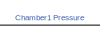
[diagram: root canvas - part 1/59, top left region]
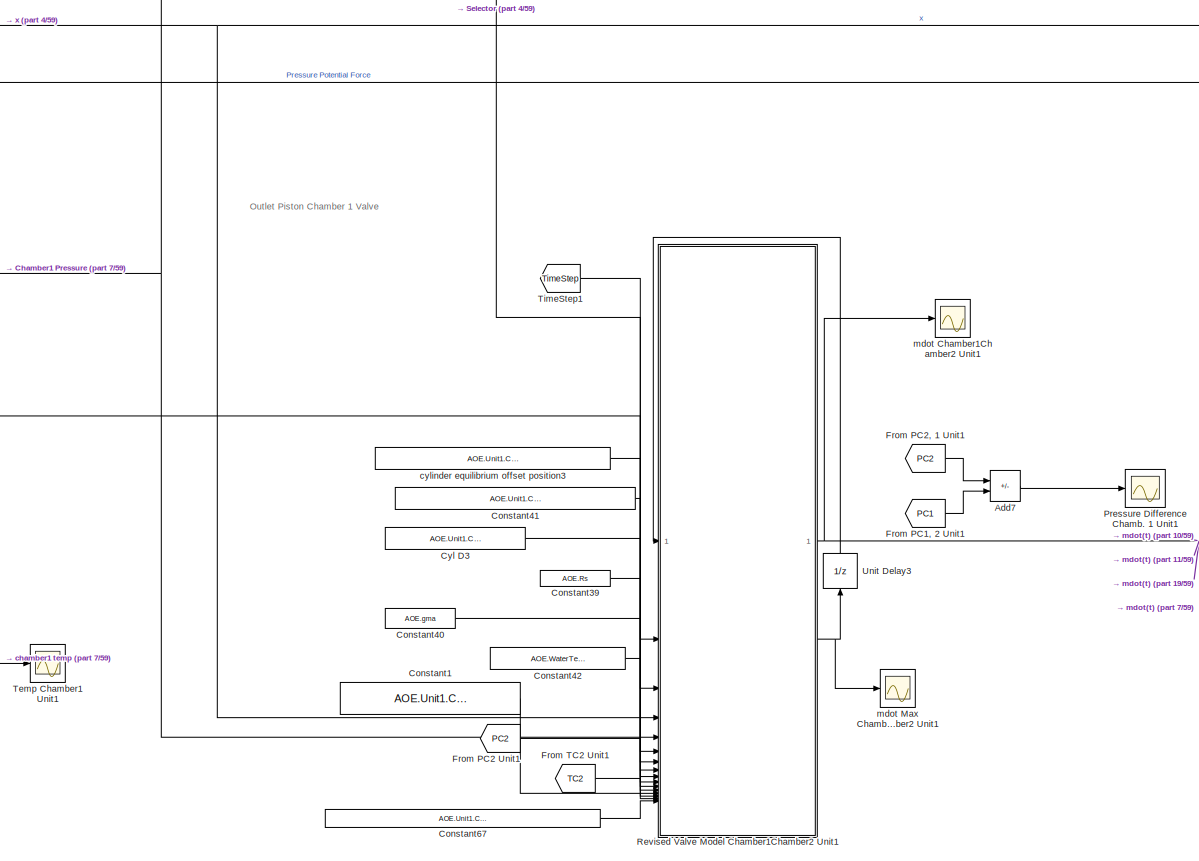
[diagram: root canvas - part 2/59, top left region]
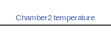
[diagram: root canvas - part 3/59, top center region]
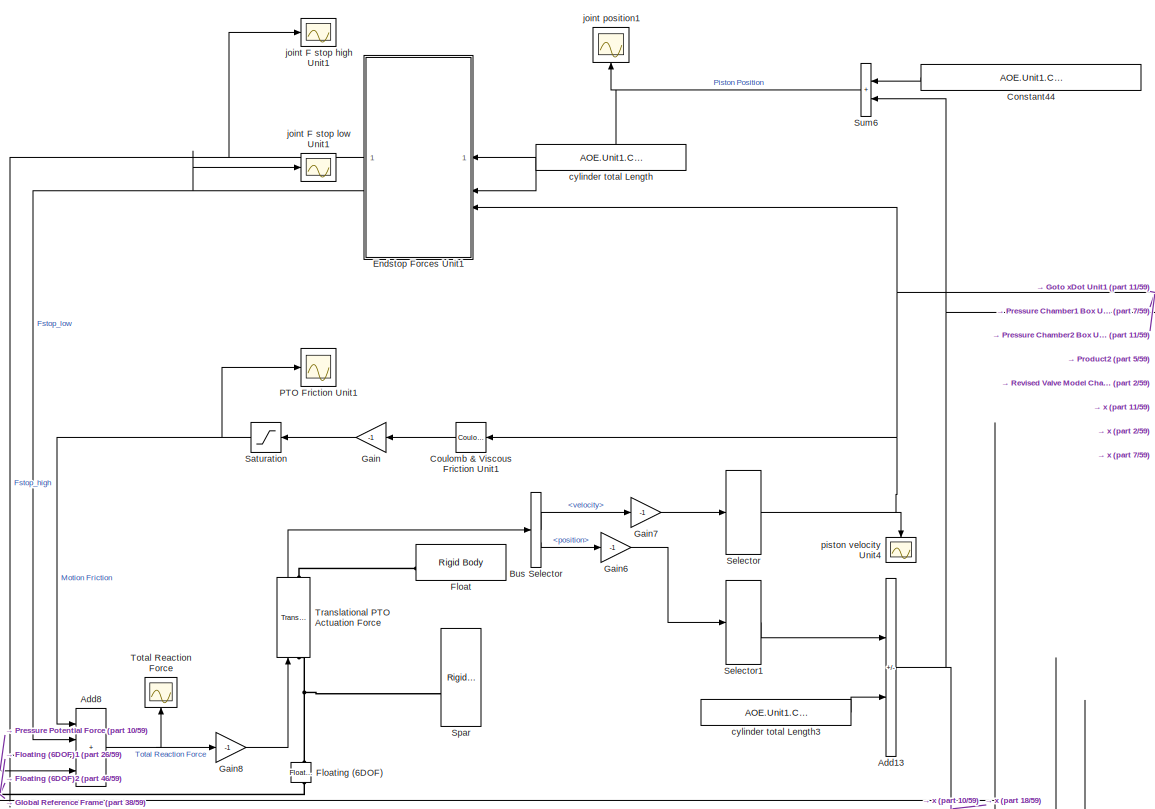
[diagram: root canvas - part 4/59, top left region]
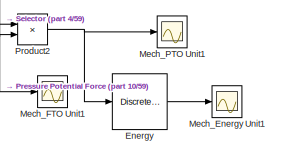
[diagram: root canvas - part 5/59, top center region]
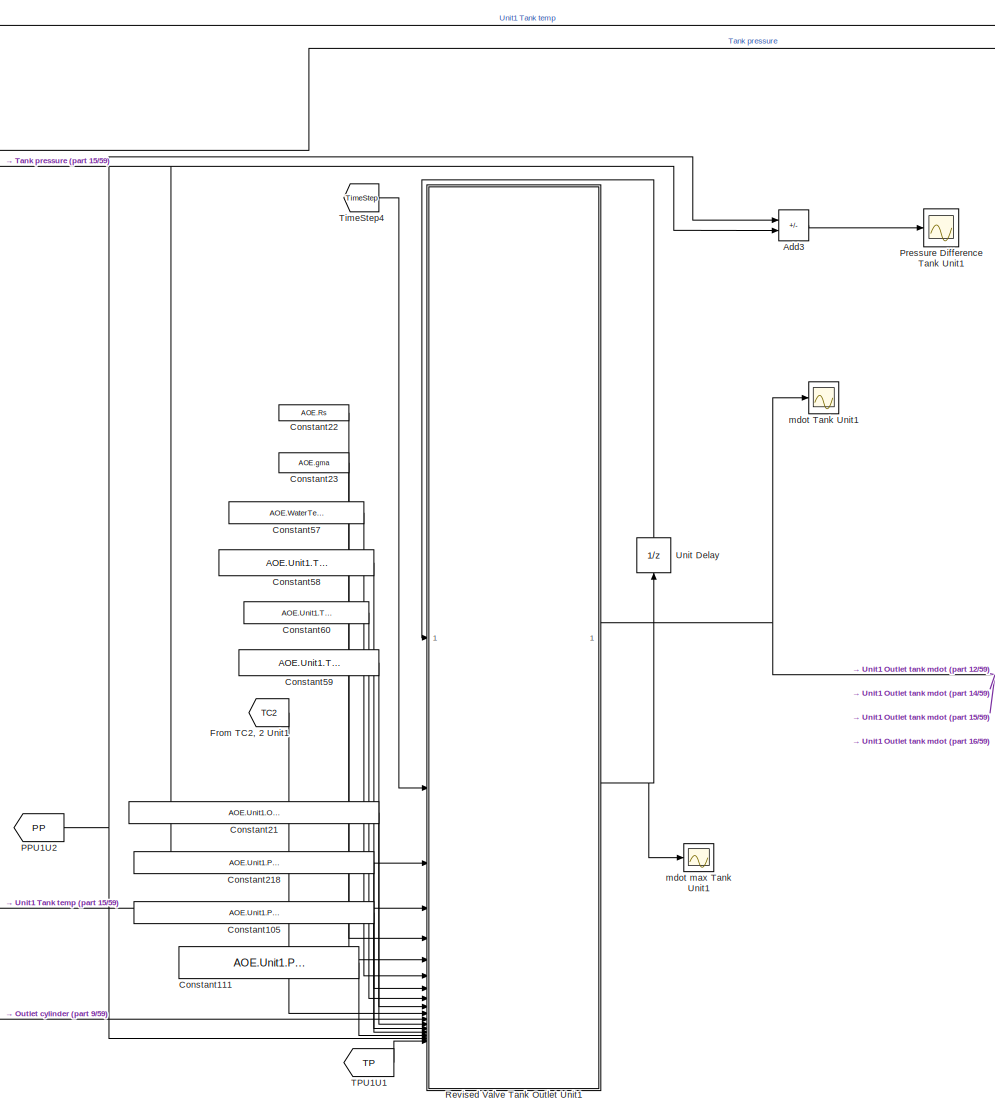
[diagram: root canvas - part 6/59, top right region]
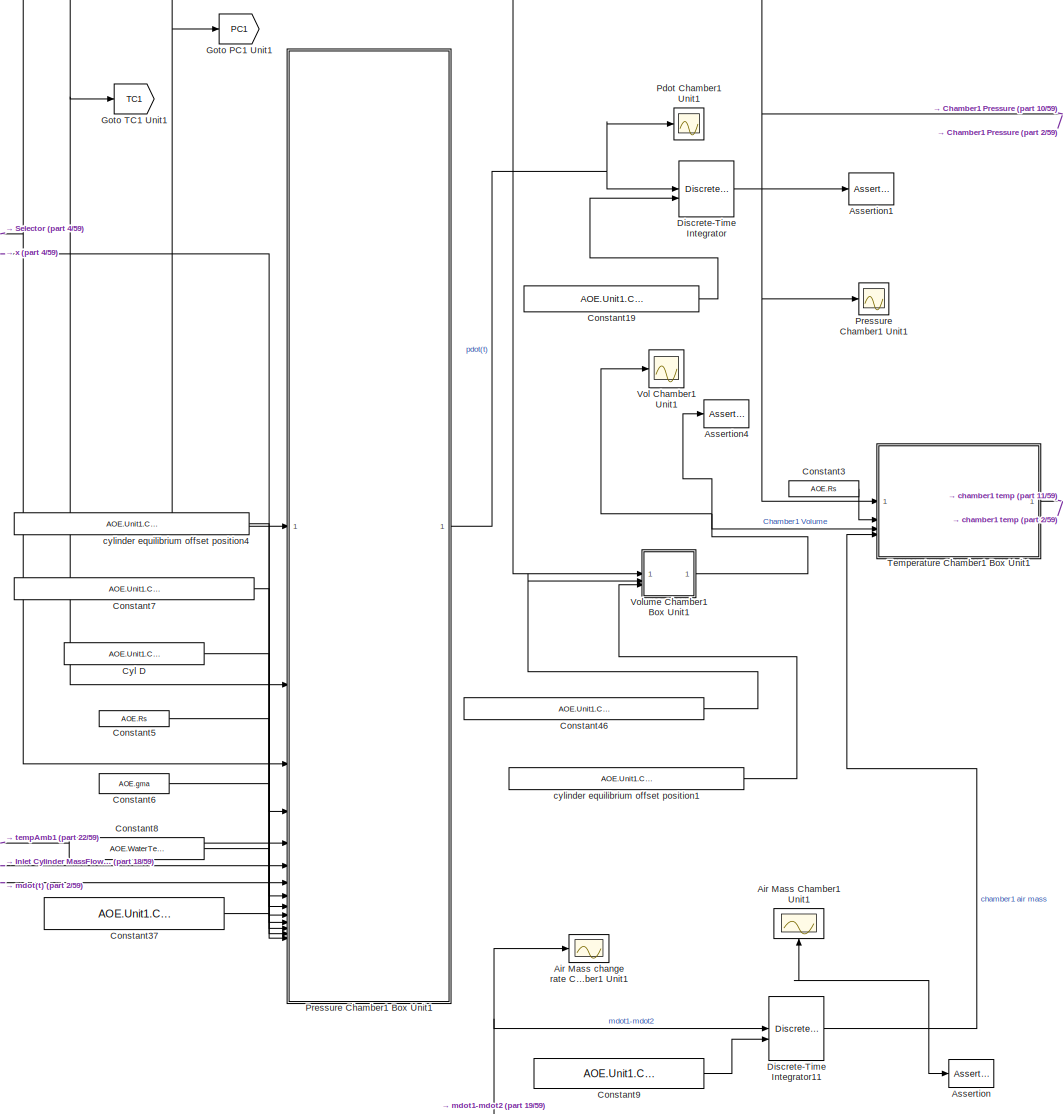
[diagram: root canvas - part 7/59, top left region]
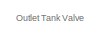
[diagram: root canvas - part 8/59, top right region]
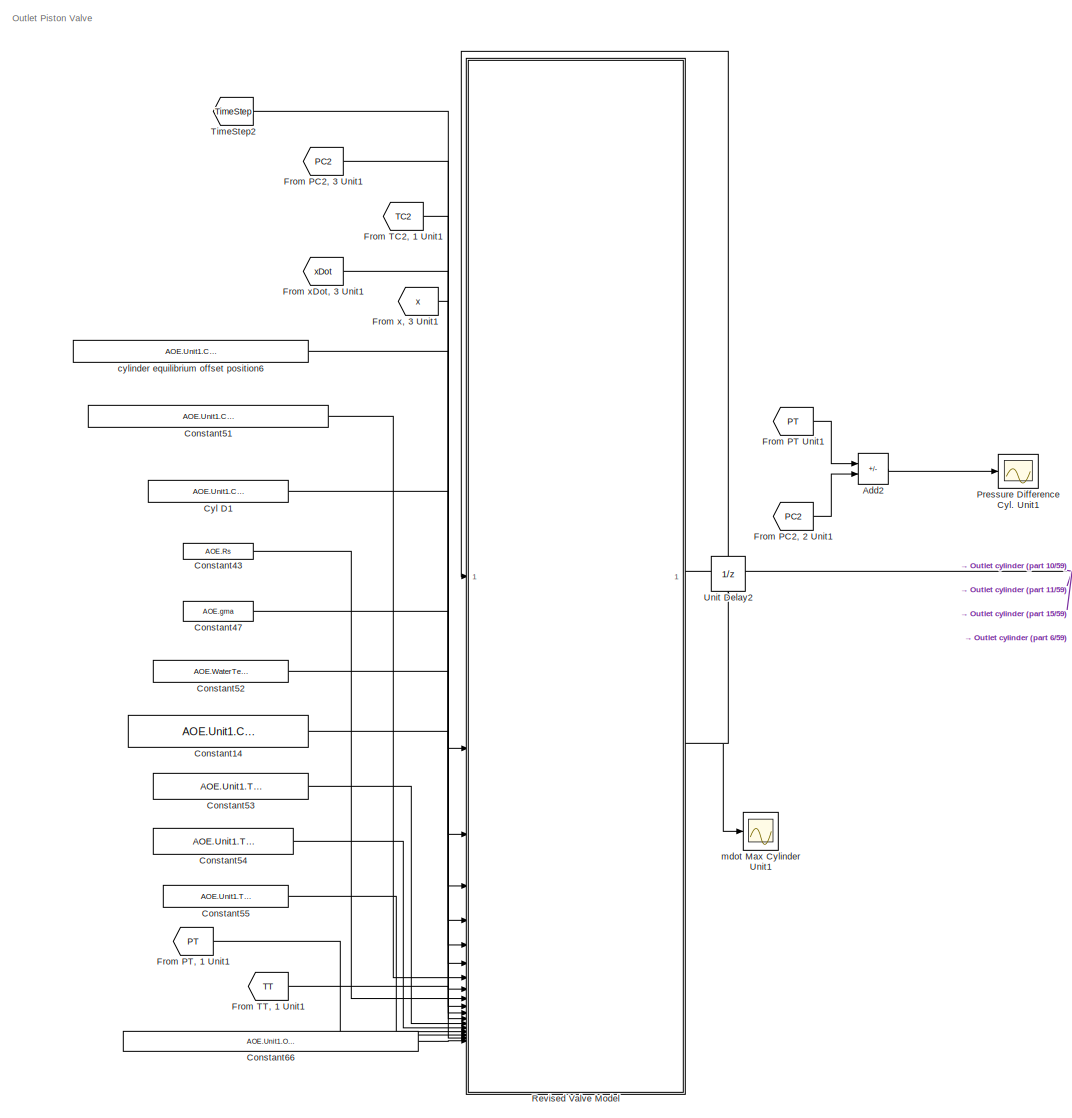
[diagram: root canvas - part 9/59, top center region]
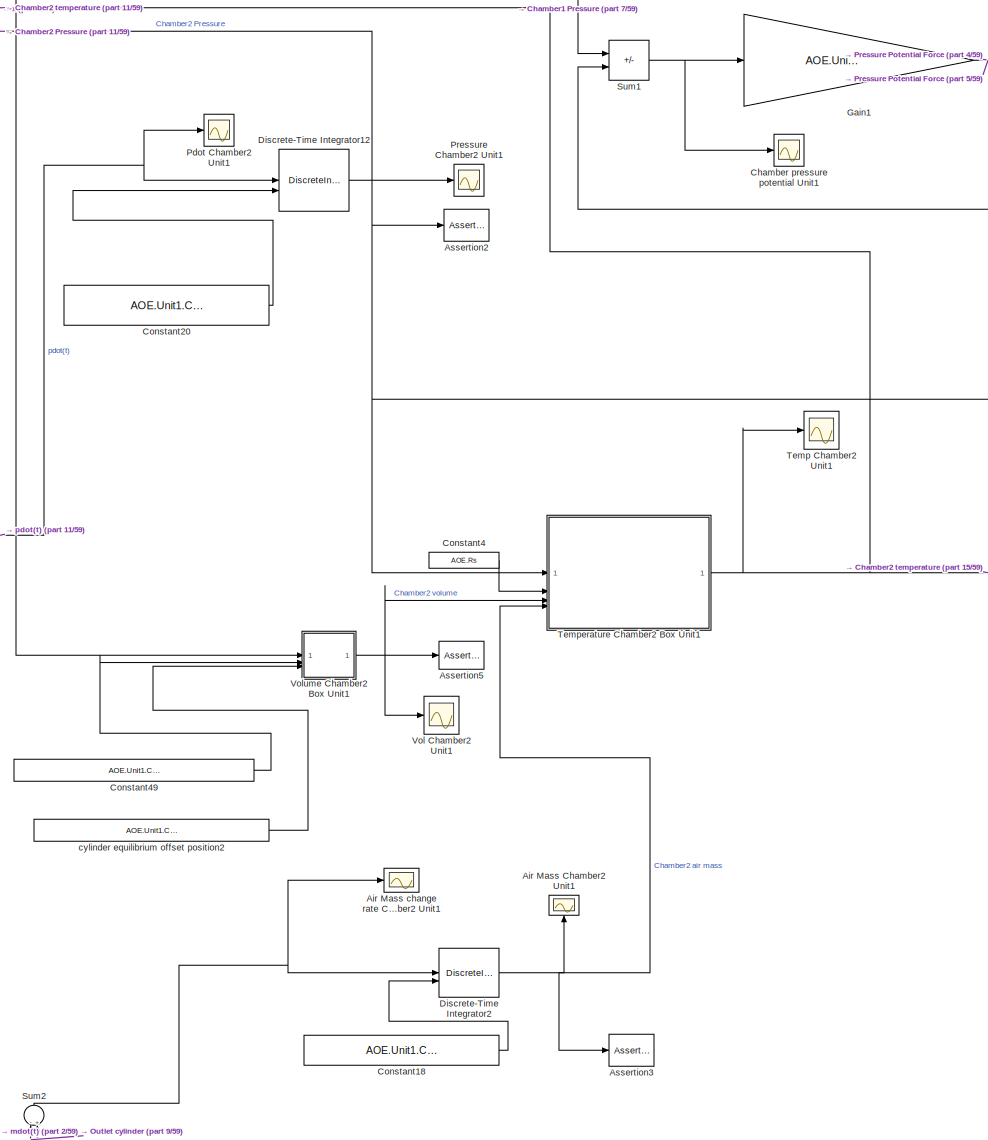
[diagram: root canvas - part 10/59, top center region]
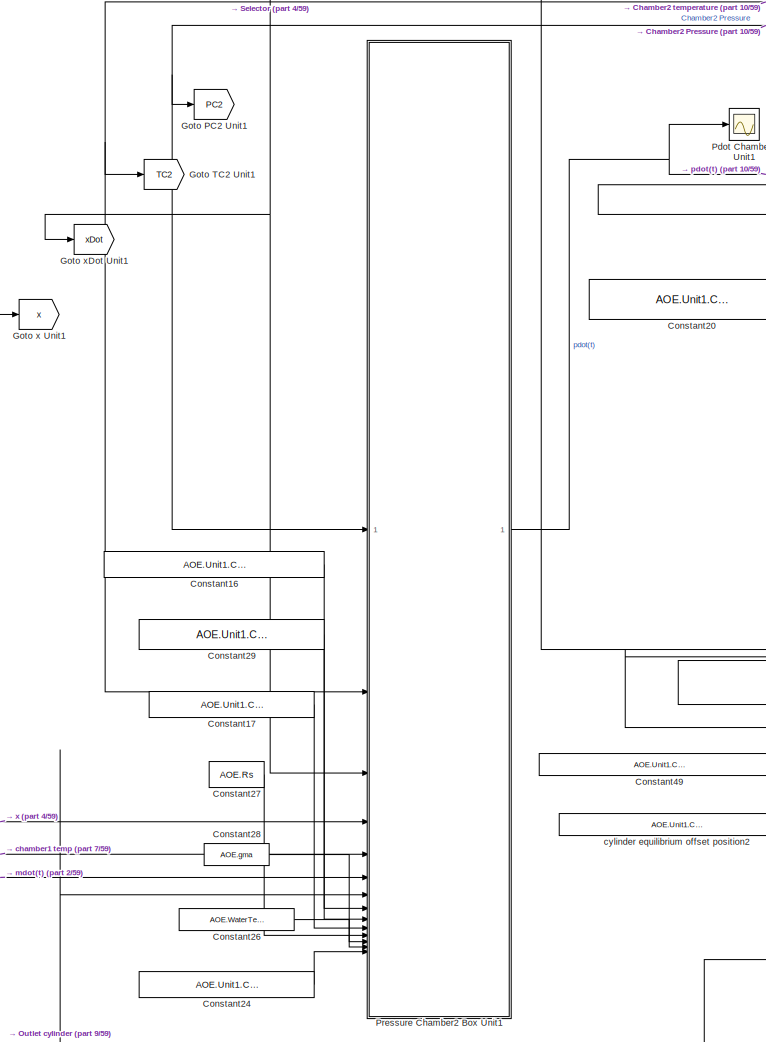
[diagram: root canvas - part 11/59, top center region]
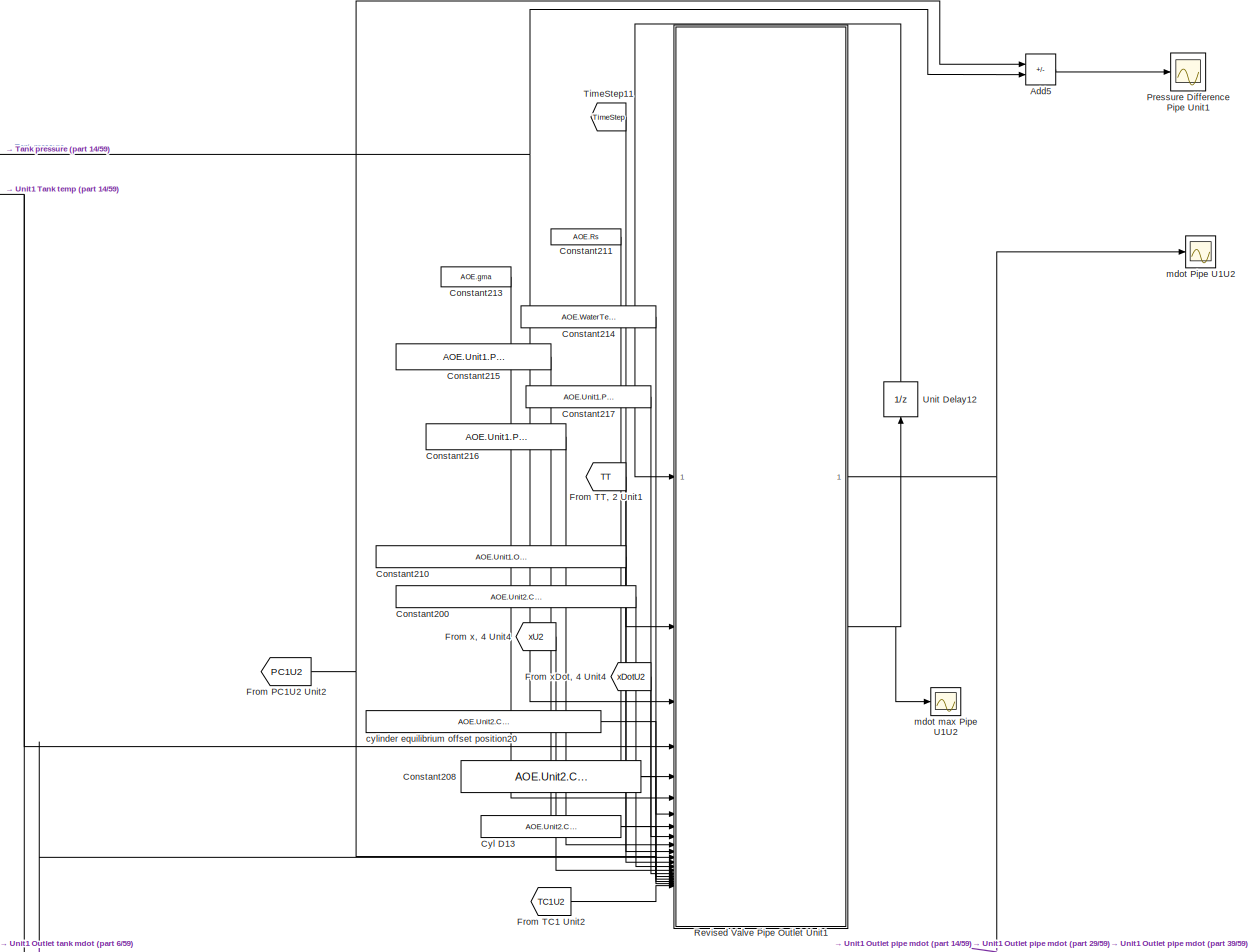
[diagram: root canvas - part 12/59, top right region]
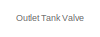
[diagram: root canvas - part 13/59, top right region]
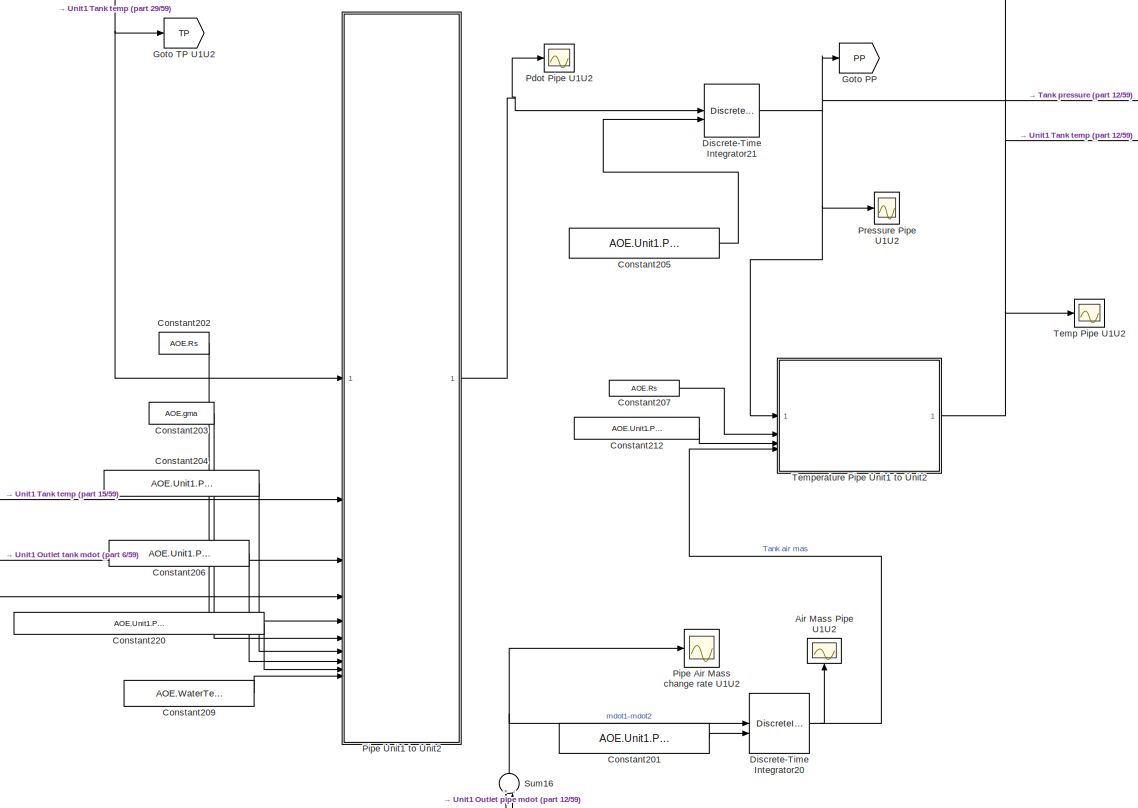
[diagram: root canvas - part 14/59, top right region]
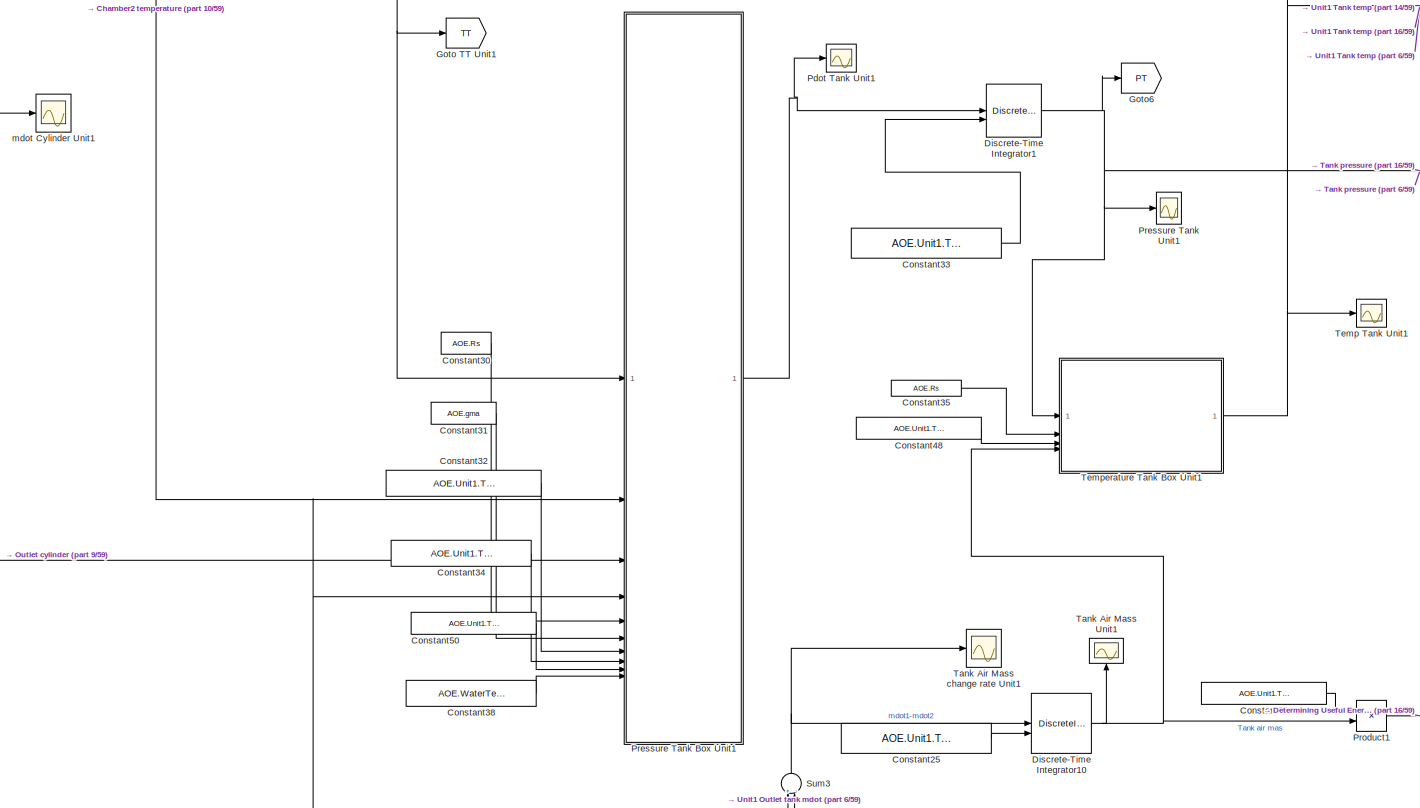
[diagram: root canvas - part 15/59, top center region]
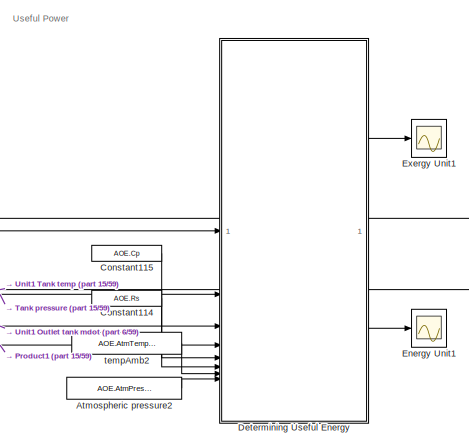
[diagram: root canvas - part 16/59, top right region]
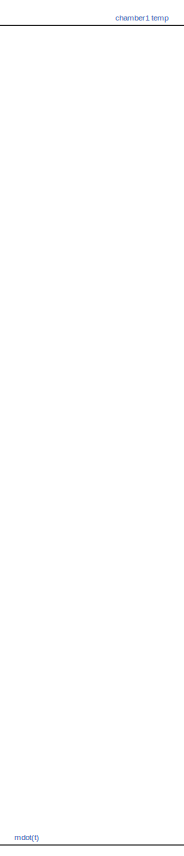
[diagram: root canvas - part 17/59, top left region]
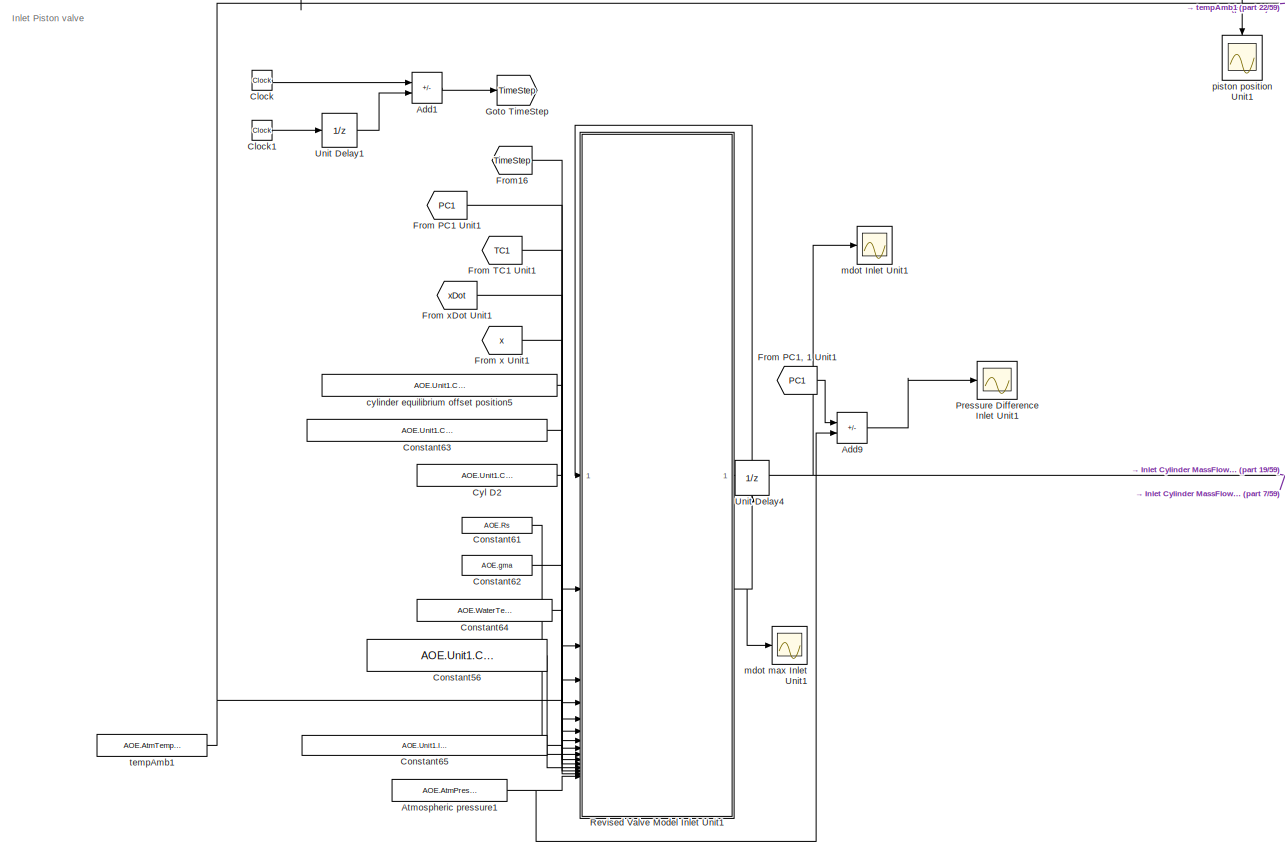
[diagram: root canvas - part 18/59, top left region]
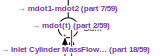
[diagram: root canvas - part 19/59, top left region]
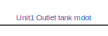
[diagram: root canvas - part 20/59, top right region]
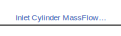
[diagram: root canvas - part 21/59, top left region]
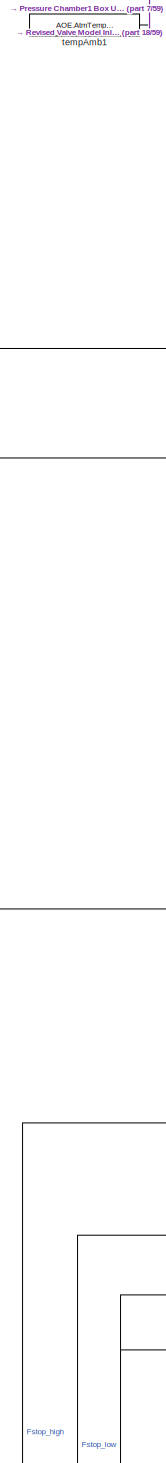
[diagram: root canvas - part 22/59, middle left region]
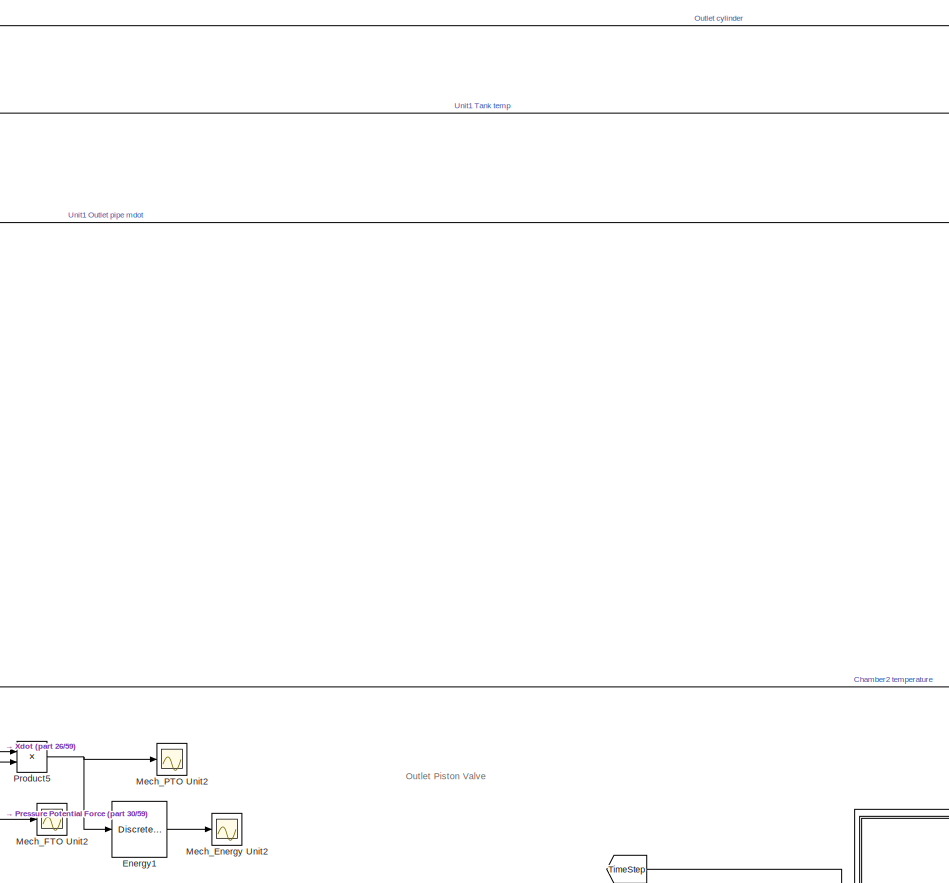
[diagram: root canvas - part 23/59, central region]
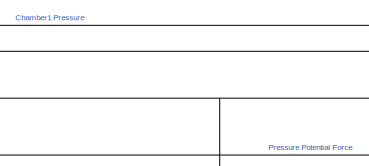
[diagram: root canvas - part 24/59, central region]
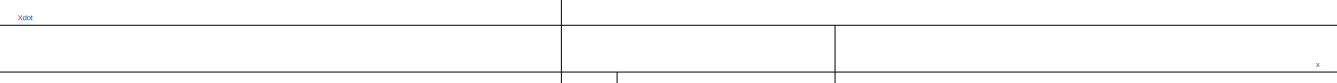
[diagram: root canvas - part 25/59, middle left region]
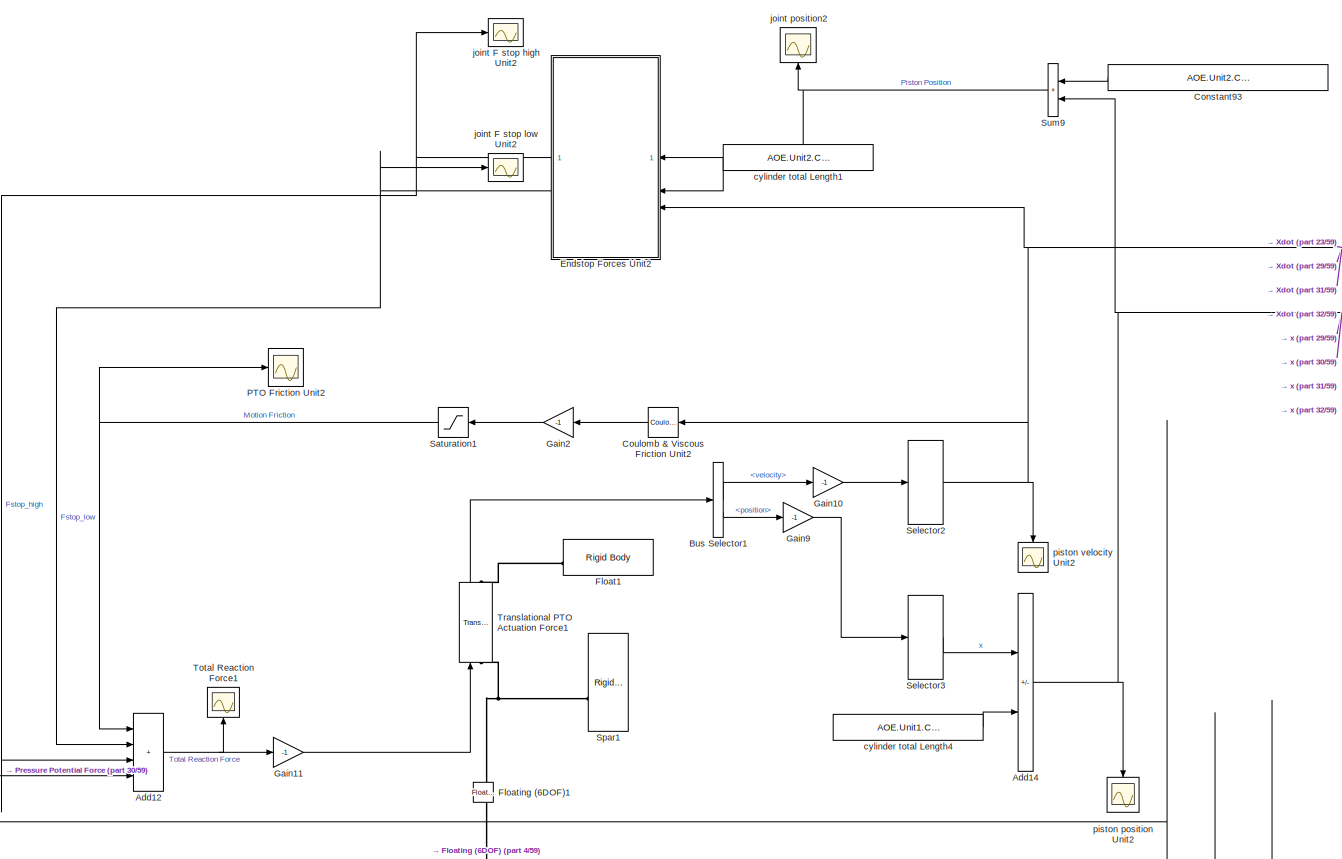
[diagram: root canvas - part 26/59, middle left region]
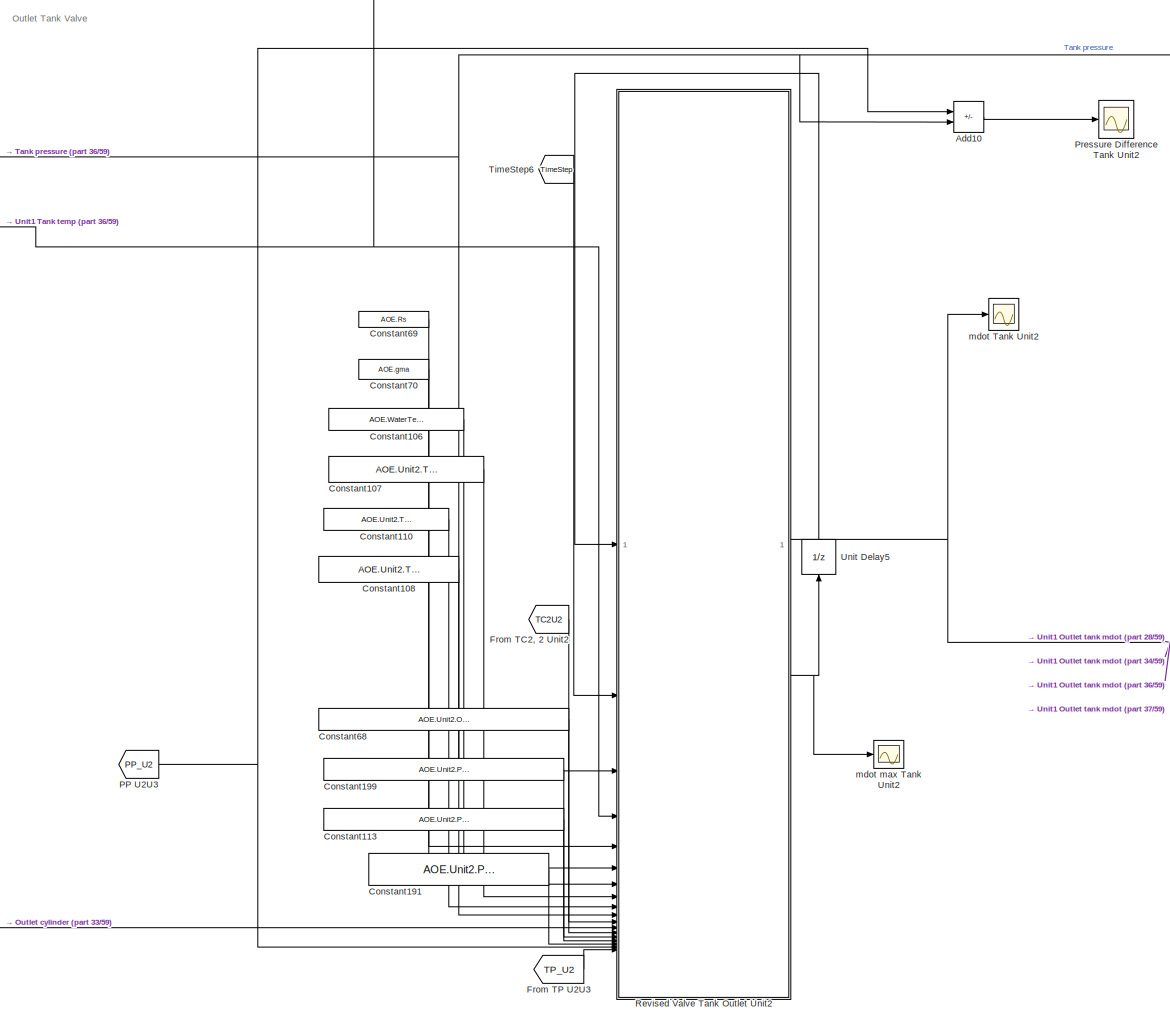
[diagram: root canvas - part 27/59, middle right region]
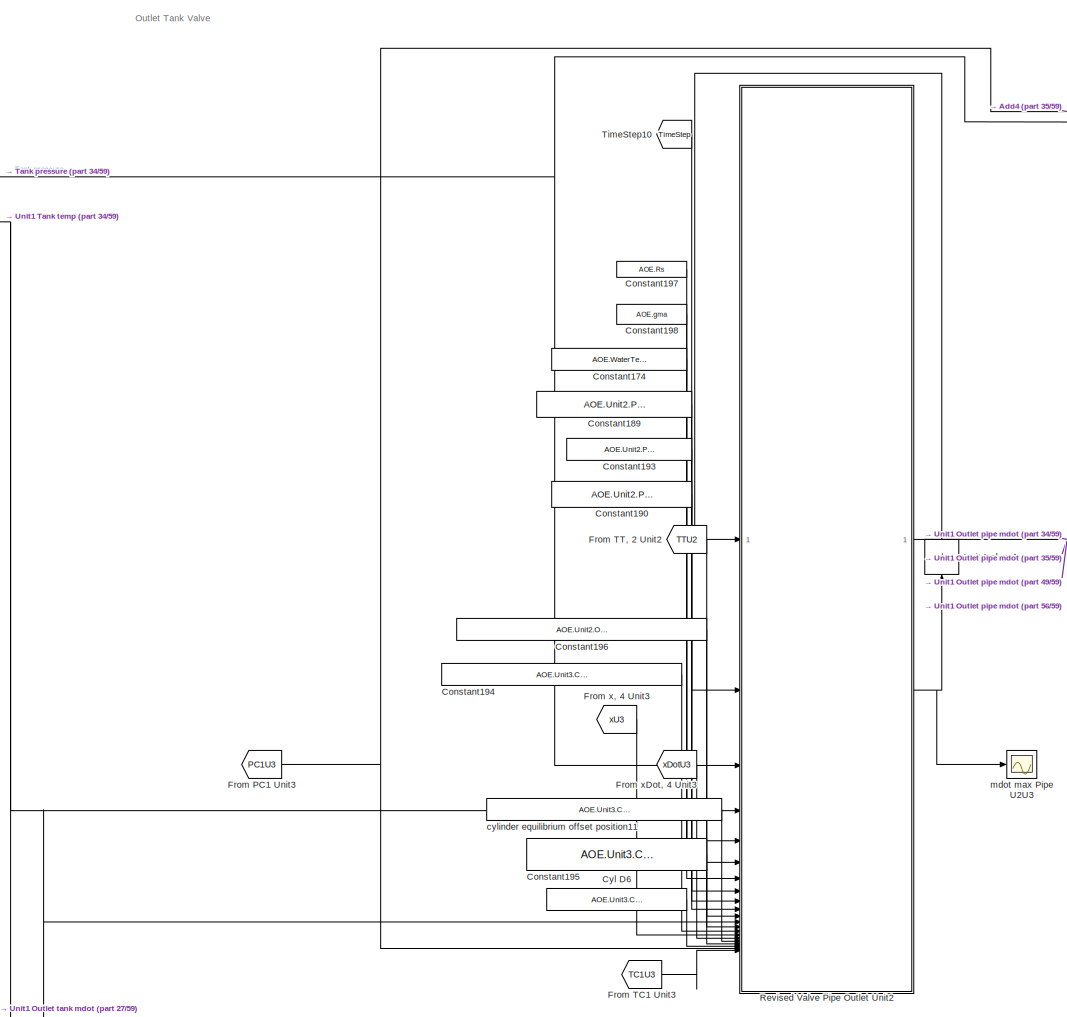
[diagram: root canvas - part 28/59, middle right region]
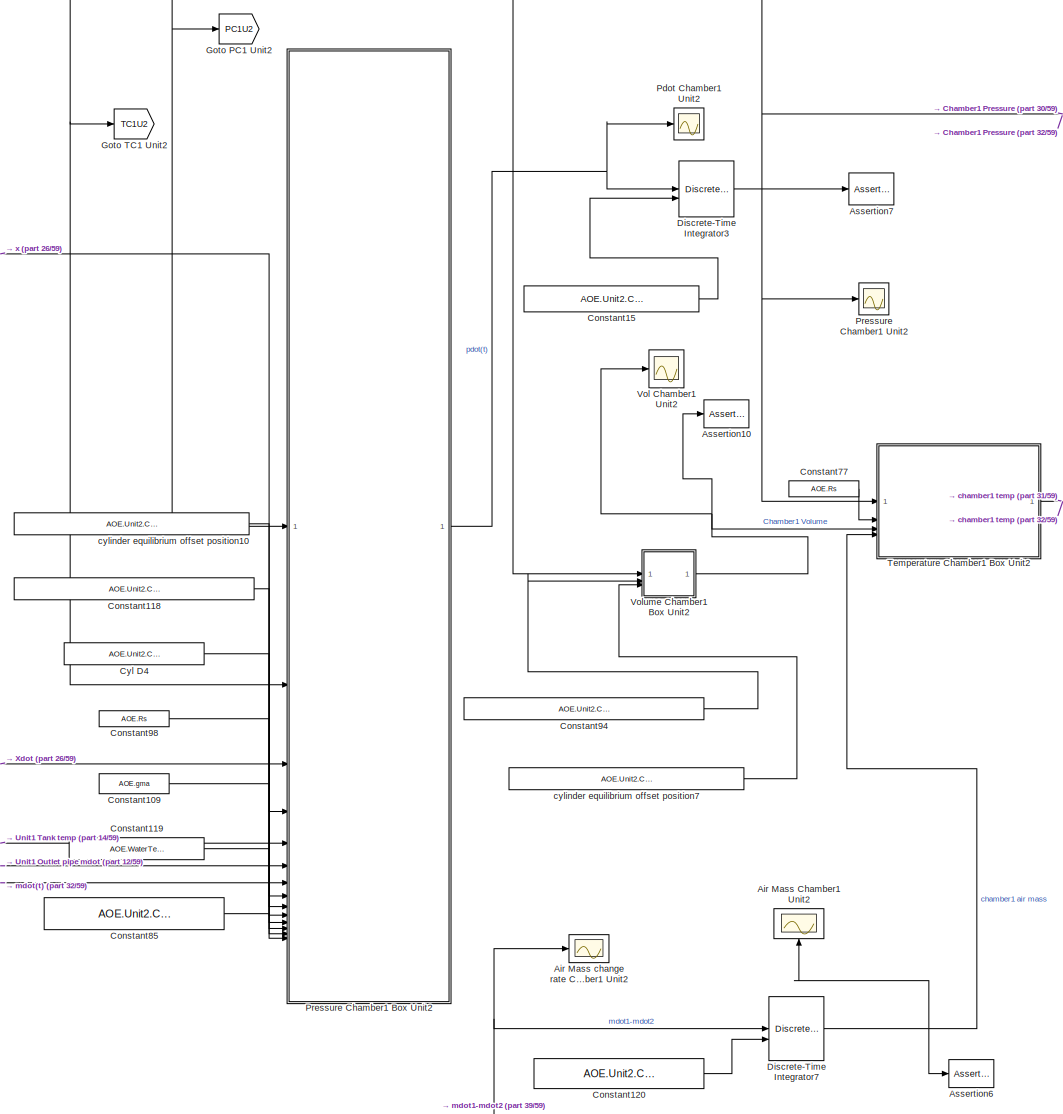
[diagram: root canvas - part 29/59, middle left region]
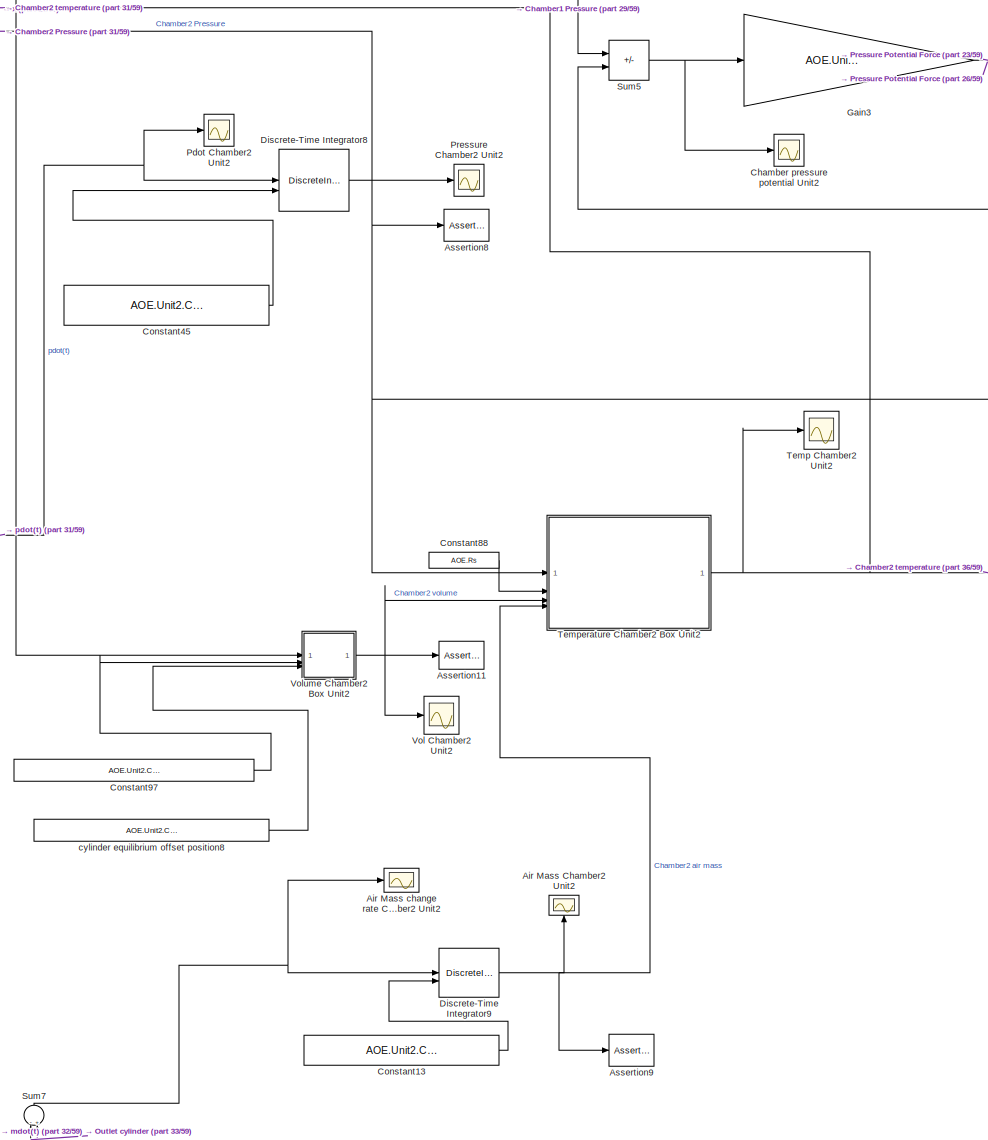
[diagram: root canvas - part 30/59, central region]
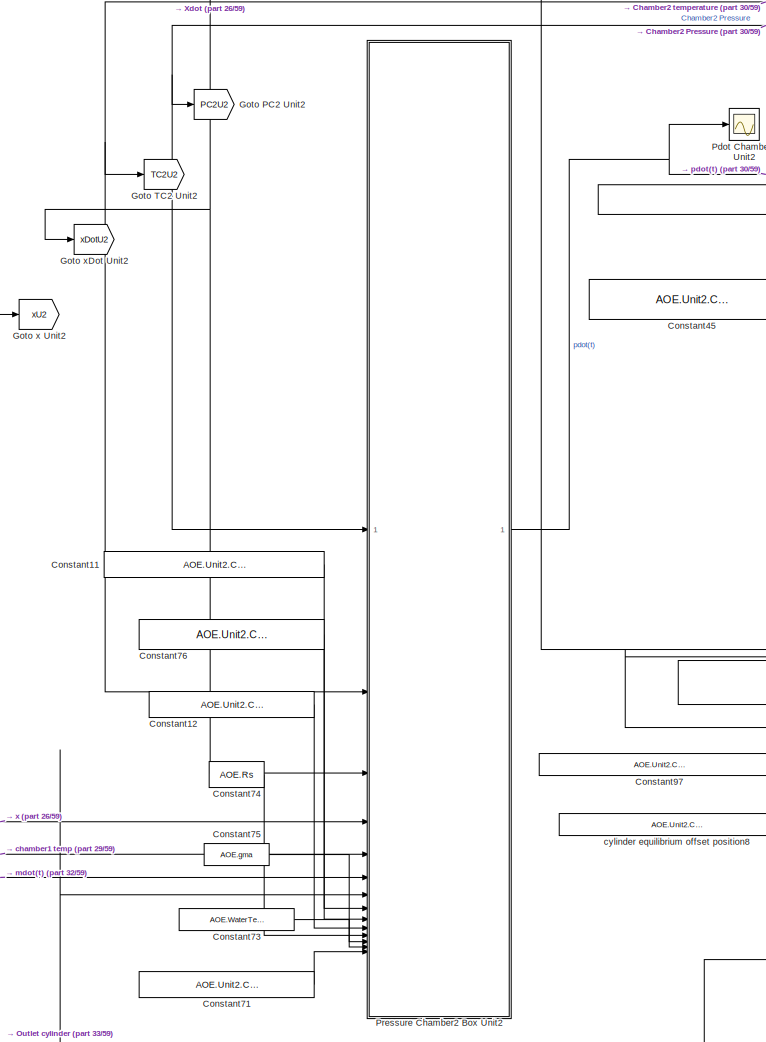
[diagram: root canvas - part 31/59, central region]
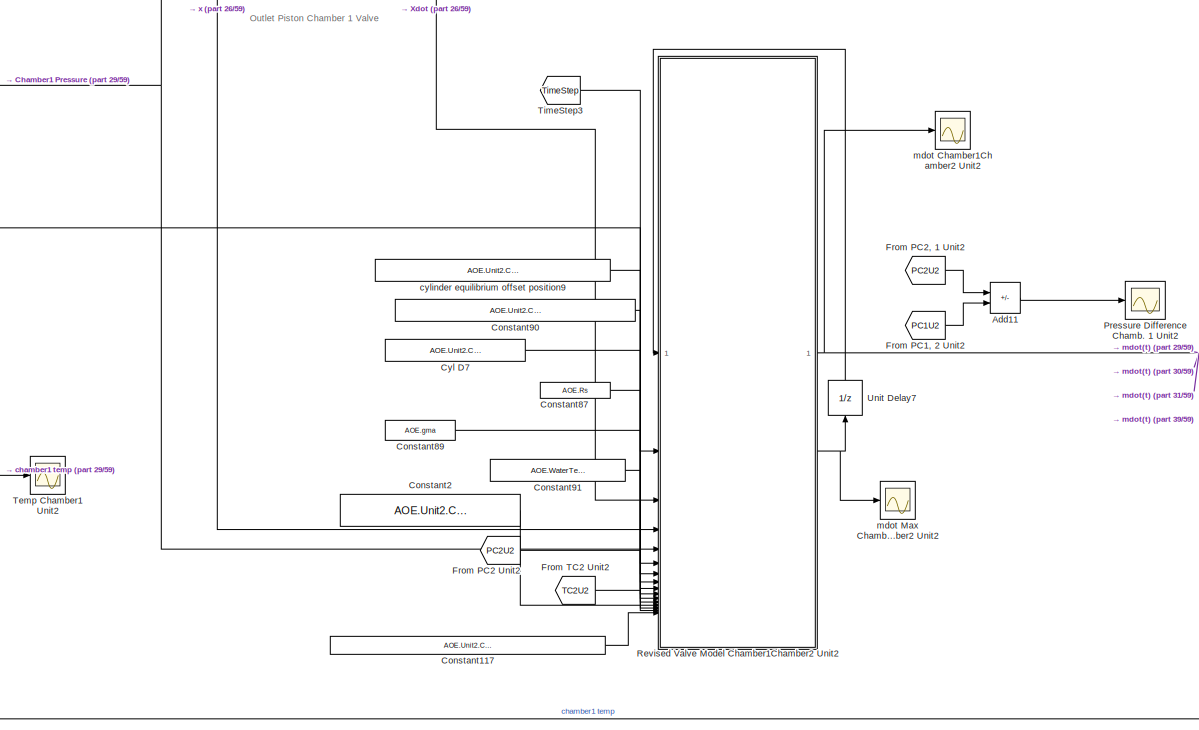
[diagram: root canvas - part 32/59, middle left region]
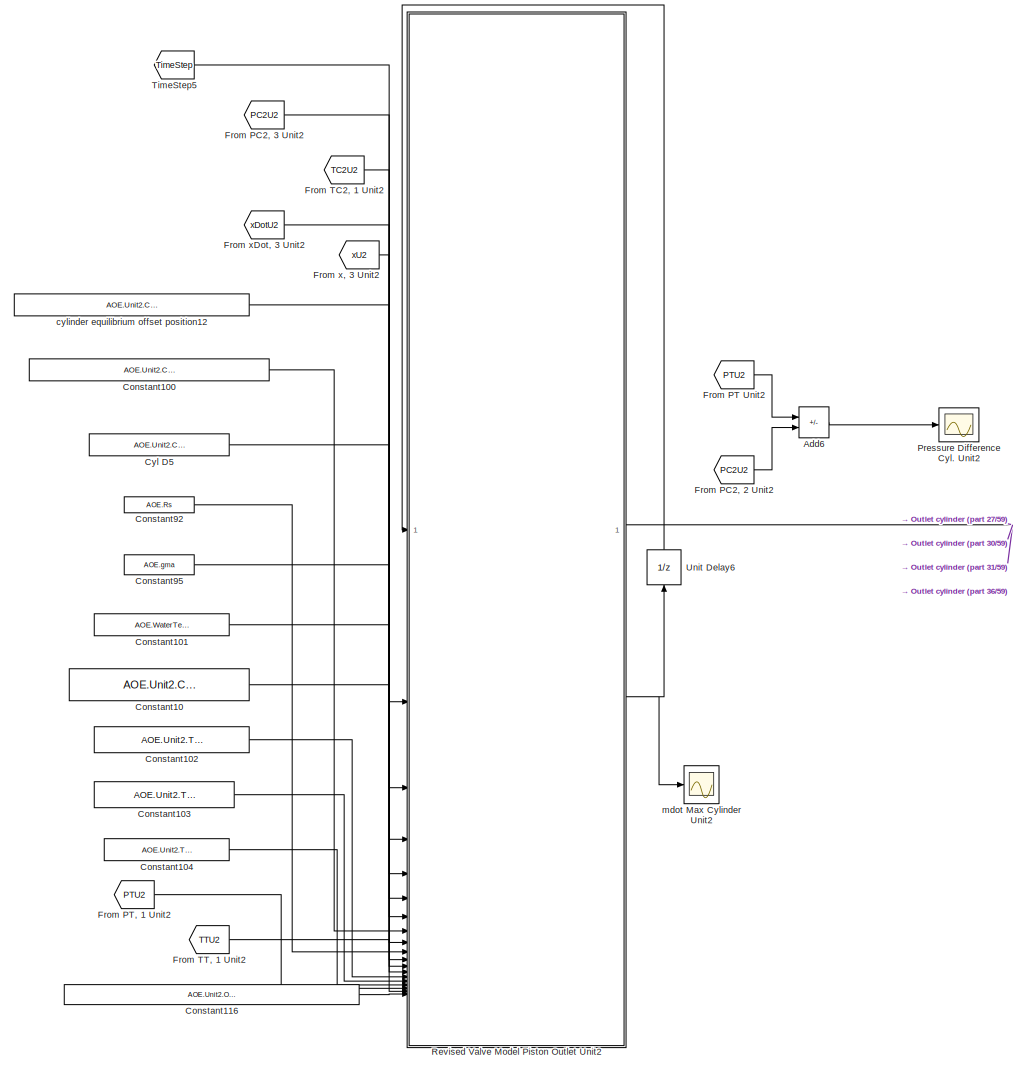
[diagram: root canvas - part 33/59, central region]
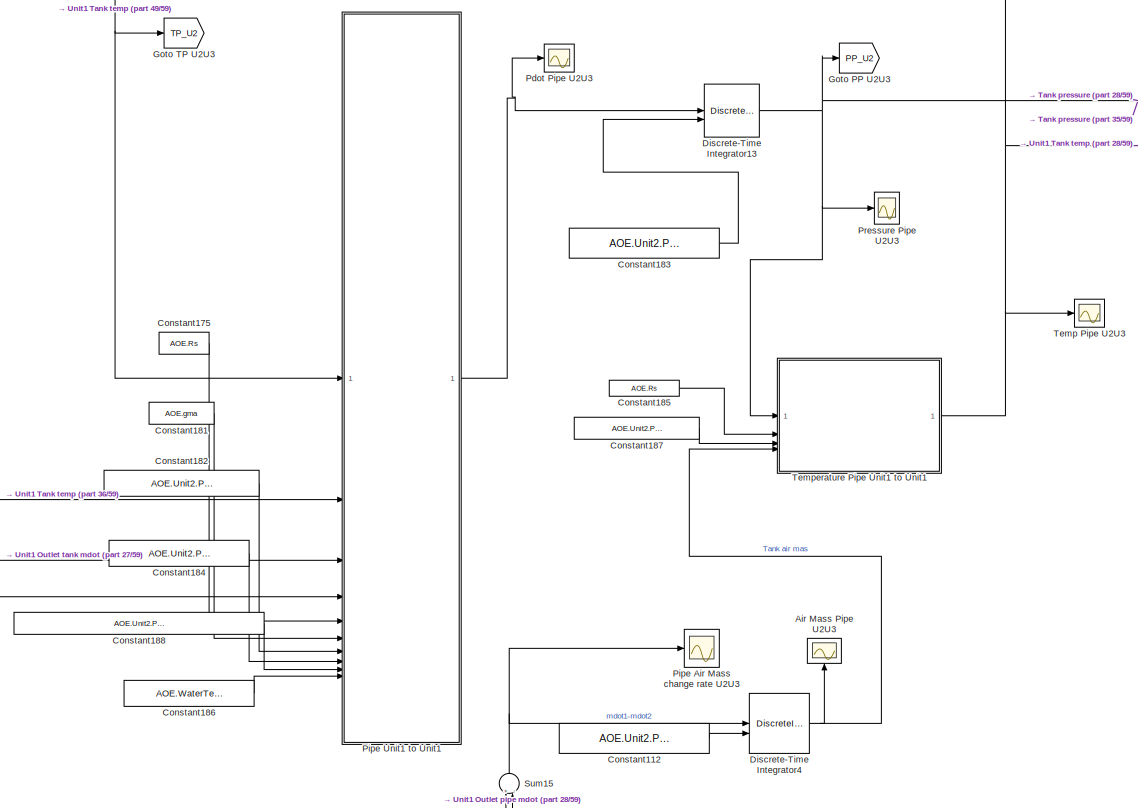
[diagram: root canvas - part 34/59, middle right region]
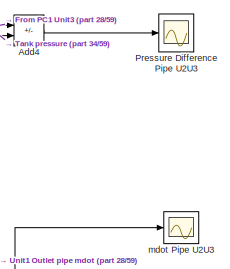
[diagram: root canvas - part 35/59, middle right region]
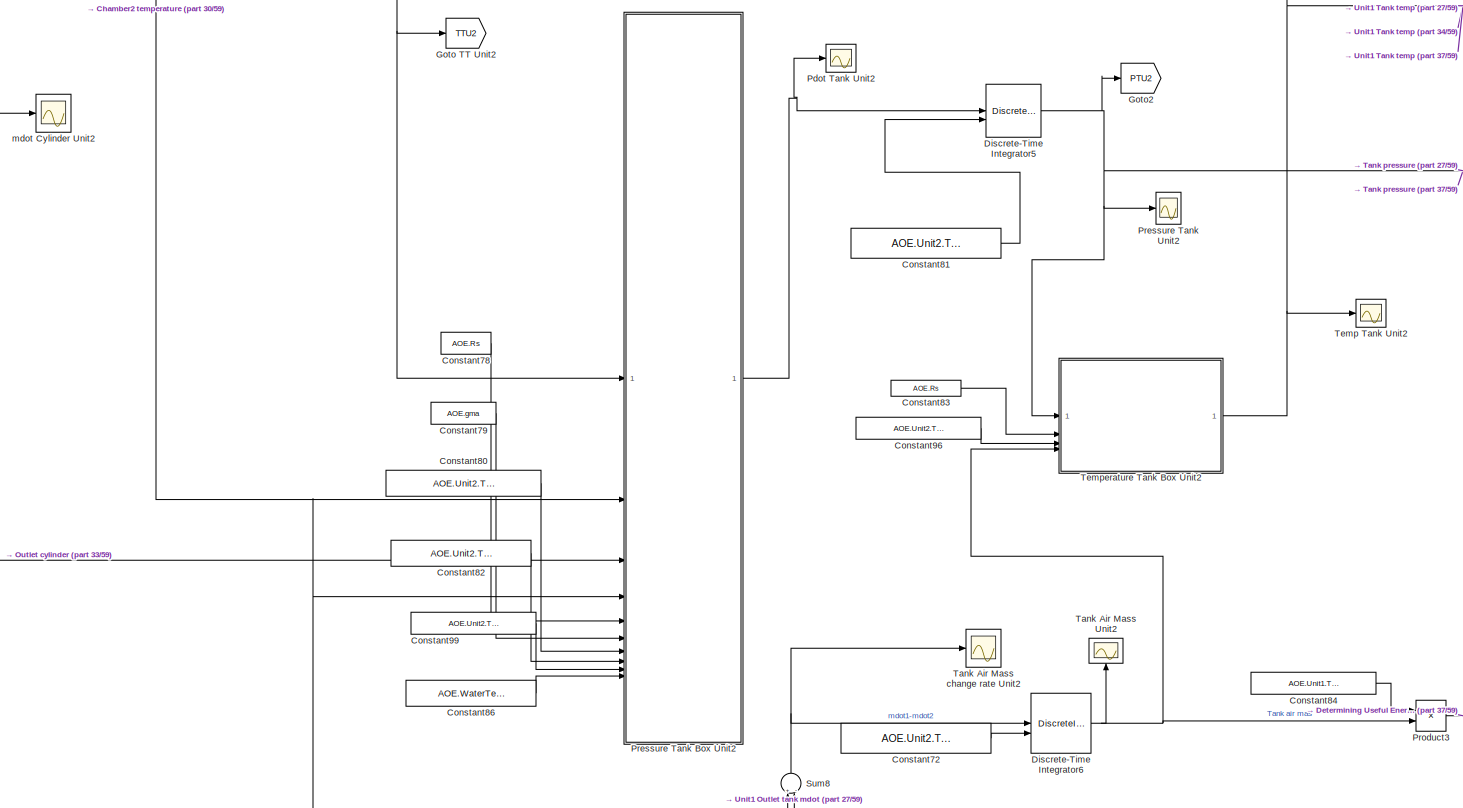
[diagram: root canvas - part 36/59, central region]
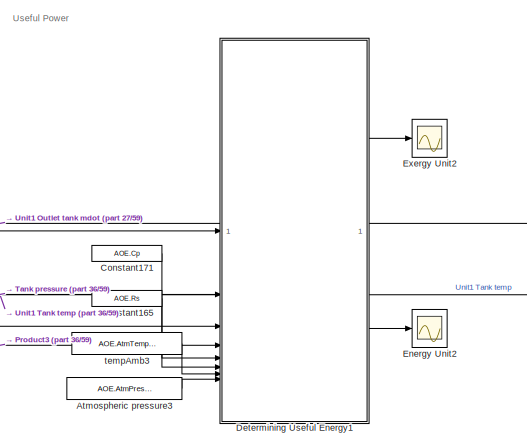
[diagram: root canvas - part 37/59, middle right region]
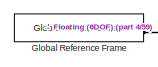
[diagram: root canvas - part 38/59, middle left region]
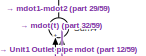
[diagram: root canvas - part 39/59, middle left region]
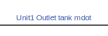
[diagram: root canvas - part 40/59, middle right region]
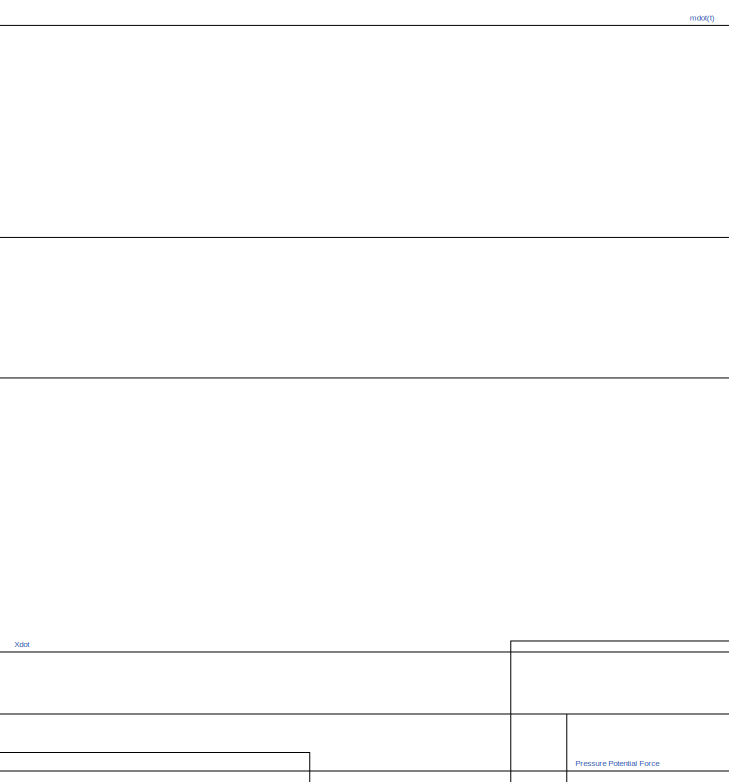
[diagram: root canvas - part 41/59, bottom left region]
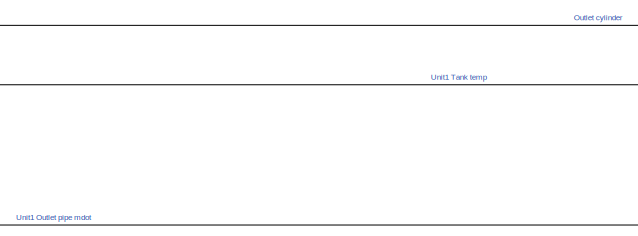
[diagram: root canvas - part 42/59, central region]
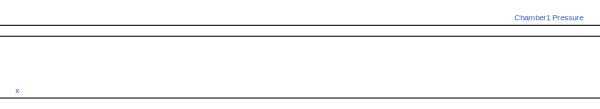
[diagram: root canvas - part 43/59, bottom left region]
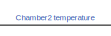
[diagram: root canvas - part 44/59, bottom center region]
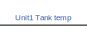
[diagram: root canvas - part 45/59, bottom right region]
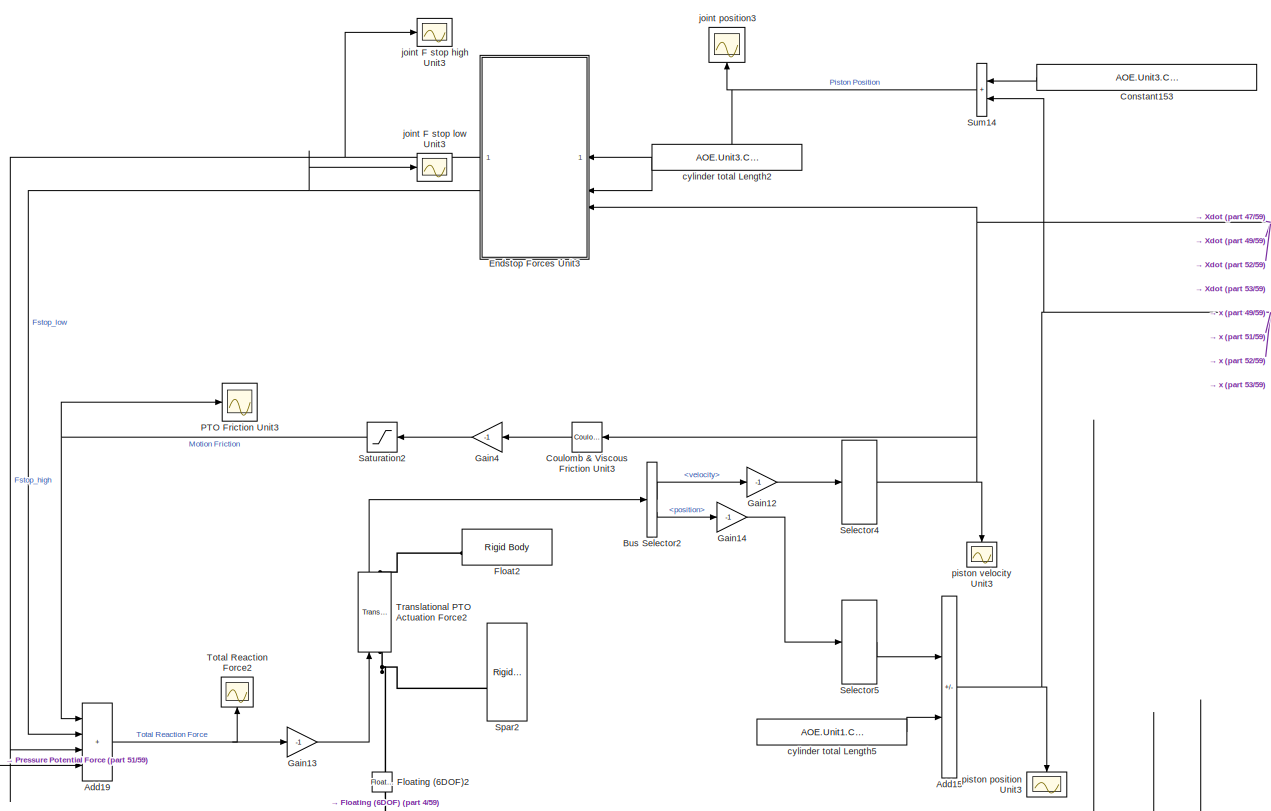
[diagram: root canvas - part 46/59, bottom left region]
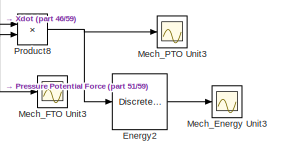
[diagram: root canvas - part 47/59, bottom center region]
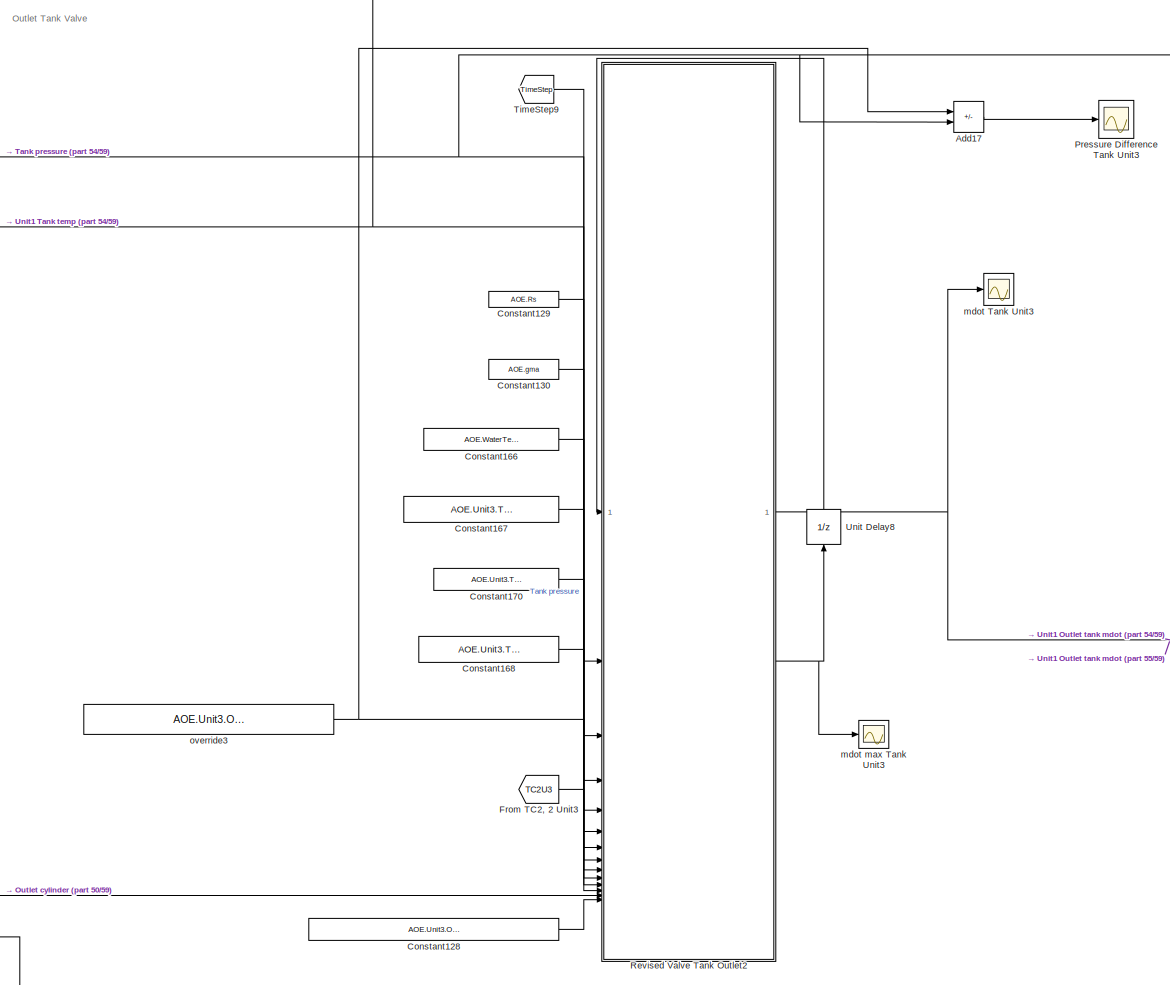
[diagram: root canvas - part 48/59, bottom right region]
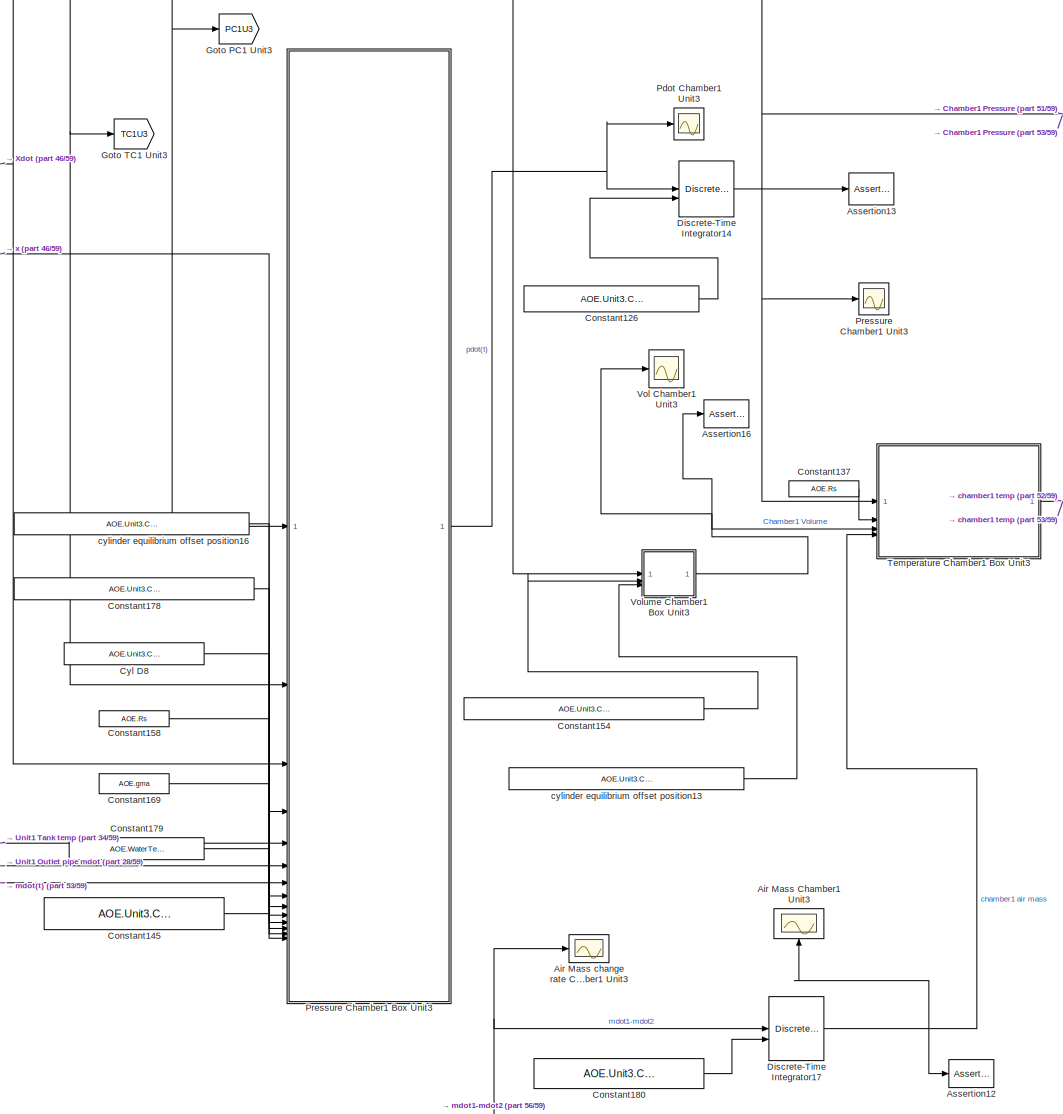
[diagram: root canvas - part 49/59, bottom left region]
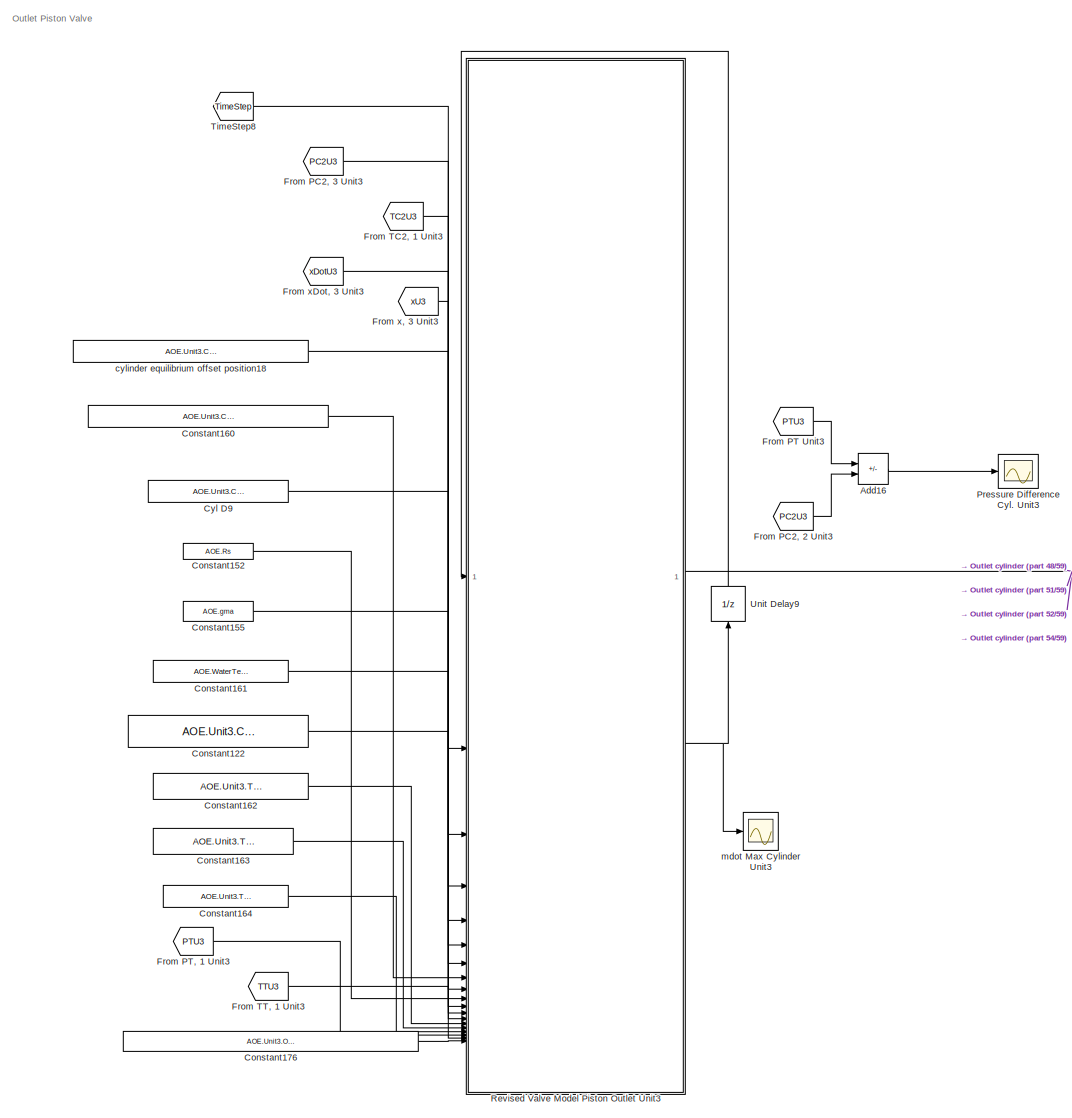
[diagram: root canvas - part 50/59, bottom center region]
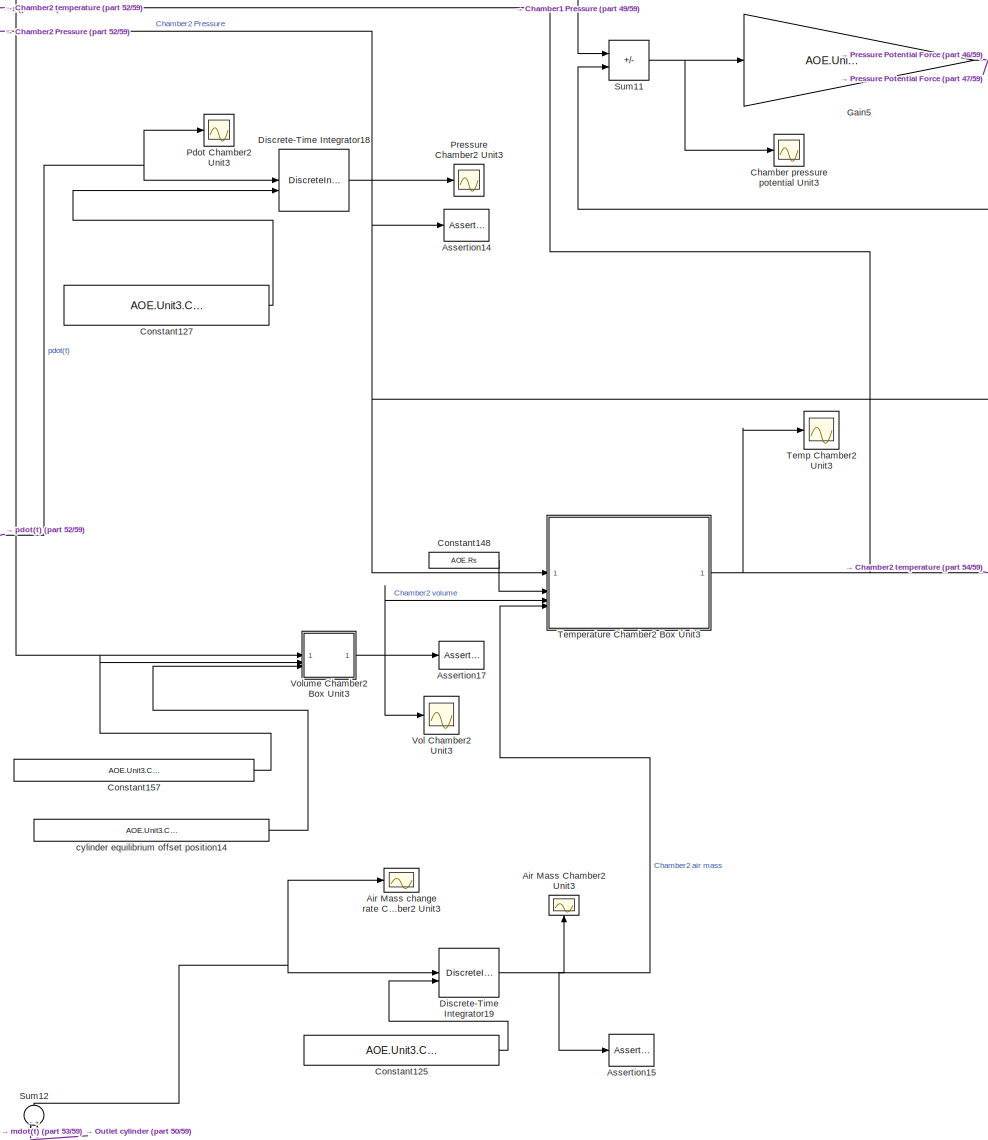
[diagram: root canvas - part 51/59, bottom center region]
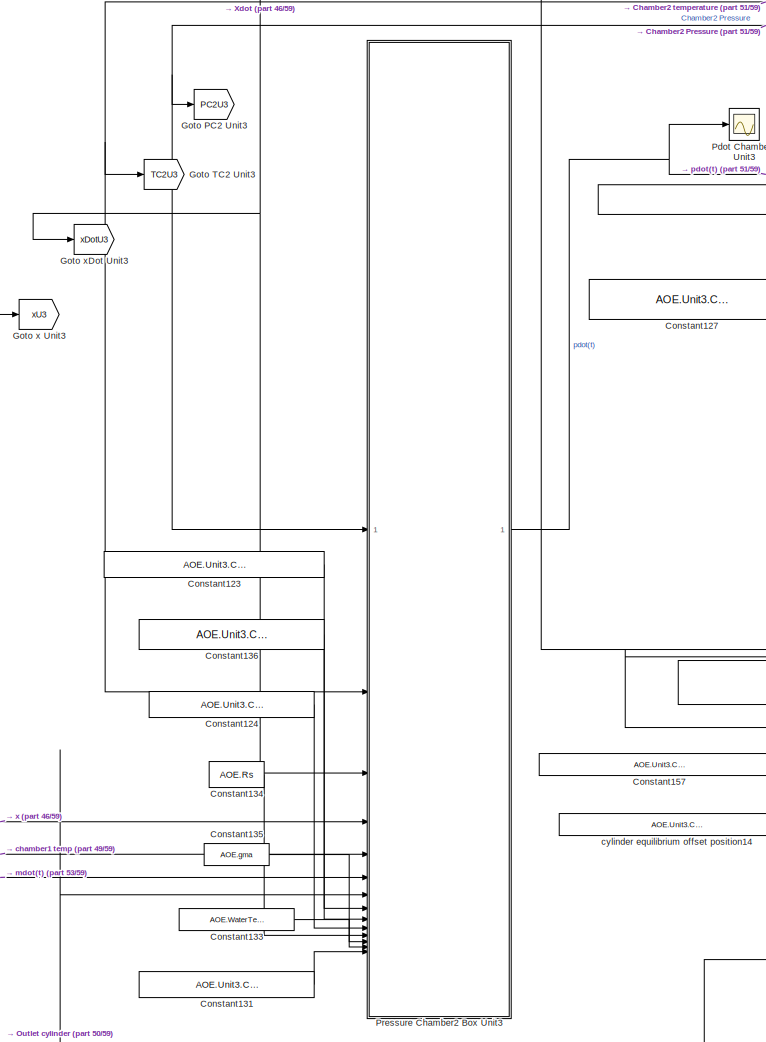
[diagram: root canvas - part 52/59, bottom center region]
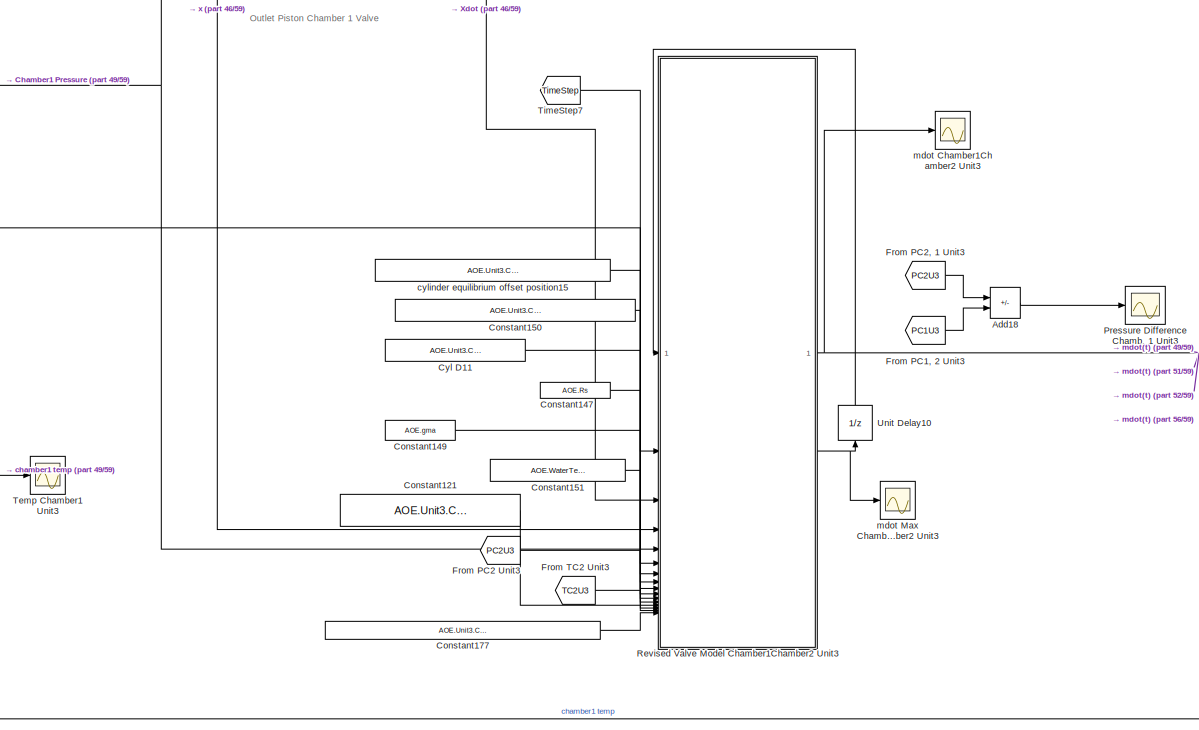
[diagram: root canvas - part 53/59, bottom left region]
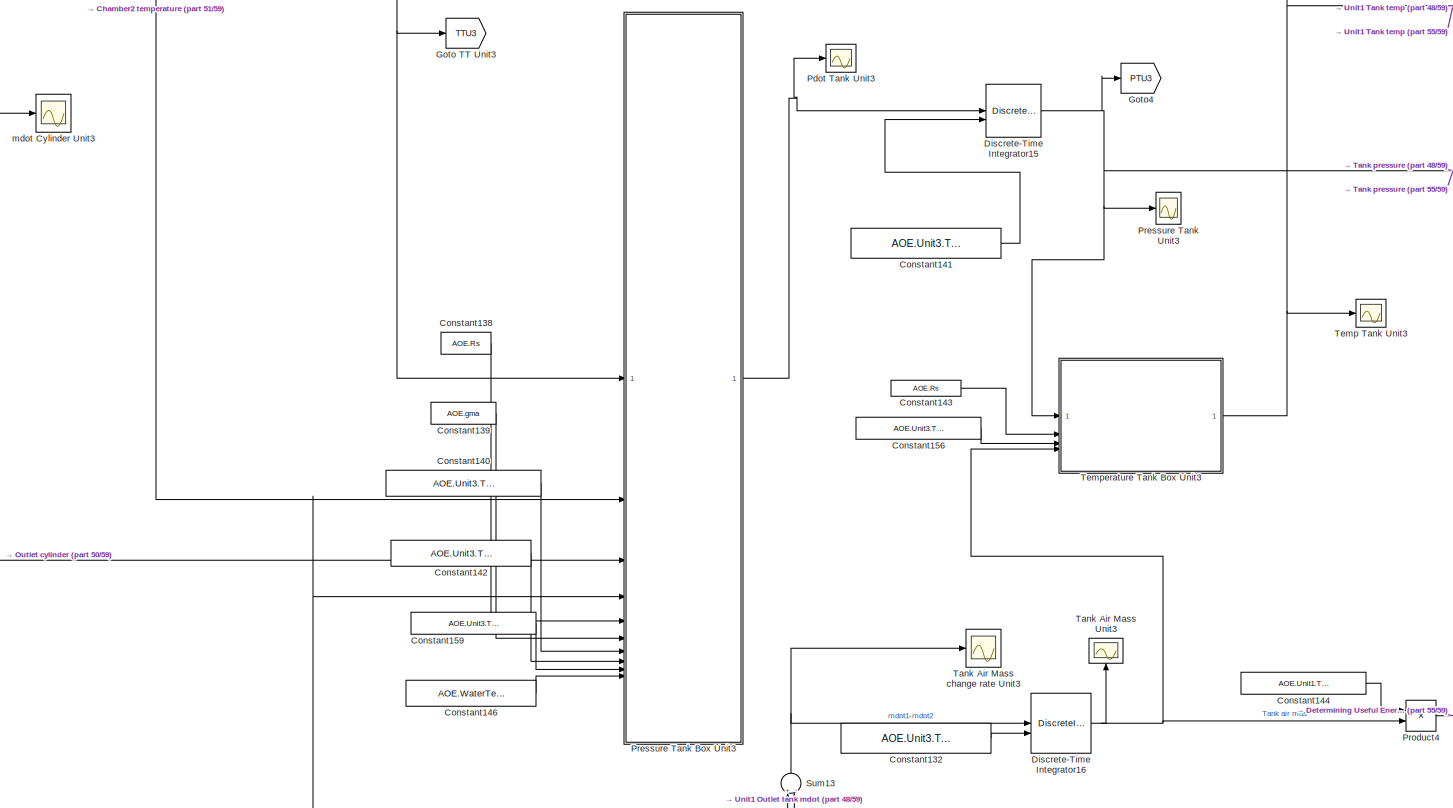
[diagram: root canvas - part 54/59, bottom center region]
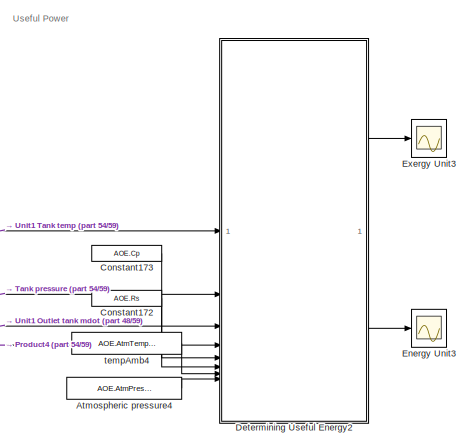
[diagram: root canvas - part 55/59, bottom right region]
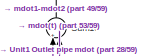
[diagram: root canvas - part 56/59, bottom left region]
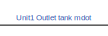
[diagram: root canvas - part 57/59, bottom right region]
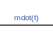
[diagram: root canvas - part 58/59, bottom left region]
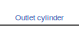
[diagram: root canvas - part 59/59, bottom center region]
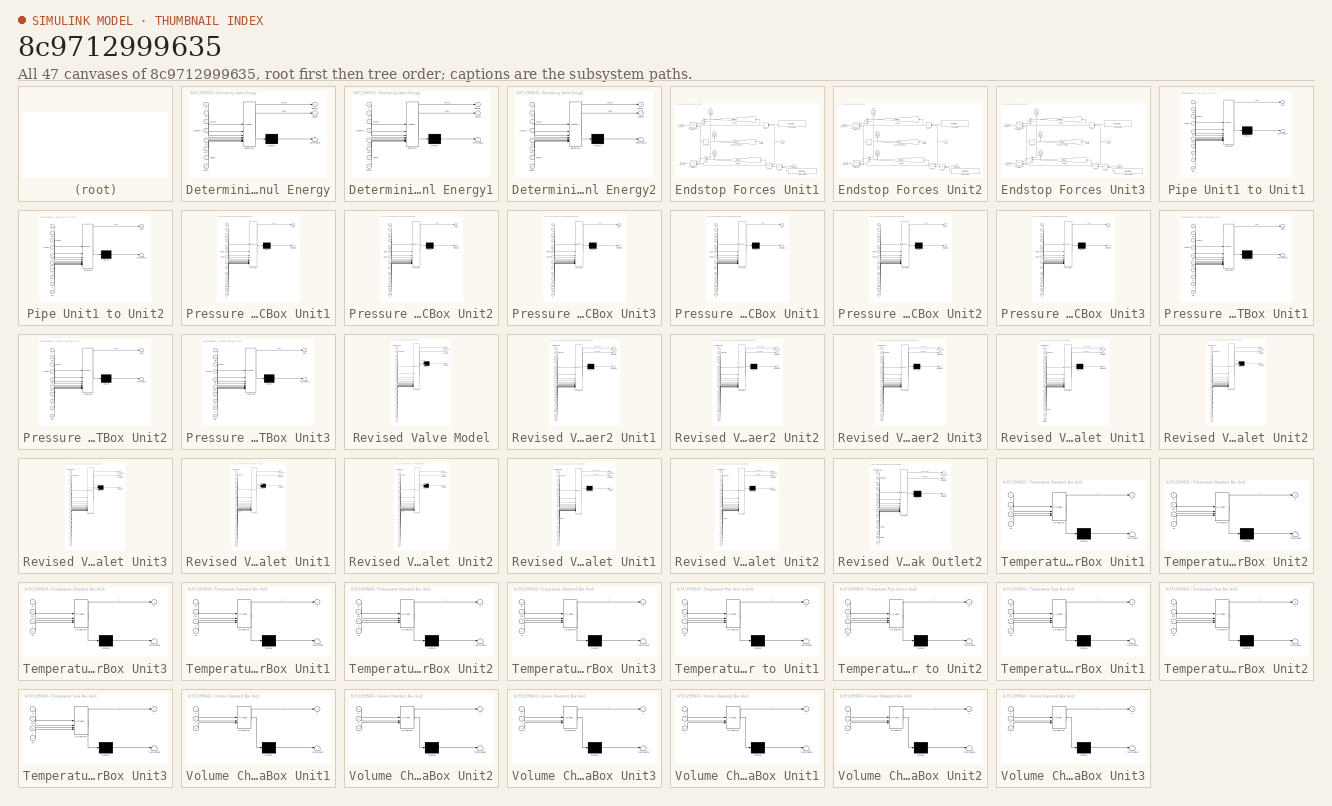
[diagram: thumbnail index - all 47 canvases of the model, root first then tree order]
MODEL slx_8c9712999635
KIND model
CONFIG AbsTol = auto
CONFIG EnableMultiTasking = off
CONFIG FixedStep = 0.01
CONFIG MaxStep = 0.01
CONFIG MinStep = auto
CONFIG RelTol = 1e-3
CONFIG SampleTimeConstraint = Unconstrained
CONFIG SolverName = ode4
CONFIG StartTime = 0
CONFIG StopTime = 200
BLOCK [Scope]  mdot Pipe U1U2
  Floating = off
  NumInputPorts = 1
  ScopeSpecificationString = C++SS(StrPVP('Location','[372, 193, 963, 600]'),StrPVP('Open','off'),MxPVP('AxesTitles',54,'struct(''axes1'',''%<SignalLabel>'')'),MxPVP('ScopeGraphics',57,'struct(''FigureColor'',''[0.156862745098039 0.156862745098039 0.156862745098039]'',''AxesColor'',''[0 0 0]'',''AxesTickColor'',''[0.686274509803922 0.686274509803922 0.686274509803922]'',''LineColors'',''[1 1 0;1 0 1;0 1 1;1 0 0;0 1 0;0 0 1]''...<+370ch>
BLOCK [Scope]  mdot Pipe U2U3
  Floating = off
  NumInputPorts = 1
  ScopeSpecificationString = C++SS(StrPVP('Location','[560, 315, 1120, 735]'),StrPVP('Open','off'),MxPVP('AxesTitles',54,'struct(''axes1'',''%<SignalLabel>'')'),MxPVP('ScopeGraphics',57,'struct(''FigureColor'',''[0.156862745098039 0.156862745098039 0.156862745098039]'',''AxesColor'',''[0 0 0]'',''AxesTickColor'',''[0.686274509803922 0.686274509803922 0.686274509803922]'',''LineColors'',''[1 1 0;1 0 1;0 1 1;1 0 0;0 1 0;0 0 1]'...<+361ch>
BLOCK [Scope]  mdot Tank Unit1
  Floating = off
  NumInputPorts = 1
  ScopeSpecificationString = C++SS(StrPVP('Location','[372, 193, 963, 600]'),StrPVP('Open','off'),MxPVP('AxesTitles',54,'struct(''axes1'',''%<SignalLabel>'')'),MxPVP('ScopeGraphics',57,'struct(''FigureColor'',''[0.156862745098039 0.156862745098039 0.156862745098039]'',''AxesColor'',''[0 0 0]'',''AxesTickColor'',''[0.686274509803922 0.686274509803922 0.686274509803922]'',''LineColors'',''[1 1 0;1 0 1;0 1 1;1 0 0;0 1 0;0 0 1]''...<+367ch>
BLOCK [Scope]  mdot Tank Unit2
  Floating = off
  NumInputPorts = 1
  ScopeSpecificationString = C++SS(StrPVP('Location','[-1, 194, 533, 737]'),StrPVP('Open','off'),MxPVP('AxesTitles',54,'struct(''axes1'',''%<SignalLabel>'')'),MxPVP('ScopeGraphics',57,'struct(''FigureColor'',''[0.156862745098039 0.156862745098039 0.156862745098039]'',''AxesColor'',''[0 0 0]'',''AxesTickColor'',''[0.686274509803922 0.686274509803922 0.686274509803922]'',''LineColors'',''[1 1 0;1 0 1;0 1 1;1 0 0;0 1 0;0 0 1]'',...<+367ch>
BLOCK [Scope]  mdot Tank Unit3
  Floating = off
  NumInputPorts = 1
  ScopeSpecificationString = C++SS(StrPVP('Location','[167, 197, 670, 590]'),StrPVP('Open','off'),MxPVP('AxesTitles',54,'struct(''axes1'',''%<SignalLabel>'')'),MxPVP('ScopeGraphics',57,'struct(''FigureColor'',''[0.156862745098039 0.156862745098039 0.156862745098039]'',''AxesColor'',''[0 0 0]'',''AxesTickColor'',''[0.686274509803922 0.686274509803922 0.686274509803922]'',''LineColors'',''[1 1 0;1 0 1;0 1 1;1 0 0;0 1 0;0 0 1]''...<+373ch>
BLOCK [Scope]  mdot max Pipe U1U2
  Floating = off
  NumInputPorts = 1
  ScopeSpecificationString = C++SS(StrPVP('Location','[560, 315, 1120, 735]'),StrPVP('Open','off'),MxPVP('AxesTitles',54,'struct(''axes1'',''%<SignalLabel>'')'),MxPVP('ScopeGraphics',57,'struct(''FigureColor'',''[0.156862745098039 0.156862745098039 0.156862745098039]'',''AxesColor'',''[0 0 0]'',''AxesTickColor'',''[0.686274509803922 0.686274509803922 0.686274509803922]'',''LineColors'',''[1 1 0;1 0 1;0 1 1;1 0 0;0 1 0;0 0 1]'...<+342ch>
BLOCK [Scope]  mdot max Pipe U2U3
  Floating = off
  NumInputPorts = 1
  ScopeSpecificationString = C++SS(StrPVP('Location','[560, 315, 1120, 735]'),StrPVP('Open','off'),MxPVP('AxesTitles',54,'struct(''axes1'',''%<SignalLabel>'')'),MxPVP('ScopeGraphics',57,'struct(''FigureColor'',''[0.156862745098039 0.156862745098039 0.156862745098039]'',''AxesColor'',''[0 0 0]'',''AxesTickColor'',''[0.686274509803922 0.686274509803922 0.686274509803922]'',''LineColors'',''[1 1 0;1 0 1;0 1 1;1 0 0;0 1 0;0 0 1]'...<+328ch>  <repeated x9 — deduplicated; at blocks: mdot max Pipe U2U3, Air Mass Chamber1 Unit2, Air Mass Chamber2 Unit2, Air Mass change rate Chamber1 Unit2, Air Mass change rate Chamber2 Unit2, Chamber pressure potential Unit2, Pdot Pipe U2U3, Pipe Air Mass change rate U2U3, mdot Max Cylinder Unit1>
BLOCK [Scope]  mdot max Tank Unit1
  Floating = off
  NumInputPorts = 1
  ScopeSpecificationString = C++SS(StrPVP('Location','[149, 261, 824, 723]'),StrPVP('Open','off'),MxPVP('AxesTitles',54,'struct(''axes1'',''%<SignalLabel>'')'),MxPVP('ScopeGraphics',57,'struct(''FigureColor'',''[0.156862745098039 0.156862745098039 0.156862745098039]'',''AxesColor'',''[0 0 0]'',''AxesTickColor'',''[0.686274509803922 0.686274509803922 0.686274509803922]'',''LineColors'',''[1 1 0;1 0 1;0 1 1;1 0 0;0 1 0;0 0 1]''...<+339ch>
BLOCK [Scope]  mdot max Tank Unit2
  Floating = off
  NumInputPorts = 1
  ScopeSpecificationString = C++SS(StrPVP('Location','[560, 315, 1120, 735]'),StrPVP('Open','off'),MxPVP('AxesTitles',54,'struct(''axes1'',''%<SignalLabel>'')'),MxPVP('ScopeGraphics',57,'struct(''FigureColor'',''[0.156862745098039 0.156862745098039 0.156862745098039]'',''AxesColor'',''[0 0 0]'',''AxesTickColor'',''[0.686274509803922 0.686274509803922 0.686274509803922]'',''LineColors'',''[1 1 0;1 0 1;0 1 1;1 0 0;0 1 0;0 0 1]'...<+352ch>  <repeated x4 — deduplicated; at blocks: mdot max Tank Unit2, Fk2>
BLOCK [Scope]  mdot max Tank Unit3
  Floating = off
  NumInputPorts = 1
  ScopeSpecificationString = C++SS(StrPVP('Location','[560, 315, 1120, 735]'),StrPVP('Open','off'),MxPVP('AxesTitles',54,'struct(''axes1'',''%<SignalLabel>'')'),MxPVP('ScopeGraphics',57,'struct(''FigureColor'',''[0.156862745098039 0.156862745098039 0.156862745098039]'',''AxesColor'',''[0 0 0]'',''AxesTickColor'',''[0.686274509803922 0.686274509803922 0.686274509803922]'',''LineColors'',''[1 1 0;1 0 1;0 1 1;1 0 0;0 1 0;0 0 1]'...<+329ch>  <repeated x27 — deduplicated; at blocks: mdot max Tank Unit3, Air Mass Chamber1 Unit3, Air Mass Chamber2 Unit3, Air Mass change rate Chamber1 Unit3, Air Mass change rate Chamber2 Unit3, Mech_Energy Unit2, Mech_Energy Unit3, Mech_PTO Unit2, Mech_PTO Unit3, Pdot Chamber1 Unit2, Pdot Chamber1 Unit3, Pdot Chamber2 Unit2, Pdot Tank Unit2, Pdot Tank Unit3, Pipe Air Mass change rate U1U2, Tank Air Mass Unit2, +11 more>
BLOCK [Sum] Add1
  IconShape = rectangular
  Inputs = +-
BLOCK [Sum] Add10
  IconShape = rectangular
  Inputs = -+
BLOCK [Sum] Add11
  IconShape = rectangular
  Inputs = -+
BLOCK [Sum] Add12
  IconShape = rectangular
  Inputs = ++++
  RndMeth = Simplest
BLOCK [Sum] Add13
  IconShape = rectangular
  Inputs = +-
BLOCK [Sum] Add14
  IconShape = rectangular
  Inputs = +-
BLOCK [Sum] Add15
  IconShape = rectangular
  Inputs = +-
BLOCK [Sum] Add16
  IconShape = rectangular
  Inputs = -+
BLOCK [Sum] Add17
  IconShape = rectangular
  Inputs = -+
BLOCK [Sum] Add18
  IconShape = rectangular
  Inputs = -+
BLOCK [Sum] Add19
  IconShape = rectangular
  Inputs = ++++
  RndMeth = Simplest
BLOCK [Sum] Add2
  IconShape = rectangular
  Inputs = -+
BLOCK [Sum] Add3
  IconShape = rectangular
  Inputs = -+
BLOCK [Sum] Add4
  IconShape = rectangular
  Inputs = -+
BLOCK [Sum] Add5
  IconShape = rectangular
  Inputs = -+
BLOCK [Sum] Add6
  IconShape = rectangular
  Inputs = -+
BLOCK [Sum] Add7
  IconShape = rectangular
  Inputs = -+
BLOCK [Sum] Add8
  IconShape = rectangular
  Inputs = ++++
  RndMeth = Simplest
BLOCK [Sum] Add9
  IconShape = rectangular
  Inputs = -+
BLOCK [Scope] Air Mass Chamber1 Unit1
  Floating = off
  NameLocation = right
  NumInputPorts = 1
  ScopeSpecificationString = C++SS(StrPVP('Location','[67, 760, 495, 1025]'),StrPVP('Open','off'),MxPVP('AxesTitles',54,'struct(''axes1'',''%<SignalLabel>'')'),MxPVP('ScopeGraphics',57,'struct(''FigureColor'',''[0.156862745098039 0.156862745098039 0.156862745098039]'',''AxesColor'',''[0 0 0]'',''AxesTickColor'',''[0.686274509803922 0.686274509803922 0.686274509803922]'',''LineColors'',''[1 1 0;1 0 1;0 1 1;1 0 0;0 1 0;0 0 1]''...<+340ch>
BLOCK [Scope] Air Mass Chamber1 Unit2
  Floating = off
  NameLocation = right
  NumInputPorts = 1
BLOCK [Scope] Air Mass Chamber1 Unit3
  Floating = off
  NameLocation = right
  NumInputPorts = 1
BLOCK [Scope] Air Mass Chamber2 Unit1
  Floating = off
  NameLocation = right
  NumInputPorts = 1
  ScopeSpecificationString = C++SS(StrPVP('Location','[526, 761, 980, 997]'),StrPVP('Open','off'),MxPVP('AxesTitles',54,'struct(''axes1'',''%<SignalLabel>'')'),MxPVP('ScopeGraphics',57,'struct(''FigureColor'',''[0.156862745098039 0.156862745098039 0.156862745098039]'',''AxesColor'',''[0 0 0]'',''AxesTickColor'',''[0.686274509803922 0.686274509803922 0.686274509803922]'',''LineColors'',''[1 1 0;1 0 1;0 1 1;1 0 0;0 1 0;0 0 1]''...<+341ch>
BLOCK [Scope] Air Mass Chamber2 Unit2
  Floating = off
  NameLocation = right
  NumInputPorts = 1
BLOCK [Scope] Air Mass Chamber2 Unit3
  Floating = off
  NameLocation = right
  NumInputPorts = 1
BLOCK [Scope] Air Mass Pipe U1U2
  Floating = off
  NameLocation = right
  NumInputPorts = 1
  ScopeSpecificationString = C++SS(StrPVP('Location','[560, 315, 1120, 735]'),StrPVP('Open','off'),MxPVP('AxesTitles',54,'struct(''axes1'',''%<SignalLabel>'')'),MxPVP('ScopeGraphics',57,'struct(''FigureColor'',''[0.156862745098039 0.156862745098039 0.156862745098039]'',''AxesColor'',''[0 0 0]'',''AxesTickColor'',''[0.686274509803922 0.686274509803922 0.686274509803922]'',''LineColors'',''[1 1 0;1 0 1;0 1 1;1 0 0;0 1 0;0 0 1]'...<+340ch>  <repeated x3 — deduplicated; at blocks: Air Mass Pipe U1U2, mdot Max Chamber1Chamber2 Unit3, mdot Max Cylinder Unit3>
BLOCK [Scope] Air Mass Pipe U2U3
  Floating = off
  NameLocation = right
  NumInputPorts = 1
  ScopeSpecificationString = C++SS(StrPVP('Location','[560, 315, 1120, 735]'),StrPVP('Open','off'),MxPVP('AxesTitles',54,'struct(''axes1'',''%<SignalLabel>'')'),MxPVP('ScopeGraphics',57,'struct(''FigureColor'',''[0.156862745098039 0.156862745098039 0.156862745098039]'',''AxesColor'',''[0 0 0]'',''AxesTickColor'',''[0.686274509803922 0.686274509803922 0.686274509803922]'',''LineColors'',''[1 1 0;1 0 1;0 1 1;1 0 0;0 1 0;0 0 1]'...<+336ch>
BLOCK [Scope] Air Mass change rate Chamber1 Unit1
  Floating = off
  NumInputPorts = 1
  ScopeSpecificationString = C++SS(StrPVP('Location','[560, 315, 1120, 735]'),StrPVP('Open','off'),MxPVP('AxesTitles',54,'struct(''axes1'',''%<SignalLabel>'')'),MxPVP('ScopeGraphics',57,'struct(''FigureColor'',''[0.156862745098039 0.156862745098039 0.156862745098039]'',''AxesColor'',''[0 0 0]'',''AxesTickColor'',''[0.686274509803922 0.686274509803922 0.686274509803922]'',''LineColors'',''[1 1 0;1 0 1;0 1 1;1 0 0;0 1 0;0 0 1]'...<+339ch>
BLOCK [Scope] Air Mass change rate Chamber1 Unit2
  Floating = off
  NumInputPorts = 1
BLOCK [Scope] Air Mass change rate Chamber1 Unit3
  Floating = off
  NumInputPorts = 1
BLOCK [Scope] Air Mass change rate Chamber2 Unit1
  Floating = off
  NumInputPorts = 1
  ScopeSpecificationString = C++SS(StrPVP('Location','[350, 335, 910, 755]'),StrPVP('Open','off'),MxPVP('AxesTitles',54,'struct(''axes1'',''%<SignalLabel>'')'),MxPVP('ScopeGraphics',57,'struct(''FigureColor'',''[0.156862745098039 0.156862745098039 0.156862745098039]'',''AxesColor'',''[0 0 0]'',''AxesTickColor'',''[0.686274509803922 0.686274509803922 0.686274509803922]'',''LineColors'',''[1 1 0;1 0 1;0 1 1;1 0 0;0 1 0;0 0 1]''...<+338ch>
BLOCK [Scope] Air Mass change rate Chamber2 Unit2
  Floating = off
  NumInputPorts = 1
BLOCK [Scope] Air Mass change rate Chamber2 Unit3
  Floating = off
  NumInputPorts = 1
BLOCK [Assertion] Assertion
  AssertionFailFcn = Ch1C1 mass is zero
BLOCK [Assertion] Assertion1
  AssertionFailFcn = Ch1C1 pressure is zero
BLOCK [Assertion] Assertion10
  AssertionFailFcn = Ch1C1 volume is zero
BLOCK [Assertion] Assertion11
  AssertionFailFcn = Ch2C1 volume is zero
BLOCK [Assertion] Assertion12
  AssertionFailFcn = Ch1C1 mass is zero
BLOCK [Assertion] Assertion13
  AssertionFailFcn = Ch1C1 pressure is zero
BLOCK [Assertion] Assertion14
  AssertionFailFcn = Ch2C1 pressure is zero
  StopWhenAssertionFail = off
BLOCK [Assertion] Assertion15
  AssertionFailFcn = Ch2C1 mass is zero
BLOCK [Assertion] Assertion16
  AssertionFailFcn = Ch1C1 volume is zero
BLOCK [Assertion] Assertion17
  AssertionFailFcn = Ch2C1 volume is zero
BLOCK [Assertion] Assertion2
  AssertionFailFcn = Ch2C1 pressure is zero
  StopWhenAssertionFail = off
BLOCK [Assertion] Assertion3
  AssertionFailFcn = Ch2C1 mass is zero
BLOCK [Assertion] Assertion4
  AssertionFailFcn = Ch1C1 volume is zero
BLOCK [Assertion] Assertion5
  AssertionFailFcn = Ch2C1 volume is zero
BLOCK [Assertion] Assertion6
  AssertionFailFcn = Ch1C1 mass is zero
BLOCK [Assertion] Assertion7
  AssertionFailFcn = Ch1C1 pressure is zero
BLOCK [Assertion] Assertion8
  AssertionFailFcn = Ch2C1 pressure is zero
  StopWhenAssertionFail = off
BLOCK [Assertion] Assertion9
  AssertionFailFcn = Ch2C1 mass is zero
BLOCK [Constant] Atmospheric pressure1
  Value = AOE.AtmPressure
BLOCK [Constant] Atmospheric pressure2
  Value = AOE.AtmPressure
BLOCK [Constant] Atmospheric pressure3
  Value = AOE.AtmPressure
BLOCK [Constant] Atmospheric pressure4
  Value = AOE.AtmPressure
BLOCK [BusSelector] Bus Selector
  OutputSignals = velocity,position
BLOCK [BusSelector] Bus Selector1
  OutputSignals = velocity,position
BLOCK [BusSelector] Bus Selector2
  OutputSignals = velocity,position
BLOCK [Scope] Chamber pressure potential Unit1
  Floating = off
  NumInputPorts = 1
  ScopeSpecificationString = C++SS(StrPVP('Location','[560, 315, 1120, 735]'),StrPVP('Open','off'),MxPVP('AxesTitles',54,'struct(''axes1'',''%<SignalLabel>'')'),MxPVP('ScopeGraphics',57,'struct(''FigureColor'',''[0.156862745098039 0.156862745098039 0.156862745098039]'',''AxesColor'',''[0 0 0]'',''AxesTickColor'',''[0.686274509803922 0.686274509803922 0.686274509803922]'',''LineColors'',''[1 1 0;1 0 1;0 1 1;1 0 0;0 1 0;0 0 1]'...<+346ch>
BLOCK [Scope] Chamber pressure potential Unit2
  Floating = off
  NumInputPorts = 1
BLOCK [Scope] Chamber pressure potential Unit3
  Floating = off
  NumInputPorts = 1
  ScopeSpecificationString = Simulink.scopes.TimeScopeBlockCfg('CurrentConfiguration', extmgr.ConfigurationSet(extmgr.Configuration('Core','General UI',true,'FigureColor',[0.156862745098039 0.156862745098039 0.156862745098039]),extmgr.Configuration('Core','Source UI',true),extmgr.Configuration('Sources','WiredSimulink',true,'DataLoggingVariableName','ScopeData50','DataLoggingLimitDataPoints',true,'DataLoggingSaveFormat','Arra...<+2943ch>
BLOCK [Clock] Clock
BLOCK [Clock] Clock1
BLOCK [Constant] Constant1
  Value = AOE.Unit1.Cylinder.HeatConvection
BLOCK [Constant] Constant10
  Value = AOE.Unit2.Cylinder.HeatConvection
BLOCK [Constant] Constant100
  Value = AOE.Unit2.Cylinder.CrossSectionalArea
BLOCK [Constant] Constant101
  Value = AOE.WaterTemperature
BLOCK [Constant] Constant102
  Value = AOE.Unit2.Tank.HeatConvection
BLOCK [Constant] Constant103
  Value = AOE.Unit2.Tank.SurfaceArea
BLOCK [Constant] Constant104
  Value = AOE.Unit2.Tank.Volume
BLOCK [Constant] Constant105
  Value = AOE.Unit1.Pipe.CrossSectionalArea
BLOCK [Constant] Constant106
  Value = AOE.WaterTemperature
BLOCK [Constant] Constant107
  Value = AOE.Unit2.Tank.HeatConvection
BLOCK [Constant] Constant108
  Value = AOE.Unit2.Tank.SurfaceArea
BLOCK [Constant] Constant109
  Value = AOE.gma
BLOCK [Constant] Constant11
  Value = AOE.Unit2.Chamber2.InitialPistonPosition
BLOCK [Constant] Constant110
  Value = AOE.Unit2.Tank.Volume
BLOCK [Constant] Constant111
  Value = AOE.Unit1.Pipe.HeatConvection
BLOCK [Constant] Constant112
  Value = AOE.Unit2.Pipe.InitialAirMass
BLOCK [Constant] Constant113
  Value = AOE.Unit2.Pipe.CrossSectionalArea
BLOCK [Constant] Constant114
  Value = AOE.Rs
BLOCK [Constant] Constant115
  Value = AOE.Cp
BLOCK [Constant] Constant116
  Value = AOE.Unit2.OutletCylinderOrifice.CrossSectionalArea
BLOCK [Constant] Constant117
  Value = AOE.Unit2.Chamber1Chamber2Orifice.CrossSectionalArea
BLOCK [Constant] Constant118
  Value = AOE.Unit2.Cylinder.CrossSectionalArea
BLOCK [Constant] Constant119
  Value = AOE.WaterTemperature
BLOCK [Constant] Constant12
  Value = AOE.Unit2.Cylinder.Diameter
BLOCK [Constant] Constant120
  Value = AOE.Unit2.Chamber1.InitialAirMass
BLOCK [Constant] Constant121
  Value = AOE.Unit3.Cylinder.HeatConvection
BLOCK [Constant] Constant122
  Value = AOE.Unit3.Cylinder.HeatConvection
BLOCK [Constant] Constant123
  Value = AOE.Unit3.Chamber2.InitialPistonPosition
BLOCK [Constant] Constant124
  Value = AOE.Unit3.Cylinder.Diameter
BLOCK [Constant] Constant125
  Value = AOE.Unit3.Chamber2.InitialAirMass
BLOCK [Constant] Constant126
  Value = AOE.Unit3.Chamber1.InitialPressure
BLOCK [Constant] Constant127
  Value = AOE.Unit3.Chamber2.InitialPressure
BLOCK [Constant] Constant128
  Value = AOE.Unit3.OutletTankOrifice.CrossSectionalArea
BLOCK [Constant] Constant129
  Value = AOE.Rs
BLOCK [Constant] Constant13
  Value = AOE.Unit2.Chamber2.InitialAirMass
BLOCK [Constant] Constant130
  Value = AOE.gma
BLOCK [Constant] Constant131
  Value = AOE.Unit3.Cylinder.HeatConvection
BLOCK [Constant] Constant132
  Value = AOE.Unit3.Tank.InitialAirMass
BLOCK [Constant] Constant133
  Value = AOE.WaterTemperature
BLOCK [Constant] Constant134
  Value = AOE.Rs
BLOCK [Constant] Constant135
  Value = AOE.gma
BLOCK [Constant] Constant136
  Value = AOE.Unit3.Cylinder.CrossSectionalArea
BLOCK [Constant] Constant137
  Value = AOE.Rs
BLOCK [Constant] Constant138
  Value = AOE.Rs
BLOCK [Constant] Constant139
  Value = AOE.gma
BLOCK [Constant] Constant14
  Value = AOE.Unit1.Cylinder.HeatConvection
BLOCK [Constant] Constant140
  Value = AOE.Unit3.Tank.HeatConvection
BLOCK [Constant] Constant141
  Value = AOE.Unit3.Tank.InitialPressure
BLOCK [Constant] Constant142
  Value = AOE.Unit3.Tank.SurfaceArea
BLOCK [Constant] Constant143
  Value = AOE.Rs
BLOCK [Constant] Constant144
  Value = AOE.Unit1.Tank.Volume
BLOCK [Constant] Constant145
  Value = AOE.Unit3.Cylinder.HeatConvection
BLOCK [Constant] Constant146
  Value = AOE.WaterTemperature
BLOCK [Constant] Constant147
  Value = AOE.Rs
BLOCK [Constant] Constant148
  Value = AOE.Rs
BLOCK [Constant] Constant149
  Value = AOE.gma
BLOCK [Constant] Constant15
  Value = AOE.Unit2.Chamber1.InitialPressure
BLOCK [Constant] Constant150
  Value = AOE.Unit3.Cylinder.CrossSectionalArea
BLOCK [Constant] Constant151
  Value = AOE.WaterTemperature
BLOCK [Constant] Constant152
  Value = AOE.Rs
BLOCK [Constant] Constant153
  Value = AOE.Unit3.Chamber2.InitialPistonPosition
BLOCK [Constant] Constant154
  Value = AOE.Unit3.Cylinder.CrossSectionalArea
BLOCK [Constant] Constant155
  Value = AOE.gma
BLOCK [Constant] Constant156
  Value = AOE.Unit3.Tank.Volume
BLOCK [Constant] Constant157
  Value = AOE.Unit3.Cylinder.CrossSectionalArea
BLOCK [Constant] Constant158
  Value = AOE.Rs
BLOCK [Constant] Constant159
  Value = AOE.Unit3.Tank.Volume
BLOCK [Constant] Constant16
  Value = AOE.Unit1.Chamber2.InitialPistonPosition
BLOCK [Constant] Constant160
  Value = AOE.Unit3.Cylinder.CrossSectionalArea
BLOCK [Constant] Constant161
  Value = AOE.WaterTemperature
BLOCK [Constant] Constant162
  Value = AOE.Unit3.Tank.HeatConvection
BLOCK [Constant] Constant163
  Value = AOE.Unit3.Tank.SurfaceArea
BLOCK [Constant] Constant164
  Value = AOE.Unit3.Tank.Volume
BLOCK [Constant] Constant165
  Value = AOE.Rs
BLOCK [Constant] Constant166
  Value = AOE.WaterTemperature
BLOCK [Constant] Constant167
  Value = AOE.Unit3.Tank.HeatConvection
BLOCK [Constant] Constant168
  Value = AOE.Unit3.Tank.SurfaceArea
BLOCK [Constant] Constant169
  Value = AOE.gma
BLOCK [Constant] Constant17
  Value = AOE.Unit1.Cylinder.Diameter
BLOCK [Constant] Constant170
  Value = AOE.Unit3.Tank.Volume
BLOCK [Constant] Constant171
  Value = AOE.Cp
BLOCK [Constant] Constant172
  Value = AOE.Rs
BLOCK [Constant] Constant173
  Value = AOE.Cp
BLOCK [Constant] Constant174
  Value = AOE.WaterTemperature
BLOCK [Constant] Constant175
  Value = AOE.Rs
BLOCK [Constant] Constant176
  Value = AOE.Unit3.OutletCylinderOrifice.CrossSectionalArea
BLOCK [Constant] Constant177
  Value = AOE.Unit3.Chamber1Chamber2Orifice.CrossSectionalArea
BLOCK [Constant] Constant178
  Value = AOE.Unit3.Cylinder.CrossSectionalArea
BLOCK [Constant] Constant179
  Value = AOE.WaterTemperature
BLOCK [Constant] Constant18
  Value = AOE.Unit1.Chamber2.InitialAirMass
BLOCK [Constant] Constant180
  Value = AOE.Unit3.Chamber1.InitialAirMass
BLOCK [Constant] Constant181
  Value = AOE.gma
BLOCK [Constant] Constant182
  Value = AOE.Unit2.Pipe.HeatConvection
BLOCK [Constant] Constant183
  Value = AOE.Unit2.Pipe.InitialPressure
BLOCK [Constant] Constant184
  Value = AOE.Unit2.Pipe.SurfaceArea
BLOCK [Constant] Constant185
  Value = AOE.Rs
BLOCK [Constant] Constant186
  Value = AOE.WaterTemperature
BLOCK [Constant] Constant187
  Value = AOE.Unit2.Pipe.Volume
BLOCK [Constant] Constant188
  Value = AOE.Unit2.Pipe.Volume
BLOCK [Constant] Constant189
  Value = AOE.Unit2.Pipe.HeatConvection
BLOCK [Constant] Constant19
  Value = AOE.Unit1.Chamber1.InitialPressure
BLOCK [Constant] Constant190
  Value = AOE.Unit2.Pipe.SurfaceArea
BLOCK [Constant] Constant191
  Value = AOE.Unit2.Pipe.HeatConvection
BLOCK [Constant] Constant193
  Value = AOE.Unit2.Pipe.Volume
BLOCK [Constant] Constant194
  Value = AOE.Unit3.Cylinder.CrossSectionalArea
BLOCK [Constant] Constant195
  Value = AOE.Unit3.Cylinder.HeatConvection
BLOCK [Constant] Constant196
  Value = AOE.Unit2.OutletPipeOrifice.CrossSectionalArea
BLOCK [Constant] Constant197
  Value = AOE.Rs
BLOCK [Constant] Constant198
  Value = AOE.gma
BLOCK [Constant] Constant199
  Value = AOE.Unit2.Pipe.Volume
BLOCK [Constant] Constant2
  Value = AOE.Unit2.Cylinder.HeatConvection
BLOCK [Constant] Constant20
  Value = AOE.Unit1.Chamber2.InitialPressure
BLOCK [Constant] Constant200
  Value = AOE.Unit2.Cylinder.CrossSectionalArea
BLOCK [Constant] Constant201
  Value = AOE.Unit1.Pipe.InitialAirMass
BLOCK [Constant] Constant202
  Value = AOE.Rs
BLOCK [Constant] Constant203
  Value = AOE.gma
BLOCK [Constant] Constant204
  Value = AOE.Unit1.Pipe.HeatConvection
BLOCK [Constant] Constant205
  Value = AOE.Unit1.Pipe.InitialPressure
BLOCK [Constant] Constant206
  Value = AOE.Unit1.Pipe.SurfaceArea
BLOCK [Constant] Constant207
  Value = AOE.Rs
BLOCK [Constant] Constant208
  Value = AOE.Unit2.Cylinder.HeatConvection
BLOCK [Constant] Constant209
  Value = AOE.WaterTemperature
BLOCK [Constant] Constant21
  Value = AOE.Unit1.OutletTankOrifice.CrossSectionalArea
BLOCK [Constant] Constant210
  Value = AOE.Unit1.OutletPipeOrifice.CrossSectionalArea
BLOCK [Constant] Constant211
  Value = AOE.Rs
BLOCK [Constant] Constant212
  Value = AOE.Unit1.Pipe.Volume
BLOCK [Constant] Constant213
  Value = AOE.gma
BLOCK [Constant] Constant214
  Value = AOE.WaterTemperature
BLOCK [Constant] Constant215
  Value = AOE.Unit1.Pipe.HeatConvection
BLOCK [Constant] Constant216
  Value = AOE.Unit1.Pipe.SurfaceArea
BLOCK [Constant] Constant217
  Value = AOE.Unit1.Pipe.Volume
BLOCK [Constant] Constant218
  Value = AOE.Unit1.Pipe.Volume
BLOCK [Constant] Constant22
  Value = AOE.Rs
BLOCK [Constant] Constant220
  Value = AOE.Unit1.Pipe.Volume
BLOCK [Constant] Constant23
  Value = AOE.gma
BLOCK [Constant] Constant24
  Value = AOE.Unit1.Cylinder.HeatConvection
BLOCK [Constant] Constant25
  Value = AOE.Unit1.Tank.InitialAirMass
BLOCK [Constant] Constant26
  Value = AOE.WaterTemperature
BLOCK [Constant] Constant27
  Value = AOE.Rs
BLOCK [Constant] Constant28
  Value = AOE.gma
BLOCK [Constant] Constant29
  Value = AOE.Unit1.Cylinder.CrossSectionalArea
BLOCK [Constant] Constant3
  Value = AOE.Rs
BLOCK [Constant] Constant30
  Value = AOE.Rs
BLOCK [Constant] Constant31
  Value = AOE.gma
BLOCK [Constant] Constant32
  Value = AOE.Unit1.Tank.HeatConvection
BLOCK [Constant] Constant33
  Value = AOE.Unit1.Tank.InitialPressure
BLOCK [Constant] Constant34
  Value = AOE.Unit1.Tank.SurfaceArea
BLOCK [Constant] Constant35
  Value = AOE.Rs
BLOCK [Constant] Constant36
  Value = AOE.Unit1.Tank.Volume
BLOCK [Constant] Constant37
  Value = AOE.Unit1.Cylinder.HeatConvection
BLOCK [Constant] Constant38
  Value = AOE.WaterTemperature
BLOCK [Constant] Constant39
  Value = AOE.Rs
BLOCK [Constant] Constant4
  Value = AOE.Rs
BLOCK [Constant] Constant40
  Value = AOE.gma
BLOCK [Constant] Constant41
  Value = AOE.Unit1.Cylinder.CrossSectionalArea
BLOCK [Constant] Constant42
  Value = AOE.WaterTemperature
BLOCK [Constant] Constant43
  Value = AOE.Rs
BLOCK [Constant] Constant44
  Value = AOE.Unit1.Chamber2.InitialPistonPosition
BLOCK [Constant] Constant45
  Value = AOE.Unit2.Chamber2.InitialPressure
BLOCK [Constant] Constant46
  Value = AOE.Unit1.Cylinder.CrossSectionalArea
BLOCK [Constant] Constant47
  Value = AOE.gma
BLOCK [Constant] Constant48
  Value = AOE.Unit1.Tank.Volume
BLOCK [Constant] Constant49
  Value = AOE.Unit1.Cylinder.CrossSectionalArea
BLOCK [Constant] Constant5
  Value = AOE.Rs
BLOCK [Constant] Constant50
  Value = AOE.Unit1.Tank.Volume
BLOCK [Constant] Constant51
  Value = AOE.Unit1.Cylinder.CrossSectionalArea
BLOCK [Constant] Constant52
  Value = AOE.WaterTemperature
BLOCK [Constant] Constant53
  Value = AOE.Unit1.Tank.HeatConvection
BLOCK [Constant] Constant54
  Value = AOE.Unit1.Tank.SurfaceArea
BLOCK [Constant] Constant55
  Value = AOE.Unit1.Tank.Volume
BLOCK [Constant] Constant56
  Value = AOE.Unit1.Cylinder.HeatConvection
BLOCK [Constant] Constant57
  Value = AOE.WaterTemperature
BLOCK [Constant] Constant58
  Value = AOE.Unit1.Tank.HeatConvection
BLOCK [Constant] Constant59
  Value = AOE.Unit1.Tank.SurfaceArea
BLOCK [Constant] Constant6
  Value = AOE.gma
BLOCK [Constant] Constant60
  Value = AOE.Unit1.Tank.Volume
BLOCK [Constant] Constant61
  Value = AOE.Rs
BLOCK [Constant] Constant62
  Value = AOE.gma
BLOCK [Constant] Constant63
  Value = AOE.Unit1.Cylinder.CrossSectionalArea
BLOCK [Constant] Constant64
  Value = AOE.WaterTemperature
BLOCK [Constant] Constant65
  Value = AOE.Unit1.InletCylinderOrifice.CrossSectionalArea
BLOCK [Constant] Constant66
  Value = AOE.Unit1.OutletCylinderOrifice.CrossSectionalArea
BLOCK [Constant] Constant67
  Value = AOE.Unit1.Chamber1Chamber2Orifice.CrossSectionalArea
BLOCK [Constant] Constant68
  Value = AOE.Unit2.OutletTankOrifice.CrossSectionalArea
BLOCK [Constant] Constant69
  Value = AOE.Rs
BLOCK [Constant] Constant7
  Value = AOE.Unit1.Cylinder.CrossSectionalArea
BLOCK [Constant] Constant70
  Value = AOE.gma
BLOCK [Constant] Constant71
  Value = AOE.Unit2.Cylinder.HeatConvection
BLOCK [Constant] Constant72
  Value = AOE.Unit2.Tank.InitialAirMass
BLOCK [Constant] Constant73
  Value = AOE.WaterTemperature
BLOCK [Constant] Constant74
  Value = AOE.Rs
BLOCK [Constant] Constant75
  Value = AOE.gma
BLOCK [Constant] Constant76
  Value = AOE.Unit2.Cylinder.CrossSectionalArea
BLOCK [Constant] Constant77
  Value = AOE.Rs
BLOCK [Constant] Constant78
  Value = AOE.Rs
BLOCK [Constant] Constant79
  Value = AOE.gma
BLOCK [Constant] Constant8
  Value = AOE.WaterTemperature
BLOCK [Constant] Constant80
  Value = AOE.Unit2.Tank.HeatConvection
BLOCK [Constant] Constant81
  Value = AOE.Unit2.Tank.InitialPressure
BLOCK [Constant] Constant82
  Value = AOE.Unit2.Tank.SurfaceArea
BLOCK [Constant] Constant83
  Value = AOE.Rs
BLOCK [Constant] Constant84
  Value = AOE.Unit1.Tank.Volume
BLOCK [Constant] Constant85
  Value = AOE.Unit2.Cylinder.HeatConvection
BLOCK [Constant] Constant86
  Value = AOE.WaterTemperature
BLOCK [Constant] Constant87
  Value = AOE.Rs
BLOCK [Constant] Constant88
  Value = AOE.Rs
BLOCK [Constant] Constant89
  Value = AOE.gma
BLOCK [Constant] Constant9
  Value = AOE.Unit1.Chamber1.InitialAirMass
BLOCK [Constant] Constant90
  Value = AOE.Unit2.Cylinder.CrossSectionalArea
BLOCK [Constant] Constant91
  Value = AOE.WaterTemperature
BLOCK [Constant] Constant92
  Value = AOE.Rs
BLOCK [Constant] Constant93
  Value = AOE.Unit2.Chamber2.InitialPistonPosition
BLOCK [Constant] Constant94
  Value = AOE.Unit2.Cylinder.CrossSectionalArea
BLOCK [Constant] Constant95
  Value = AOE.gma
BLOCK [Constant] Constant96
  Value = AOE.Unit2.Tank.Volume
BLOCK [Constant] Constant97
  Value = AOE.Unit2.Cylinder.CrossSectionalArea
BLOCK [Constant] Constant98
  Value = AOE.Rs
BLOCK [Constant] Constant99
  Value = AOE.Unit2.Tank.Volume
BLOCK [Reference] Coulomb & Viscous Friction Unit1  REF=simulink/Discontinuities/Coulomb &
Viscous Friction
  SourceBlock = simulink/Discontinuities/Coulomb &\nViscous Friction
  SourceType = Coulombic and Viscous Friction
BLOCK [Reference] Coulomb & Viscous Friction Unit2  REF=simulink/Discontinuities/Coulomb &
Viscous Friction
  SourceBlock = simulink/Discontinuities/Coulomb &\nViscous Friction
  SourceType = Coulombic and Viscous Friction
BLOCK [Reference] Coulomb & Viscous Friction Unit3  REF=simulink/Discontinuities/Coulomb &
Viscous Friction
  SourceBlock = simulink/Discontinuities/Coulomb &\nViscous Friction
  SourceType = Coulombic and Viscous Friction
BLOCK [Constant] Cyl D
  Value = AOE.Unit1.Cylinder.Diameter
BLOCK [Constant] Cyl D1
  Value = AOE.Unit1.Cylinder.Diameter
BLOCK [Constant] Cyl D11
  Value = AOE.Unit3.Cylinder.Diameter
BLOCK [Constant] Cyl D13
  Value = AOE.Unit2.Cylinder.Diameter
BLOCK [Constant] Cyl D2
  Value = AOE.Unit1.Cylinder.Diameter
BLOCK [Constant] Cyl D3
  Value = AOE.Unit1.Cylinder.Diameter
BLOCK [Constant] Cyl D4
  Value = AOE.Unit2.Cylinder.Diameter
BLOCK [Constant] Cyl D5
  Value = AOE.Unit2.Cylinder.Diameter
BLOCK [Constant] Cyl D6
  Value = AOE.Unit3.Cylinder.Diameter
BLOCK [Constant] Cyl D7
  Value = AOE.Unit2.Cylinder.Diameter
BLOCK [Constant] Cyl D8
  Value = AOE.Unit3.Cylinder.Diameter
BLOCK [Constant] Cyl D9
  Value = AOE.Unit3.Cylinder.Diameter
BLOCK [SubSystem] Determining Useful Energy
  ErrorFcn = Stateflow.Translate.translate
  MinAlgLoopOccurrences = on
  PermitHierarchicalResolution = ExplicitOnly
  SFBlockType = MATLAB Function
BLOCK [Demux] Determining Useful Energy/ Demux 
  Outputs = 1
BLOCK [S-Function] Determining Useful Energy/ SFunction 
  EnableBusSupport = on
  FunctionName = sf_sfun
  PortCounts = [8 3]
  SFcnIsStateOwnerBlock = off
  SFunctionDeploymentMode = off
  Tag = Stateflow S-Function 19
BLOCK [Terminator] Determining Useful Energy/ Terminator 
BLOCK [Inport] Determining Useful Energy/Cp
  Port = 5
BLOCK [Inport] Determining Useful Energy/Density
  Port = 4
BLOCK [Outport] Determining Useful Energy/Exergy
BLOCK [Inport] Determining Useful Energy/P
  Port = 2
BLOCK [Inport] Determining Useful Energy/Pamb
  Port = 8
BLOCK [Outport] Determining Useful Energy/Power
  Port = 2
BLOCK [Inport] Determining Useful Energy/Rs
  Port = 6
BLOCK [Inport] Determining Useful Energy/T
BLOCK [Inport] Determining Useful Energy/Tamb
  Port = 7
BLOCK [Inport] Determining Useful Energy/mDot
  Port = 3
BLOCK [SubSystem] Determining Useful Energy1
  ErrorFcn = Stateflow.Translate.translate
  MinAlgLoopOccurrences = on
  PermitHierarchicalResolution = ExplicitOnly
  SFBlockType = MATLAB Function
BLOCK [Demux] Determining Useful Energy1/ Demux 
  Outputs = 1
BLOCK [S-Function] Determining Useful Energy1/ SFunction 
  EnableBusSupport = on
  FunctionName = sf_sfun
  PortCounts = [8 3]
  SFcnIsStateOwnerBlock = off
  SFunctionDeploymentMode = off
  Tag = Stateflow S-Function 29
BLOCK [Terminator] Determining Useful Energy1/ Terminator 
BLOCK [Inport] Determining Useful Energy1/Cp
  Port = 5
BLOCK [Inport] Determining Useful Energy1/Density
  Port = 4
BLOCK [Outport] Determining Useful Energy1/Exergy
BLOCK [Inport] Determining Useful Energy1/P
  Port = 2
BLOCK [Inport] Determining Useful Energy1/Pamb
  Port = 8
BLOCK [Outport] Determining Useful Energy1/Power
  Port = 2
BLOCK [Inport] Determining Useful Energy1/Rs
  Port = 6
BLOCK [Inport] Determining Useful Energy1/T
BLOCK [Inport] Determining Useful Energy1/Tamb
  Port = 7
BLOCK [Inport] Determining Useful Energy1/mDot
  Port = 3
BLOCK [SubSystem] Determining Useful Energy2
  ErrorFcn = Stateflow.Translate.translate
  MinAlgLoopOccurrences = on
  PermitHierarchicalResolution = ExplicitOnly
  SFBlockType = MATLAB Function
BLOCK [Demux] Determining Useful Energy2/ Demux 
  Outputs = 1
BLOCK [S-Function] Determining Useful Energy2/ SFunction 
  EnableBusSupport = on
  FunctionName = sf_sfun
  PortCounts = [8 3]
  SFcnIsStateOwnerBlock = off
  SFunctionDeploymentMode = off
  Tag = Stateflow S-Function 37
BLOCK [Terminator] Determining Useful Energy2/ Terminator 
BLOCK [Inport] Determining Useful Energy2/Cp
  Port = 5
BLOCK [Inport] Determining Useful Energy2/Density
  Port = 4
BLOCK [Outport] Determining Useful Energy2/Exergy
BLOCK [Inport] Determining Useful Energy2/P
  Port = 2
BLOCK [Inport] Determining Useful Energy2/Pamb
  Port = 8
BLOCK [Outport] Determining Useful Energy2/Power
  Port = 2
BLOCK [Inport] Determining Useful Energy2/Rs
  Port = 6
BLOCK [Inport] Determining Useful Energy2/T
BLOCK [Inport] Determining Useful Energy2/Tamb
  Port = 7
BLOCK [Inport] Determining Useful Energy2/mDot
  Port = 3
BLOCK [DiscreteIntegrator] Discrete-Time Integrator
  ICPrevOutput = DiscIntNeverNeededParam
  ICPrevScaledInput = DiscIntNeverNeededParam
  InitialCondition = 101.3
  InitialConditionSetting = Auto
  InitialConditionSource = external
  LimitOutput = on
  LowerSaturationLimit = 0
  SampleTime = -1
BLOCK [DiscreteIntegrator] Discrete-Time Integrator1
  ICPrevOutput = DiscIntNeverNeededParam
  ICPrevScaledInput = DiscIntNeverNeededParam
  InitialCondition = 101.3
  InitialConditionSetting = Auto
  InitialConditionSource = external
  LimitOutput = on
  LowerSaturationLimit = 0
  SampleTime = -1
BLOCK [DiscreteIntegrator] Discrete-Time Integrator10
  ICPrevOutput = DiscIntNeverNeededParam
  ICPrevScaledInput = DiscIntNeverNeededParam
  InitialCondition = 1.2754*(10)*.25*pi*0.5^2
  InitialConditionSetting = Auto
  InitialConditionSource = external
  LimitOutput = on
  LowerSaturationLimit = 0
  SampleTime = -1
BLOCK [DiscreteIntegrator] Discrete-Time Integrator11
  ICPrevOutput = DiscIntNeverNeededParam
  ICPrevScaledInput = DiscIntNeverNeededParam
  InitialCondition = 1.2754*(2+.05)*.25*pi*2.14^2
  InitialConditionSetting = Auto
  InitialConditionSource = external
  LimitOutput = on
  LowerSaturationLimit = 0
  SampleTime = -1
BLOCK [DiscreteIntegrator] Discrete-Time Integrator12
  ICPrevOutput = DiscIntNeverNeededParam
  ICPrevScaledInput = DiscIntNeverNeededParam
  InitialCondition = 101.3
  InitialConditionSetting = Auto
  InitialConditionSource = external
  LimitOutput = on
  LowerSaturationLimit = 0
  SampleTime = -1
BLOCK [DiscreteIntegrator] Discrete-Time Integrator13
  ICPrevOutput = DiscIntNeverNeededParam
  ICPrevScaledInput = DiscIntNeverNeededParam
  InitialCondition = 101.3
  InitialConditionSetting = Auto
  InitialConditionSource = external
  LimitOutput = on
  LowerSaturationLimit = 0
  SampleTime = -1
BLOCK [DiscreteIntegrator] Discrete-Time Integrator14
  ICPrevOutput = DiscIntNeverNeededParam
  ICPrevScaledInput = DiscIntNeverNeededParam
  InitialCondition = 101.3
  InitialConditionSetting = Auto
  InitialConditionSource = external
  LimitOutput = on
  LowerSaturationLimit = 0
  SampleTime = -1
BLOCK [DiscreteIntegrator] Discrete-Time Integrator15
  ICPrevOutput = DiscIntNeverNeededParam
  ICPrevScaledInput = DiscIntNeverNeededParam
  InitialCondition = 101.3
  InitialConditionSetting = Auto
  InitialConditionSource = external
  LimitOutput = on
  LowerSaturationLimit = 0
  SampleTime = -1
BLOCK [DiscreteIntegrator] Discrete-Time Integrator16
  ICPrevOutput = DiscIntNeverNeededParam
  ICPrevScaledInput = DiscIntNeverNeededParam
  InitialCondition = 1.2754*(10)*.25*pi*0.5^2
  InitialConditionSetting = Auto
  InitialConditionSource = external
  LimitOutput = on
  LowerSaturationLimit = 0
  SampleTime = -1
BLOCK [DiscreteIntegrator] Discrete-Time Integrator17
  ICPrevOutput = DiscIntNeverNeededParam
  ICPrevScaledInput = DiscIntNeverNeededParam
  InitialCondition = 1.2754*(2+.05)*.25*pi*2.14^2
  InitialConditionSetting = Auto
  InitialConditionSource = external
  LimitOutput = on
  LowerSaturationLimit = 0
  SampleTime = -1
BLOCK [DiscreteIntegrator] Discrete-Time Integrator18
  ICPrevOutput = DiscIntNeverNeededParam
  ICPrevScaledInput = DiscIntNeverNeededParam
  InitialCondition = 101.3
  InitialConditionSetting = Auto
  InitialConditionSource = external
  LimitOutput = on
  LowerSaturationLimit = 0
  SampleTime = -1
BLOCK [DiscreteIntegrator] Discrete-Time Integrator19
  ICPrevOutput = DiscIntNeverNeededParam
  ICPrevScaledInput = DiscIntNeverNeededParam
  InitialCondition = 1.2754*(2+.05)*.25*pi*2.14^2
  InitialConditionSetting = Auto
  InitialConditionSource = external
  LimitOutput = on
  LowerSaturationLimit = 0
  NameLocation = top
  SampleTime = -1
BLOCK [DiscreteIntegrator] Discrete-Time Integrator2
  ICPrevOutput = DiscIntNeverNeededParam
  ICPrevScaledInput = DiscIntNeverNeededParam
  InitialCondition = 1.2754*(2+.05)*.25*pi*2.14^2
  InitialConditionSetting = Auto
  InitialConditionSource = external
  LimitOutput = on
  LowerSaturationLimit = 0
  NameLocation = top
  SampleTime = -1
BLOCK [DiscreteIntegrator] Discrete-Time Integrator20
  ICPrevOutput = DiscIntNeverNeededParam
  ICPrevScaledInput = DiscIntNeverNeededParam
  InitialCondition = 1.2754*(10)*.25*pi*0.5^2
  InitialConditionSetting = Auto
  InitialConditionSource = external
  LimitOutput = on
  LowerSaturationLimit = 0
  SampleTime = -1
BLOCK [DiscreteIntegrator] Discrete-Time Integrator21
  ICPrevOutput = DiscIntNeverNeededParam
  ICPrevScaledInput = DiscIntNeverNeededParam
  InitialCondition = 101.3
  InitialConditionSetting = Auto
  InitialConditionSource = external
  LimitOutput = on
  LowerSaturationLimit = 0
  SampleTime = -1
BLOCK [DiscreteIntegrator] Discrete-Time Integrator3
  ICPrevOutput = DiscIntNeverNeededParam
  ICPrevScaledInput = DiscIntNeverNeededParam
  InitialCondition = 101.3
  InitialConditionSetting = Auto
  InitialConditionSource = external
  LimitOutput = on
  LowerSaturationLimit = 0
  SampleTime = -1
BLOCK [DiscreteIntegrator] Discrete-Time Integrator4
  ICPrevOutput = DiscIntNeverNeededParam
  ICPrevScaledInput = DiscIntNeverNeededParam
  InitialCondition = 1.2754*(10)*.25*pi*0.5^2
  InitialConditionSetting = Auto
  InitialConditionSource = external
  LimitOutput = on
  LowerSaturationLimit = 0
  SampleTime = -1
BLOCK [DiscreteIntegrator] Discrete-Time Integrator5
  ICPrevOutput = DiscIntNeverNeededParam
  ICPrevScaledInput = DiscIntNeverNeededParam
  InitialCondition = 101.3
  InitialConditionSetting = Auto
  InitialConditionSource = external
  LimitOutput = on
  LowerSaturationLimit = 0
  SampleTime = -1
BLOCK [DiscreteIntegrator] Discrete-Time Integrator6
  ICPrevOutput = DiscIntNeverNeededParam
  ICPrevScaledInput = DiscIntNeverNeededParam
  InitialCondition = 1.2754*(10)*.25*pi*0.5^2
  InitialConditionSetting = Auto
  InitialConditionSource = external
  LimitOutput = on
  LowerSaturationLimit = 0
  SampleTime = -1
BLOCK [DiscreteIntegrator] Discrete-Time Integrator7
  ICPrevOutput = DiscIntNeverNeededParam
  ICPrevScaledInput = DiscIntNeverNeededParam
  InitialCondition = 1.2754*(2+.05)*.25*pi*2.14^2
  InitialConditionSetting = Auto
  InitialConditionSource = external
  LimitOutput = on
  LowerSaturationLimit = 0
  SampleTime = -1
BLOCK [DiscreteIntegrator] Discrete-Time Integrator8
  ICPrevOutput = DiscIntNeverNeededParam
  ICPrevScaledInput = DiscIntNeverNeededParam
  InitialCondition = 101.3
  InitialConditionSetting = Auto
  InitialConditionSource = external
  LimitOutput = on
  LowerSaturationLimit = 0
  SampleTime = -1
BLOCK [DiscreteIntegrator] Discrete-Time Integrator9
  ICPrevOutput = DiscIntNeverNeededParam
  ICPrevScaledInput = DiscIntNeverNeededParam
  InitialCondition = 1.2754*(2+.05)*.25*pi*2.14^2
  InitialConditionSetting = Auto
  InitialConditionSource = external
  LimitOutput = on
  LowerSaturationLimit = 0
  NameLocation = top
  SampleTime = -1
BLOCK [SubSystem] Endstop Forces Unit1
BLOCK [Outport] Endstop Forces Unit1/F_stop_hi
  NameLocation = top
BLOCK [Outport] Endstop Forces Unit1/F_stop_lo
  NameLocation = top
  Port = 2
BLOCK [Scope] Endstop Forces Unit1/Fc
  Floating = off
  NameLocation = left
  NumInputPorts = 1
  ScopeSpecificationString = C++SS(StrPVP('Location','[560, 315, 1120, 735]'),StrPVP('Open','off'),MxPVP('AxesTitles',54,'struct(''axes1'',''%<SignalLabel>'')'),MxPVP('ScopeGraphics',57,'struct(''FigureColor'',''[0.156862745098039 0.156862745098039 0.156862745098039]'',''AxesColor'',''[0 0 0]'',''AxesTickColor'',''[0.686274509803922 0.686274509803922 0.686274509803922]'',''LineColors'',''[1 1 0;1 0 1;0 1 1;1 0 0;0 1 0;0 0 1]'...<+349ch>  <repeated x3 — deduplicated; at blocks: Fc>
BLOCK [Scope] Endstop Forces Unit1/Fk1
  Floating = off
  NameLocation = left
  NumInputPorts = 1
  ScopeSpecificationString = C++SS(StrPVP('Location','[560, 315, 1120, 735]'),StrPVP('Open','off'),MxPVP('AxesTitles',54,'struct(''axes1'',''%<SignalLabel>'')'),MxPVP('ScopeGraphics',57,'struct(''FigureColor'',''[0.156862745098039 0.156862745098039 0.156862745098039]'',''AxesColor'',''[0 0 0]'',''AxesTickColor'',''[0.686274509803922 0.686274509803922 0.686274509803922]'',''LineColors'',''[1 1 0;1 0 1;0 1 1;1 0 0;0 1 0;0 0 1]'...<+351ch>  <repeated x3 — deduplicated; at blocks: Fk1>
BLOCK [Scope] Endstop Forces Unit1/Fk2
  Floating = off
  NameLocation = left
  NumInputPorts = 1
BLOCK [Constant] Endstop Forces Unit1/High end limit
  Value = AOE.Unit1.Cylinder.HighEndLimit
BLOCK [Switch] Endstop Forces Unit1/High endstop switch2
  InputSameDT = off
  SaturateOnIntegerOverflow = off
BLOCK [Switch] Endstop Forces Unit1/High endstop switch3
  InputSameDT = off
  NameLocation = top
  SaturateOnIntegerOverflow = off
BLOCK [Constant] Endstop Forces Unit1/Low end limit
  Value = AOE.Unit1.Cylinder.LowEndLimit
BLOCK [Gain] Endstop Forces Unit1/Spring2
  Gain = -AOE.Unit1.Cylinder.EndStopStiffness
BLOCK [Gain] Endstop Forces Unit1/Spring3
  Gain = AOE.Unit1.Cylinder.EndStopStiffness
BLOCK [Sum] Endstop Forces Unit1/Sum5
  IconShape = rectangular
  Inputs = +-
BLOCK [Sum] Endstop Forces Unit1/Sum6
  IconShape = rectangular
  Inputs = +-
BLOCK [Sum] Endstop Forces Unit1/Sum7
  IconShape = rectangular
BLOCK [Sum] Endstop Forces Unit1/Sum8
  IconShape = rectangular
  Inputs = +-
BLOCK [Sum] Endstop Forces Unit1/Sum9
  IconShape = rectangular
BLOCK [Inport] Endstop Forces Unit1/Total length
  NameLocation = top
  Port = 2
BLOCK [Constant] Endstop Forces Unit1/const3
  Value = 0
BLOCK [Gain] Endstop Forces Unit1/endstop damping1
  Gain = -AOE.Unit1.Cylinder.EndStopDamping
BLOCK [Inport] Endstop Forces Unit1/x(t)
  NameLocation = top
BLOCK [Inport] Endstop Forces Unit1/xdot(t)
  NameLocation = top
  Port = 3
BLOCK [SubSystem] Endstop Forces Unit2
BLOCK [Outport] Endstop Forces Unit2/F_stop_hi
  NameLocation = top
BLOCK [Outport] Endstop Forces Unit2/F_stop_lo
  NameLocation = top
  Port = 2
BLOCK [Scope] Endstop Forces Unit2/Fc
  Floating = off
  NameLocation = left
  NumInputPorts = 1
BLOCK [Scope] Endstop Forces Unit2/Fk1
  Floating = off
  NameLocation = left
  NumInputPorts = 1
BLOCK [Scope] Endstop Forces Unit2/Fk2
  Floating = off
  NameLocation = left
  NumInputPorts = 1
BLOCK [Constant] Endstop Forces Unit2/High end limit
  Value = AOE.Unit2.Cylinder.HighEndLimit
BLOCK [Switch] Endstop Forces Unit2/High endstop switch2
  InputSameDT = off
  SaturateOnIntegerOverflow = off
BLOCK [Switch] Endstop Forces Unit2/High endstop switch3
  InputSameDT = off
  NameLocation = top
  SaturateOnIntegerOverflow = off
BLOCK [Constant] Endstop Forces Unit2/Low end limit
  Value = AOE.Unit2.Cylinder.LowEndLimit
BLOCK [Gain] Endstop Forces Unit2/Spring2
  Gain = -AOE.Unit2.Cylinder.EndStopStiffness
BLOCK [Gain] Endstop Forces Unit2/Spring3
  Gain = AOE.Unit2.Cylinder.EndStopStiffness
BLOCK [Sum] Endstop Forces Unit2/Sum5
  IconShape = rectangular
  Inputs = +-
BLOCK [Sum] Endstop Forces Unit2/Sum6
  IconShape = rectangular
  Inputs = +-
BLOCK [Sum] Endstop Forces Unit2/Sum7
  IconShape = rectangular
BLOCK [Sum] Endstop Forces Unit2/Sum8
  IconShape = rectangular
  Inputs = +-
BLOCK [Sum] Endstop Forces Unit2/Sum9
  IconShape = rectangular
BLOCK [Inport] Endstop Forces Unit2/Total length
  NameLocation = top
  Port = 2
BLOCK [Constant] Endstop Forces Unit2/const3
  Value = 0
BLOCK [Gain] Endstop Forces Unit2/endstop damping1
  Gain = -AOE.Unit2.Cylinder.EndStopDamping
BLOCK [Inport] Endstop Forces Unit2/x(t)
  NameLocation = top
BLOCK [Inport] Endstop Forces Unit2/xdot(t)
  NameLocation = top
  Port = 3
BLOCK [SubSystem] Endstop Forces Unit3
BLOCK [Outport] Endstop Forces Unit3/F_stop_hi
  NameLocation = top
BLOCK [Outport] Endstop Forces Unit3/F_stop_lo
  NameLocation = top
  Port = 2
BLOCK [Scope] Endstop Forces Unit3/Fc
  Floating = off
  NameLocation = left
  NumInputPorts = 1
BLOCK [Scope] Endstop Forces Unit3/Fk1
  Floating = off
  NameLocation = left
  NumInputPorts = 1
BLOCK [Scope] Endstop Forces Unit3/Fk2
  Floating = off
  NameLocation = left
  NumInputPorts = 1
BLOCK [Constant] Endstop Forces Unit3/High end limit
  Value = AOE.Unit3.Cylinder.HighEndLimit
BLOCK [Switch] Endstop Forces Unit3/High endstop switch2
  InputSameDT = off
  SaturateOnIntegerOverflow = off
BLOCK [Switch] Endstop Forces Unit3/High endstop switch3
  InputSameDT = off
  NameLocation = top
  SaturateOnIntegerOverflow = off
BLOCK [Constant] Endstop Forces Unit3/Low end limit
  Value = AOE.Unit3.Cylinder.LowEndLimit
BLOCK [Gain] Endstop Forces Unit3/Spring2
  Gain = -AOE.Unit3.Cylinder.EndStopStiffness
BLOCK [Gain] Endstop Forces Unit3/Spring3
  Gain = AOE.Unit3.Cylinder.EndStopStiffness
BLOCK [Sum] Endstop Forces Unit3/Sum5
  IconShape = rectangular
  Inputs = +-
BLOCK [Sum] Endstop Forces Unit3/Sum6
  IconShape = rectangular
  Inputs = +-
BLOCK [Sum] Endstop Forces Unit3/Sum7
  IconShape = rectangular
BLOCK [Sum] Endstop Forces Unit3/Sum8
  IconShape = rectangular
  Inputs = +-
BLOCK [Sum] Endstop Forces Unit3/Sum9
  IconShape = rectangular
BLOCK [Inport] Endstop Forces Unit3/Total length
  NameLocation = top
  Port = 2
BLOCK [Constant] Endstop Forces Unit3/const3
  Value = 0
BLOCK [Gain] Endstop Forces Unit3/endstop damping1
  Gain = -AOE.Unit3.Cylinder.EndStopDamping
BLOCK [Inport] Endstop Forces Unit3/x(t)
  NameLocation = top
BLOCK [Inport] Endstop Forces Unit3/xdot(t)
  NameLocation = top
  Port = 3
BLOCK [DiscreteIntegrator] Energy
  ICPrevOutput = DiscIntNeverNeededParam
  ICPrevScaledInput = DiscIntNeverNeededParam
  InitialConditionSetting = Auto
  LimitOutput = on
  SampleTime = -1
BLOCK [Scope] Energy Unit1
  Floating = off
  NumInputPorts = 1
  ScopeSpecificationString = C++SS(StrPVP('Location','[560, 315, 1120, 735]'),StrPVP('Open','off'),MxPVP('AxesTitles',54,'struct(''axes1'',''%<SignalLabel>'')'),MxPVP('ScopeGraphics',57,'struct(''FigureColor'',''[0.156862745098039 0.156862745098039 0.156862745098039]'',''AxesColor'',''[0 0 0]'',''AxesTickColor'',''[0.686274509803922 0.686274509803922 0.686274509803922]'',''LineColors'',''[1 1 0;1 0 1;0 1 1;1 0 0;0 1 0;0 0 1]'...<+378ch>
BLOCK [Scope] Energy Unit2
  Floating = off
  NumInputPorts = 1
  ScopeSpecificationString = C++SS(StrPVP('Location','[560, 315, 1120, 735]'),StrPVP('Open','off'),MxPVP('AxesTitles',54,'struct(''axes1'',''%<SignalLabel>'')'),MxPVP('ScopeGraphics',57,'struct(''FigureColor'',''[0.156862745098039 0.156862745098039 0.156862745098039]'',''AxesColor'',''[0 0 0]'',''AxesTickColor'',''[0.686274509803922 0.686274509803922 0.686274509803922]'',''LineColors'',''[1 1 0;1 0 1;0 1 1;1 0 0;0 1 0;0 0 1]'...<+375ch>
BLOCK [Scope] Energy Unit3
  Floating = off
  NumInputPorts = 1
  ScopeSpecificationString = C++SS(StrPVP('Location','[560, 315, 1120, 735]'),StrPVP('Open','off'),MxPVP('AxesTitles',54,'struct(''axes1'',''%<SignalLabel>'')'),MxPVP('ScopeGraphics',57,'struct(''FigureColor'',''[0.156862745098039 0.156862745098039 0.156862745098039]'',''AxesColor'',''[0 0 0]'',''AxesTickColor'',''[0.686274509803922 0.686274509803922 0.686274509803922]'',''LineColors'',''[1 1 0;1 0 1;0 1 1;1 0 0;0 1 0;0 0 1]'...<+384ch>
BLOCK [DiscreteIntegrator] Energy1
  ICPrevOutput = DiscIntNeverNeededParam
  ICPrevScaledInput = DiscIntNeverNeededParam
  InitialConditionSetting = Auto
  LimitOutput = on
  SampleTime = -1
BLOCK [DiscreteIntegrator] Energy2
  ICPrevOutput = DiscIntNeverNeededParam
  ICPrevScaledInput = DiscIntNeverNeededParam
  InitialConditionSetting = Auto
  LimitOutput = on
  SampleTime = -1
BLOCK [Scope] Exergy Unit1
  Floating = off
  NumInputPorts = 1
  ScopeSpecificationString = C++SS(StrPVP('Location','[560, 315, 1120, 735]'),StrPVP('Open','off'),MxPVP('AxesTitles',54,'struct(''axes1'',''%<SignalLabel>'')'),MxPVP('ScopeGraphics',57,'struct(''FigureColor'',''[0.156862745098039 0.156862745098039 0.156862745098039]'',''AxesColor'',''[0 0 0]'',''AxesTickColor'',''[0.686274509803922 0.686274509803922 0.686274509803922]'',''LineColors'',''[1 1 0;1 0 1;0 1 1;1 0 0;0 1 0;0 0 1]'...<+377ch>
BLOCK [Scope] Exergy Unit2
  Floating = off
  NumInputPorts = 1
  ScopeSpecificationString = C++SS(StrPVP('Location','[560, 315, 1120, 735]'),StrPVP('Open','off'),MxPVP('AxesTitles',54,'struct(''axes1'',''%<SignalLabel>'')'),MxPVP('ScopeGraphics',57,'struct(''FigureColor'',''[0.156862745098039 0.156862745098039 0.156862745098039]'',''AxesColor'',''[0 0 0]'',''AxesTickColor'',''[0.686274509803922 0.686274509803922 0.686274509803922]'',''LineColors'',''[1 1 0;1 0 1;0 1 1;1 0 0;0 1 0;0 0 1]'...<+380ch>
BLOCK [Scope] Exergy Unit3
  Floating = off
  NumInputPorts = 1
  ScopeSpecificationString = C++SS(StrPVP('Location','[560, 315, 1120, 735]'),StrPVP('Open','off'),MxPVP('AxesTitles',54,'struct(''axes1'',''%<SignalLabel>'')'),MxPVP('ScopeGraphics',57,'struct(''FigureColor'',''[0.156862745098039 0.156862745098039 0.156862745098039]'',''AxesColor'',''[0 0 0]'',''AxesTickColor'',''[0.686274509803922 0.686274509803922 0.686274509803922]'',''LineColors'',''[1 1 0;1 0 1;0 1 1;1 0 0;0 1 0;0 0 1]'...<+384ch>
BLOCK [Reference] Float  REF=WECSim_Lib_Body_Elements/Rigid Body
  AttributesFormatString = %<body>
  SourceBlock = WECSim_Lib_Body_Elements/Rigid Body
  SourceType = Rigid Body
BLOCK [Reference] Float1  REF=WECSim_Lib_Body_Elements/Rigid Body
  AttributesFormatString = %<body>
  SourceBlock = WECSim_Lib_Body_Elements/Rigid Body
  SourceType = Rigid Body
BLOCK [Reference] Float2  REF=WECSim_Lib_Body_Elements/Rigid Body
  AttributesFormatString = %<body>
  SourceBlock = WECSim_Lib_Body_Elements/Rigid Body
  SourceType = Rigid Body
BLOCK [Reference] Floating (6DOF)  REF=WECSim_Lib_Constraints/Floating (6DOF)
  AttributesFormatString = %<constraint>
  NameLocation = right
  SourceBlock = WECSim_Lib_Constraints/Floating (6DOF)
  SourceType = Constraints
BLOCK [Reference] Floating (6DOF)1  REF=WECSim_Lib_Constraints/Floating (6DOF)
  AttributesFormatString = %<constraint>
  NameLocation = right
  SourceBlock = WECSim_Lib_Constraints/Floating (6DOF)
  SourceType = Constraints
BLOCK [Reference] Floating (6DOF)2  REF=WECSim_Lib_Constraints/Floating (6DOF)
  AttributesFormatString = %<constraint>
  NameLocation = right
  SourceBlock = WECSim_Lib_Constraints/Floating (6DOF)
  SourceType = Constraints
BLOCK [From] From PC1 Unit1
  GotoTag = PC1
BLOCK [From] From PC1 Unit3
  GotoTag = PC1U3
BLOCK [From] From PC1, 1 Unit1
  GotoTag = PC1
BLOCK [From] From PC1, 2 Unit1
  GotoTag = PC1
BLOCK [From] From PC1, 2 Unit2
  GotoTag = PC1U2
BLOCK [From] From PC1, 2 Unit3
  GotoTag = PC1U3
BLOCK [From] From PC1U2 Unit2
  GotoTag = PC1U2
BLOCK [From] From PC2 Unit1
  GotoTag = PC2
BLOCK [From] From PC2 Unit2
  GotoTag = PC2U2
BLOCK [From] From PC2 Unit3
  GotoTag = PC2U3
BLOCK [From] From PC2, 1 Unit1
  GotoTag = PC2
BLOCK [From] From PC2, 1 Unit2
  GotoTag = PC2U2
BLOCK [From] From PC2, 1 Unit3
  GotoTag = PC2U3
BLOCK [From] From PC2, 2 Unit1
  GotoTag = PC2
BLOCK [From] From PC2, 2 Unit2
  GotoTag = PC2U2
BLOCK [From] From PC2, 2 Unit3
  GotoTag = PC2U3
BLOCK [From] From PC2, 3 Unit1
  GotoTag = PC2
BLOCK [From] From PC2, 3 Unit2
  GotoTag = PC2U2
BLOCK [From] From PC2, 3 Unit3
  GotoTag = PC2U3
BLOCK [From] From PT Unit1
  GotoTag = PT
BLOCK [From] From PT Unit2
  GotoTag = PTU2
BLOCK [From] From PT Unit3
  GotoTag = PTU3
BLOCK [From] From PT, 1 Unit1
  GotoTag = PT
BLOCK [From] From PT, 1 Unit2
  GotoTag = PTU2
BLOCK [From] From PT, 1 Unit3
  GotoTag = PTU3
BLOCK [From] From TC1 Unit1
  GotoTag = TC1
BLOCK [From] From TC1 Unit2
  GotoTag = TC1U2
BLOCK [From] From TC1 Unit3
  GotoTag = TC1U3
BLOCK [From] From TC2 Unit1
  GotoTag = TC2
BLOCK [From] From TC2 Unit2
  GotoTag = TC2U2
BLOCK [From] From TC2 Unit3
  GotoTag = TC2U3
BLOCK [From] From TC2, 1 Unit1
  GotoTag = TC2
BLOCK [From] From TC2, 1 Unit2
  GotoTag = TC2U2
BLOCK [From] From TC2, 1 Unit3
  GotoTag = TC2U3
BLOCK [From] From TC2, 2 Unit1
  GotoTag = TC2
BLOCK [From] From TC2, 2 Unit2
  GotoTag = TC2U2
BLOCK [From] From TC2, 2 Unit3
  GotoTag = TC2U3
BLOCK [From] From TP U2U3
  GotoTag = TP_U2
BLOCK [From] From TT, 1 Unit1
  GotoTag = TT
BLOCK [From] From TT, 1 Unit2
  GotoTag = TTU2
BLOCK [From] From TT, 1 Unit3
  GotoTag = TTU3
BLOCK [From] From TT, 2 Unit1
  GotoTag = TT
BLOCK [From] From TT, 2 Unit2
  GotoTag = TTU2
BLOCK [From] From x Unit1
  GotoTag = x
BLOCK [From] From x, 3 Unit1
  GotoTag = x
BLOCK [From] From x, 3 Unit2
  GotoTag = xU2
BLOCK [From] From x, 3 Unit3
  GotoTag = xU3
BLOCK [From] From x, 4 Unit3
  GotoTag = xU3
BLOCK [From] From x, 4 Unit4
  GotoTag = xU2
BLOCK [From] From xDot Unit1
  GotoTag = xDot
BLOCK [From] From xDot, 3 Unit1
  GotoTag = xDot
BLOCK [From] From xDot, 3 Unit2
  GotoTag = xDotU2
BLOCK [From] From xDot, 3 Unit3
  GotoTag = xDotU3
BLOCK [From] From xDot, 4 Unit3
  GotoTag = xDotU3
BLOCK [From] From xDot, 4 Unit4
  GotoTag = xDotU2
BLOCK [From] From16
  GotoTag = TimeStep
BLOCK [Gain] Gain
  Gain = -1
BLOCK [Gain] Gain1
  Gain = AOE.Unit1.Cylinder.CrossSectionalArea
BLOCK [Gain] Gain10
  Gain = -1
BLOCK [Gain] Gain11
  Gain = -1
BLOCK [Gain] Gain12
  Gain = -1
BLOCK [Gain] Gain13
  Gain = -1
BLOCK [Gain] Gain14
  Gain = -1
BLOCK [Gain] Gain2
  Gain = -1
BLOCK [Gain] Gain3
  Gain = AOE.Unit2.Cylinder.CrossSectionalArea
BLOCK [Gain] Gain4
  Gain = -1
BLOCK [Gain] Gain5
  Gain = AOE.Unit3.Cylinder.CrossSectionalArea
BLOCK [Gain] Gain6
  Gain = -1
BLOCK [Gain] Gain7
  Gain = -1
BLOCK [Gain] Gain8
  Gain = -1
BLOCK [Gain] Gain9
  Gain = -1
BLOCK [Reference] Global Reference Frame  REF=WECSim_Lib_Frames/Global Reference Frame
  SourceBlock = WECSim_Lib_Frames/Global Reference Frame
  SourceProductName = WEC-Sim
  SourceType = Frames
BLOCK [Goto] Goto PC1 Unit1
  GotoTag = PC1
BLOCK [Goto] Goto PC1 Unit2
  GotoTag = PC1U2
BLOCK [Goto] Goto PC1 Unit3
  GotoTag = PC1U3
BLOCK [Goto] Goto PC2 Unit1
  GotoTag = PC2
BLOCK [Goto] Goto PC2 Unit2
  GotoTag = PC2U2
BLOCK [Goto] Goto PC2 Unit3
  GotoTag = PC2U3
BLOCK [Goto] Goto PP
  GotoTag = PP
BLOCK [Goto] Goto PP U2U3
  GotoTag = PP_U2
BLOCK [Goto] Goto TC1 Unit1
  GotoTag = TC1
BLOCK [Goto] Goto TC1 Unit2
  GotoTag = TC1U2
BLOCK [Goto] Goto TC1 Unit3
  GotoTag = TC1U3
BLOCK [Goto] Goto TC2 Unit1
  GotoTag = TC2
BLOCK [Goto] Goto TC2 Unit2
  GotoTag = TC2U2
BLOCK [Goto] Goto TC2 Unit3
  GotoTag = TC2U3
BLOCK [Goto] Goto TP U1U2
  GotoTag = TP
BLOCK [Goto] Goto TP U2U3
  GotoTag = TP_U2
BLOCK [Goto] Goto TT Unit1
  GotoTag = TT
BLOCK [Goto] Goto TT Unit2
  GotoTag = TTU2
BLOCK [Goto] Goto TT Unit3
  GotoTag = TTU3
BLOCK [Goto] Goto TimeStep
  GotoTag = TimeStep
BLOCK [Goto] Goto x Unit1
  GotoTag = x
BLOCK [Goto] Goto x Unit2
  GotoTag = xU2
BLOCK [Goto] Goto x Unit3
  GotoTag = xU3
BLOCK [Goto] Goto xDot Unit1
  GotoTag = xDot
BLOCK [Goto] Goto xDot Unit2
  GotoTag = xDotU2
BLOCK [Goto] Goto xDot Unit3
  GotoTag = xDotU3
BLOCK [Goto] Goto2
  GotoTag = PTU2
BLOCK [Goto] Goto4
  GotoTag = PTU3
BLOCK [Goto] Goto6
  GotoTag = PT
BLOCK [Scope] Mech_Energy Unit1
  Floating = off
  NumInputPorts = 1
  ScopeSpecificationString = C++SS(StrPVP('Location','[560, 315, 1120, 735]'),StrPVP('Open','off'),MxPVP('AxesTitles',54,'struct(''axes1'',''%<SignalLabel>'')'),MxPVP('ScopeGraphics',57,'struct(''FigureColor'',''[0.156862745098039 0.156862745098039 0.156862745098039]'',''AxesColor'',''[0 0 0]'',''AxesTickColor'',''[0.686274509803922 0.686274509803922 0.686274509803922]'',''LineColors'',''[1 1 0;1 0 1;0 1 1;1 0 0;0 1 0;0 0 1]'...<+345ch>
BLOCK [Scope] Mech_Energy Unit2
  Floating = off
  NumInputPorts = 1
BLOCK [Scope] Mech_Energy Unit3
  Floating = off
  NumInputPorts = 1
BLOCK [Scope] Mech_FTO Unit1
  Floating = off
  NumInputPorts = 1
  ScopeSpecificationString = C++SS(StrPVP('Location','[560, 315, 1120, 735]'),StrPVP('Open','off'),MxPVP('AxesTitles',54,'struct(''axes1'',''%<SignalLabel>'')'),MxPVP('ScopeGraphics',57,'struct(''FigureColor'',''[0.156862745098039 0.156862745098039 0.156862745098039]'',''AxesColor'',''[0 0 0]'',''AxesTickColor'',''[0.686274509803922 0.686274509803922 0.686274509803922]'',''LineColors'',''[1 1 0;1 0 1;0 1 1;1 0 0;0 1 0;0 0 1]'...<+374ch>
BLOCK [Scope] Mech_FTO Unit2
  Floating = off
  NumInputPorts = 1
  ScopeSpecificationString = C++SS(StrPVP('Location','[560, 315, 1120, 735]'),StrPVP('Open','off'),MxPVP('AxesTitles',54,'struct(''axes1'',''%<SignalLabel>'')'),MxPVP('ScopeGraphics',57,'struct(''FigureColor'',''[0.156862745098039 0.156862745098039 0.156862745098039]'',''AxesColor'',''[0 0 0]'',''AxesTickColor'',''[0.686274509803922 0.686274509803922 0.686274509803922]'',''LineColors'',''[1 1 0;1 0 1;0 1 1;1 0 0;0 1 0;0 0 1]'...<+374ch>
BLOCK [Scope] Mech_FTO Unit3
  Floating = off
  NumInputPorts = 1
  ScopeSpecificationString = C++SS(StrPVP('Location','[560, 315, 1120, 735]'),StrPVP('Open','off'),MxPVP('AxesTitles',54,'struct(''axes1'',''%<SignalLabel>'')'),MxPVP('ScopeGraphics',57,'struct(''FigureColor'',''[0.156862745098039 0.156862745098039 0.156862745098039]'',''AxesColor'',''[0 0 0]'',''AxesTickColor'',''[0.686274509803922 0.686274509803922 0.686274509803922]'',''LineColors'',''[1 1 0;1 0 1;0 1 1;1 0 0;0 1 0;0 0 1]'...<+357ch>
BLOCK [Scope] Mech_PTO Unit1
  Floating = off
  NumInputPorts = 1
  ScopeSpecificationString = C++SS(StrPVP('Location','[560, 315, 1120, 735]'),StrPVP('Open','off'),MxPVP('AxesTitles',54,'struct(''axes1'',''%<SignalLabel>'')'),MxPVP('ScopeGraphics',57,'struct(''FigureColor'',''[0.156862745098039 0.156862745098039 0.156862745098039]'',''AxesColor'',''[0 0 0]'',''AxesTickColor'',''[0.686274509803922 0.686274509803922 0.686274509803922]'',''LineColors'',''[1 1 0;1 0 1;0 1 1;1 0 0;0 1 0;0 0 1]'...<+348ch>  <repeated x3 — deduplicated; at blocks: Mech_PTO Unit1, Pdot Chamber1 Unit1, Pdot Chamber2 Unit1>
BLOCK [Scope] Mech_PTO Unit2
  Floating = off
  NumInputPorts = 1
BLOCK [Scope] Mech_PTO Unit3
  Floating = off
  NumInputPorts = 1
BLOCK [From] PP U2U3
  GotoTag = PP_U2
BLOCK [From] PPU1U2
  GotoTag = PP
BLOCK [Scope] PTO Friction Unit1
  Floating = off
  NumInputPorts = 1
  ScopeSpecificationString = Simulink.scopes.TimeScopeBlockCfg('CurrentConfiguration', extmgr.ConfigurationSet(extmgr.Configuration('Core','General UI',true,'FigureColor',[0.156862745098039 0.156862745098039 0.156862745098039]),extmgr.Configuration('Core','Source UI',true),extmgr.Configuration('Sources','WiredSimulink',true,'DataLoggingVariableName','ScopeData2','DataLoggingSaveFormat','Array','DataLoggingDecimation','1','Dat...<+2853ch>
BLOCK [Scope] PTO Friction Unit2
  Floating = off
  NumInputPorts = 1
  ScopeSpecificationString = Simulink.scopes.TimeScopeBlockCfg('CurrentConfiguration', extmgr.ConfigurationSet(extmgr.Configuration('Core','General UI',true,'FigureColor',[0.156862745098039 0.156862745098039 0.156862745098039]),extmgr.Configuration('Core','Source UI',true),extmgr.Configuration('Sources','WiredSimulink',true,'DataLoggingVariableName','ScopeData13','DataLoggingLimitDataPoints',true,'DataLoggingSaveFormat','Arra...<+2734ch>
BLOCK [Scope] PTO Friction Unit3
  Floating = off
  NumInputPorts = 1
  ScopeSpecificationString = Simulink.scopes.TimeScopeBlockCfg('CurrentConfiguration', extmgr.ConfigurationSet(extmgr.Configuration('Core','General UI',true,'FigureColor',[0.156862745098039 0.156862745098039 0.156862745098039]),extmgr.Configuration('Core','Source UI',true),extmgr.Configuration('Sources','WiredSimulink',true,'DataLoggingVariableName','ScopeData55','DataLoggingLimitDataPoints',true,'DataLoggingSaveFormat','Arra...<+2734ch>
BLOCK [Scope] Pdot Chamber1 Unit1
  Floating = off
  NameLocation = top
  NumInputPorts = 1
BLOCK [Scope] Pdot Chamber1 Unit2
  Floating = off
  NameLocation = top
  NumInputPorts = 1
BLOCK [Scope] Pdot Chamber1 Unit3
  Floating = off
  NameLocation = top
  NumInputPorts = 1
BLOCK [Scope] Pdot Chamber2 Unit1
  Floating = off
  NameLocation = top
  NumInputPorts = 1
BLOCK [Scope] Pdot Chamber2 Unit2
  Floating = off
  NameLocation = top
  NumInputPorts = 1
BLOCK [Scope] Pdot Chamber2 Unit3
  Floating = off
  NameLocation = top
  NumInputPorts = 1
  ScopeSpecificationString = C++SS(StrPVP('Location','[560, 315, 1120, 735]'),StrPVP('Open','off'),MxPVP('AxesTitles',54,'struct(''axes1'',''%<SignalLabel>'')'),MxPVP('ScopeGraphics',57,'struct(''FigureColor'',''[0.156862745098039 0.156862745098039 0.156862745098039]'',''AxesColor'',''[0 0 0]'',''AxesTickColor'',''[0.686274509803922 0.686274509803922 0.686274509803922]'',''LineColors'',''[1 1 0;1 0 1;0 1 1;1 0 0;0 1 0;0 0 1]'...<+339ch>
BLOCK [Scope] Pdot Pipe U1U2
  Floating = off
  NumInputPorts = 1
  ScopeSpecificationString = C++SS(StrPVP('Location','[560, 315, 1120, 735]'),StrPVP('Open','off'),MxPVP('AxesTitles',54,'struct(''axes1'',''%<SignalLabel>'')'),MxPVP('ScopeGraphics',57,'struct(''FigureColor'',''[0.156862745098039 0.156862745098039 0.156862745098039]'',''AxesColor'',''[0 0 0]'',''AxesTickColor'',''[0.686274509803922 0.686274509803922 0.686274509803922]'',''LineColors'',''[1 1 0;1 0 1;0 1 1;1 0 0;0 1 0;0 0 1]'...<+343ch>
BLOCK [Scope] Pdot Pipe U2U3
  Floating = off
  NumInputPorts = 1
BLOCK [Scope] Pdot Tank Unit1
  Floating = off
  NumInputPorts = 1
  ScopeSpecificationString = C++SS(StrPVP('Location','[1079, 143, 1529, 419]'),StrPVP('Open','off'),MxPVP('AxesTitles',54,'struct(''axes1'',''%<SignalLabel>'')'),MxPVP('ScopeGraphics',57,'struct(''FigureColor'',''[0.156862745098039 0.156862745098039 0.156862745098039]'',''AxesColor'',''[0 0 0]'',''AxesTickColor'',''[0.686274509803922 0.686274509803922 0.686274509803922]'',''LineColors'',''[1 1 0;1 0 1;0 1 1;1 0 0;0 1 0;0 0 1]...<+377ch>
BLOCK [Scope] Pdot Tank Unit2
  Floating = off
  NumInputPorts = 1
BLOCK [Scope] Pdot Tank Unit3
  Floating = off
  NumInputPorts = 1
BLOCK [Scope] Pipe Air Mass change rate U1U2
  Floating = off
  NumInputPorts = 1
BLOCK [Scope] Pipe Air Mass change rate U2U3
  Floating = off
  NumInputPorts = 1
BLOCK [SubSystem] Pipe Unit1 to Unit1
  ErrorFcn = Stateflow.Translate.translate
  MinAlgLoopOccurrences = on
  PermitHierarchicalResolution = ExplicitOnly
  SFBlockType = MATLAB Function
BLOCK [Demux] Pipe Unit1 to Unit1/ Demux 
  Outputs = 1
BLOCK [S-Function] Pipe Unit1 to Unit1/ SFunction 
  EnableBusSupport = on
  FunctionName = sf_sfun
  PortCounts = [10 2]
  SFcnIsStateOwnerBlock = off
  SFunctionDeploymentMode = off
  Tag = Stateflow S-Function 38
BLOCK [Terminator] Pipe Unit1 to Unit1/ Terminator 
BLOCK [Outport] Pipe Unit1 to Unit1/Pdot
BLOCK [Inport] Pipe Unit1 to Unit1/Rs
  Port = 5
BLOCK [Inport] Pipe Unit1 to Unit1/T
BLOCK [Inport] Pipe Unit1 to Unit1/Tin
  Port = 2
BLOCK [Inport] Pipe Unit1 to Unit1/Tw
  Port = 10
BLOCK [Inport] Pipe Unit1 to Unit1/V
  Port = 9
BLOCK [Inport] Pipe Unit1 to Unit1/a
  Port = 8
BLOCK [Inport] Pipe Unit1 to Unit1/gma
  Port = 6
BLOCK [Inport] Pipe Unit1 to Unit1/h
  Port = 7
BLOCK [Inport] Pipe Unit1 to Unit1/mdot1
  Port = 3
BLOCK [Inport] Pipe Unit1 to Unit1/mdot2
  Port = 4
BLOCK [SubSystem] Pipe Unit1 to Unit2
  ErrorFcn = Stateflow.Translate.translate
  MinAlgLoopOccurrences = on
  PermitHierarchicalResolution = ExplicitOnly
  SFBlockType = MATLAB Function
BLOCK [Demux] Pipe Unit1 to Unit2/ Demux 
  Outputs = 1
BLOCK [S-Function] Pipe Unit1 to Unit2/ SFunction 
  EnableBusSupport = on
  FunctionName = sf_sfun
  PortCounts = [10 2]
  SFcnIsStateOwnerBlock = off
  SFunctionDeploymentMode = off
  Tag = Stateflow S-Function 41
BLOCK [Terminator] Pipe Unit1 to Unit2/ Terminator 
BLOCK [Outport] Pipe Unit1 to Unit2/Pdot
BLOCK [Inport] Pipe Unit1 to Unit2/Rs
  Port = 5
BLOCK [Inport] Pipe Unit1 to Unit2/T
BLOCK [Inport] Pipe Unit1 to Unit2/Tin
  Port = 2
BLOCK [Inport] Pipe Unit1 to Unit2/Tw
  Port = 10
BLOCK [Inport] Pipe Unit1 to Unit2/V
  Port = 9
BLOCK [Inport] Pipe Unit1 to Unit2/a
  Port = 8
BLOCK [Inport] Pipe Unit1 to Unit2/gma
  Port = 6
BLOCK [Inport] Pipe Unit1 to Unit2/h
  Port = 7
BLOCK [Inport] Pipe Unit1 to Unit2/mdot1
  Port = 3
BLOCK [Inport] Pipe Unit1 to Unit2/mdot2
  Port = 4
BLOCK [SubSystem] Pressure Chamber1 Box Unit1
  ErrorFcn = Stateflow.Translate.translate
  MinAlgLoopOccurrences = on
  PermitHierarchicalResolution = ExplicitOnly
  SFBlockType = MATLAB Function
BLOCK [Demux] Pressure Chamber1 Box Unit1/ Demux 
  Outputs = 1
BLOCK [S-Function] Pressure Chamber1 Box Unit1/ SFunction 
  EnableBusSupport = on
  FunctionName = sf_sfun
  PortCounts = [14 2]
  SFcnIsStateOwnerBlock = off
  SFunctionDeploymentMode = off
  Tag = Stateflow S-Function 16
BLOCK [Terminator] Pressure Chamber1 Box Unit1/ Terminator 
BLOCK [Inport] Pressure Chamber1 Box Unit1/A
  Port = 9
BLOCK [Inport] Pressure Chamber1 Box Unit1/D
  Port = 10
BLOCK [Inport] Pressure Chamber1 Box Unit1/L
  Port = 8
BLOCK [Inport] Pressure Chamber1 Box Unit1/P
BLOCK [Outport] Pressure Chamber1 Box Unit1/Pdot
BLOCK [Inport] Pressure Chamber1 Box Unit1/Rs
  Port = 11
BLOCK [Inport] Pressure Chamber1 Box Unit1/T
  Port = 2
BLOCK [Inport] Pressure Chamber1 Box Unit1/Tin1
  Port = 5
BLOCK [Inport] Pressure Chamber1 Box Unit1/Tw
  Port = 13
BLOCK [Inport] Pressure Chamber1 Box Unit1/gma
  Port = 12
BLOCK [Inport] Pressure Chamber1 Box Unit1/h
  Port = 14
BLOCK [Inport] Pressure Chamber1 Box Unit1/mdot1
  Port = 6
BLOCK [Inport] Pressure Chamber1 Box Unit1/mdot3
  Port = 7
BLOCK [Inport] Pressure Chamber1 Box Unit1/x
  Port = 4
BLOCK [Inport] Pressure Chamber1 Box Unit1/xdot
  Port = 3
BLOCK [SubSystem] Pressure Chamber1 Box Unit2
  ErrorFcn = Stateflow.Translate.translate
  MinAlgLoopOccurrences = on
  PermitHierarchicalResolution = ExplicitOnly
  SFBlockType = MATLAB Function
BLOCK [Demux] Pressure Chamber1 Box Unit2/ Demux 
  Outputs = 1
BLOCK [S-Function] Pressure Chamber1 Box Unit2/ SFunction 
  EnableBusSupport = on
  FunctionName = sf_sfun
  PortCounts = [14 2]
  SFcnIsStateOwnerBlock = off
  SFunctionDeploymentMode = off
  Tag = Stateflow S-Function 1
BLOCK [Terminator] Pressure Chamber1 Box Unit2/ Terminator 
BLOCK [Inport] Pressure Chamber1 Box Unit2/A
  Port = 9
BLOCK [Inport] Pressure Chamber1 Box Unit2/D
  Port = 10
BLOCK [Inport] Pressure Chamber1 Box Unit2/L
  Port = 8
BLOCK [Inport] Pressure Chamber1 Box Unit2/P
BLOCK [Outport] Pressure Chamber1 Box Unit2/Pdot
BLOCK [Inport] Pressure Chamber1 Box Unit2/Rs
  Port = 11
BLOCK [Inport] Pressure Chamber1 Box Unit2/T
  Port = 2
BLOCK [Inport] Pressure Chamber1 Box Unit2/Tin1
  Port = 5
BLOCK [Inport] Pressure Chamber1 Box Unit2/Tw
  Port = 13
BLOCK [Inport] Pressure Chamber1 Box Unit2/gma
  Port = 12
BLOCK [Inport] Pressure Chamber1 Box Unit2/h
  Port = 14
BLOCK [Inport] Pressure Chamber1 Box Unit2/mdot1
  Port = 6
BLOCK [Inport] Pressure Chamber1 Box Unit2/mdot3
  Port = 7
BLOCK [Inport] Pressure Chamber1 Box Unit2/x
  Port = 4
BLOCK [Inport] Pressure Chamber1 Box Unit2/xdot
  Port = 3
BLOCK [SubSystem] Pressure Chamber1 Box Unit3
  ErrorFcn = Stateflow.Translate.translate
  MinAlgLoopOccurrences = on
  PermitHierarchicalResolution = ExplicitOnly
  SFBlockType = MATLAB Function
BLOCK [Demux] Pressure Chamber1 Box Unit3/ Demux 
  Outputs = 1
BLOCK [S-Function] Pressure Chamber1 Box Unit3/ SFunction 
  EnableBusSupport = on
  FunctionName = sf_sfun
  PortCounts = [14 2]
  SFcnIsStateOwnerBlock = off
  SFunctionDeploymentMode = off
  Tag = Stateflow S-Function 25
BLOCK [Terminator] Pressure Chamber1 Box Unit3/ Terminator 
BLOCK [Inport] Pressure Chamber1 Box Unit3/A
  Port = 9
BLOCK [Inport] Pressure Chamber1 Box Unit3/D
  Port = 10
BLOCK [Inport] Pressure Chamber1 Box Unit3/L
  Port = 8
BLOCK [Inport] Pressure Chamber1 Box Unit3/P
BLOCK [Outport] Pressure Chamber1 Box Unit3/Pdot
BLOCK [Inport] Pressure Chamber1 Box Unit3/Rs
  Port = 11
BLOCK [Inport] Pressure Chamber1 Box Unit3/T
  Port = 2
BLOCK [Inport] Pressure Chamber1 Box Unit3/Tin1
  Port = 5
BLOCK [Inport] Pressure Chamber1 Box Unit3/Tw
  Port = 13
BLOCK [Inport] Pressure Chamber1 Box Unit3/gma
  Port = 12
BLOCK [Inport] Pressure Chamber1 Box Unit3/h
  Port = 14
BLOCK [Inport] Pressure Chamber1 Box Unit3/mdot1
  Port = 6
BLOCK [Inport] Pressure Chamber1 Box Unit3/mdot3
  Port = 7
BLOCK [Inport] Pressure Chamber1 Box Unit3/x
  Port = 4
BLOCK [Inport] Pressure Chamber1 Box Unit3/xdot
  Port = 3
BLOCK [Scope] Pressure Chamber1 Unit1
  Floating = off
  NameLocation = top
  NumInputPorts = 1
  ScopeSpecificationString = C++SS(StrPVP('Location','[909, 548, 1337, 809]'),StrPVP('Open','off'),MxPVP('AxesTitles',54,'struct(''axes1'',''%<SignalLabel>'')'),MxPVP('ScopeGraphics',57,'struct(''FigureColor'',''[0.156862745098039 0.156862745098039 0.156862745098039]'',''AxesColor'',''[0 0 0]'',''AxesTickColor'',''[0.686274509803922 0.686274509803922 0.686274509803922]'',''LineColors'',''[1 1 0;1 0 1;0 1 1;1 0 0;0 1 0;0 0 1]'...<+375ch>
BLOCK [Scope] Pressure Chamber1 Unit2
  Floating = off
  NameLocation = top
  NumInputPorts = 1
  ScopeSpecificationString = C++SS(StrPVP('Location','[560, 315, 1120, 735]'),StrPVP('Open','off'),MxPVP('AxesTitles',54,'struct(''axes1'',''%<SignalLabel>'')'),MxPVP('ScopeGraphics',57,'struct(''FigureColor'',''[0.156862745098039 0.156862745098039 0.156862745098039]'',''AxesColor'',''[0 0 0]'',''AxesTickColor'',''[0.686274509803922 0.686274509803922 0.686274509803922]'',''LineColors'',''[1 1 0;1 0 1;0 1 1;1 0 0;0 1 0;0 0 1]'...<+375ch>
BLOCK [Scope] Pressure Chamber1 Unit3
  Floating = off
  NameLocation = top
  NumInputPorts = 1
  ScopeSpecificationString = C++SS(StrPVP('Location','[118, 555, 678, 975]'),StrPVP('Open','off'),MxPVP('AxesTitles',54,'struct(''axes1'',''%<SignalLabel>'')'),MxPVP('ScopeGraphics',57,'struct(''FigureColor'',''[0.156862745098039 0.156862745098039 0.156862745098039]'',''AxesColor'',''[0 0 0]'',''AxesTickColor'',''[0.686274509803922 0.686274509803922 0.686274509803922]'',''LineColors'',''[1 1 0;1 0 1;0 1 1;1 0 0;0 1 0;0 0 1]''...<+375ch>
BLOCK [SubSystem] Pressure Chamber2 Box Unit1
  ErrorFcn = Stateflow.Translate.translate
  PermitHierarchicalResolution = ExplicitOnly
  SFBlockType = MATLAB Function
BLOCK [Demux] Pressure Chamber2 Box Unit1/ Demux 
  Outputs = 1
BLOCK [S-Function] Pressure Chamber2 Box Unit1/ SFunction 
  EnableBusSupport = on
  FunctionName = sf_sfun
  PortCounts = [14 2]
  SFcnIsStateOwnerBlock = off
  SFunctionDeploymentMode = off
  Tag = Stateflow S-Function 3
BLOCK [Terminator] Pressure Chamber2 Box Unit1/ Terminator 
BLOCK [Inport] Pressure Chamber2 Box Unit1/A
  Port = 9
BLOCK [Inport] Pressure Chamber2 Box Unit1/D
  Port = 10
BLOCK [Inport] Pressure Chamber2 Box Unit1/L
  Port = 8
BLOCK [Inport] Pressure Chamber2 Box Unit1/P
BLOCK [Outport] Pressure Chamber2 Box Unit1/Pdot
BLOCK [Inport] Pressure Chamber2 Box Unit1/Rs
  Port = 11
BLOCK [Inport] Pressure Chamber2 Box Unit1/T
  Port = 2
BLOCK [Inport] Pressure Chamber2 Box Unit1/Tin1
  Port = 5
BLOCK [Inport] Pressure Chamber2 Box Unit1/Tw
  Port = 13
BLOCK [Inport] Pressure Chamber2 Box Unit1/gma
  Port = 12
BLOCK [Inport] Pressure Chamber2 Box Unit1/h
  Port = 14
BLOCK [Inport] Pressure Chamber2 Box Unit1/mdot1
  Port = 6
BLOCK [Inport] Pressure Chamber2 Box Unit1/mdot3
  Port = 7
BLOCK [Inport] Pressure Chamber2 Box Unit1/x
  Port = 4
BLOCK [Inport] Pressure Chamber2 Box Unit1/xdot
  Port = 3
BLOCK [SubSystem] Pressure Chamber2 Box Unit2
  ErrorFcn = Stateflow.Translate.translate
  PermitHierarchicalResolution = ExplicitOnly
  SFBlockType = MATLAB Function
BLOCK [Demux] Pressure Chamber2 Box Unit2/ Demux 
  Outputs = 1
BLOCK [S-Function] Pressure Chamber2 Box Unit2/ SFunction 
  EnableBusSupport = on
  FunctionName = sf_sfun
  PortCounts = [14 2]
  SFcnIsStateOwnerBlock = off
  SFunctionDeploymentMode = off
  Tag = Stateflow S-Function 5
BLOCK [Terminator] Pressure Chamber2 Box Unit2/ Terminator 
BLOCK [Inport] Pressure Chamber2 Box Unit2/A
  Port = 9
BLOCK [Inport] Pressure Chamber2 Box Unit2/D
  Port = 10
BLOCK [Inport] Pressure Chamber2 Box Unit2/L
  Port = 8
BLOCK [Inport] Pressure Chamber2 Box Unit2/P
BLOCK [Outport] Pressure Chamber2 Box Unit2/Pdot
BLOCK [Inport] Pressure Chamber2 Box Unit2/Rs
  Port = 11
BLOCK [Inport] Pressure Chamber2 Box Unit2/T
  Port = 2
BLOCK [Inport] Pressure Chamber2 Box Unit2/Tin1
  Port = 5
BLOCK [Inport] Pressure Chamber2 Box Unit2/Tw
  Port = 13
BLOCK [Inport] Pressure Chamber2 Box Unit2/gma
  Port = 12
BLOCK [Inport] Pressure Chamber2 Box Unit2/h
  Port = 14
BLOCK [Inport] Pressure Chamber2 Box Unit2/mdot1
  Port = 6
BLOCK [Inport] Pressure Chamber2 Box Unit2/mdot3
  Port = 7
BLOCK [Inport] Pressure Chamber2 Box Unit2/x
  Port = 4
BLOCK [Inport] Pressure Chamber2 Box Unit2/xdot
  Port = 3
BLOCK [SubSystem] Pressure Chamber2 Box Unit3
  ErrorFcn = Stateflow.Translate.translate
  PermitHierarchicalResolution = ExplicitOnly
  SFBlockType = MATLAB Function
BLOCK [Demux] Pressure Chamber2 Box Unit3/ Demux 
  Outputs = 1
BLOCK [S-Function] Pressure Chamber2 Box Unit3/ SFunction 
  EnableBusSupport = on
  FunctionName = sf_sfun
  PortCounts = [14 2]
  SFcnIsStateOwnerBlock = off
  SFunctionDeploymentMode = off
  Tag = Stateflow S-Function 26
BLOCK [Terminator] Pressure Chamber2 Box Unit3/ Terminator 
BLOCK [Inport] Pressure Chamber2 Box Unit3/A
  Port = 9
BLOCK [Inport] Pressure Chamber2 Box Unit3/D
  Port = 10
BLOCK [Inport] Pressure Chamber2 Box Unit3/L
  Port = 8
BLOCK [Inport] Pressure Chamber2 Box Unit3/P
BLOCK [Outport] Pressure Chamber2 Box Unit3/Pdot
BLOCK [Inport] Pressure Chamber2 Box Unit3/Rs
  Port = 11
BLOCK [Inport] Pressure Chamber2 Box Unit3/T
  Port = 2
BLOCK [Inport] Pressure Chamber2 Box Unit3/Tin1
  Port = 5
BLOCK [Inport] Pressure Chamber2 Box Unit3/Tw
  Port = 13
BLOCK [Inport] Pressure Chamber2 Box Unit3/gma
  Port = 12
BLOCK [Inport] Pressure Chamber2 Box Unit3/h
  Port = 14
BLOCK [Inport] Pressure Chamber2 Box Unit3/mdot1
  Port = 6
BLOCK [Inport] Pressure Chamber2 Box Unit3/mdot3
  Port = 7
BLOCK [Inport] Pressure Chamber2 Box Unit3/x
  Port = 4
BLOCK [Inport] Pressure Chamber2 Box Unit3/xdot
  Port = 3
BLOCK [Scope] Pressure Chamber2 Unit1
  Floating = off
  NameLocation = top
  NumInputPorts = 1
  ScopeSpecificationString = C++SS(StrPVP('Location','[13, 258, 838, 890]'),StrPVP('Open','off'),MxPVP('AxesTitles',54,'struct(''axes1'',''%<SignalLabel>'')'),MxPVP('ScopeGraphics',57,'struct(''FigureColor'',''[0.156862745098039 0.156862745098039 0.156862745098039]'',''AxesColor'',''[0 0 0]'',''AxesTickColor'',''[0.686274509803922 0.686274509803922 0.686274509803922]'',''LineColors'',''[1 1 0;1 0 1;0 1 1;1 0 0;0 1 0;0 0 1]'',...<+373ch>
BLOCK [Scope] Pressure Chamber2 Unit2
  Floating = off
  NameLocation = top
  NumInputPorts = 1
  ScopeSpecificationString = C++SS(StrPVP('Location','[560, 315, 1120, 735]'),StrPVP('Open','off'),MxPVP('AxesTitles',54,'struct(''axes1'',''%<SignalLabel>'')'),MxPVP('ScopeGraphics',57,'struct(''FigureColor'',''[0.156862745098039 0.156862745098039 0.156862745098039]'',''AxesColor'',''[0 0 0]'',''AxesTickColor'',''[0.686274509803922 0.686274509803922 0.686274509803922]'',''LineColors'',''[1 1 0;1 0 1;0 1 1;1 0 0;0 1 0;0 0 1]'...<+376ch>
BLOCK [Scope] Pressure Chamber2 Unit3
  Floating = off
  NameLocation = top
  NumInputPorts = 1
  ScopeSpecificationString = C++SS(StrPVP('Location','[628, 559, 1188, 979]'),StrPVP('Open','off'),MxPVP('AxesTitles',54,'struct(''axes1'',''%<SignalLabel>'')'),MxPVP('ScopeGraphics',57,'struct(''FigureColor'',''[0.156862745098039 0.156862745098039 0.156862745098039]'',''AxesColor'',''[0 0 0]'',''AxesTickColor'',''[0.686274509803922 0.686274509803922 0.686274509803922]'',''LineColors'',''[1 1 0;1 0 1;0 1 1;1 0 0;0 1 0;0 0 1]'...<+376ch>
BLOCK [Scope] Pressure Difference Chamb. 1 Unit1
  Floating = off
  NumInputPorts = 1
  ScopeSpecificationString = C++SS(StrPVP('Location','[153, 513, 731, 916]'),StrPVP('Open','off'),MxPVP('AxesTitles',54,'struct(''axes1'',''%<SignalLabel>'')'),MxPVP('ScopeGraphics',57,'struct(''FigureColor'',''[0.156862745098039 0.156862745098039 0.156862745098039]'',''AxesColor'',''[0 0 0]'',''AxesTickColor'',''[0.686274509803922 0.686274509803922 0.686274509803922]'',''LineColors'',''[1 1 0;1 0 1;0 1 1;1 0 0;0 1 0;0 0 1]''...<+357ch>
BLOCK [Scope] Pressure Difference Chamb. 1 Unit2
  Floating = off
  NumInputPorts = 1
  ScopeSpecificationString = C++SS(StrPVP('Location','[153, 513, 731, 916]'),StrPVP('Open','off'),MxPVP('AxesTitles',54,'struct(''axes1'',''%<SignalLabel>'')'),MxPVP('ScopeGraphics',57,'struct(''FigureColor'',''[0.156862745098039 0.156862745098039 0.156862745098039]'',''AxesColor'',''[0 0 0]'',''AxesTickColor'',''[0.686274509803922 0.686274509803922 0.686274509803922]'',''LineColors'',''[1 1 0;1 0 1;0 1 1;1 0 0;0 1 0;0 0 1]''...<+358ch>
BLOCK [Scope] Pressure Difference Chamb. 1 Unit3
  Floating = off
  NumInputPorts = 1
  ScopeSpecificationString = C++SS(StrPVP('Location','[556, 451, 1134, 854]'),StrPVP('Open','off'),MxPVP('AxesTitles',54,'struct(''axes1'',''%<SignalLabel>'')'),MxPVP('ScopeGraphics',57,'struct(''FigureColor'',''[0.156862745098039 0.156862745098039 0.156862745098039]'',''AxesColor'',''[0 0 0]'',''AxesTickColor'',''[0.686274509803922 0.686274509803922 0.686274509803922]'',''LineColors'',''[1 1 0;1 0 1;0 1 1;1 0 0;0 1 0;0 0 1]'...<+361ch>
BLOCK [Scope] Pressure Difference Cyl. Unit1
  Floating = off
  NumInputPorts = 1
  ScopeSpecificationString = C++SS(StrPVP('Location','[685, 496, 1263, 894]'),StrPVP('Open','off'),MxPVP('AxesTitles',54,'struct(''axes1'',''%<SignalLabel>'')'),MxPVP('ScopeGraphics',57,'struct(''FigureColor'',''[0.156862745098039 0.156862745098039 0.156862745098039]'',''AxesColor'',''[0 0 0]'',''AxesTickColor'',''[0.686274509803922 0.686274509803922 0.686274509803922]'',''LineColors'',''[1 1 0;1 0 1;0 1 1;1 0 0;0 1 0;0 0 1]'...<+357ch>
BLOCK [Scope] Pressure Difference Cyl. Unit2
  Floating = off
  NumInputPorts = 1
  ScopeSpecificationString = C++SS(StrPVP('Location','[685, 496, 1263, 894]'),StrPVP('Open','off'),MxPVP('AxesTitles',54,'struct(''axes1'',''%<SignalLabel>'')'),MxPVP('ScopeGraphics',57,'struct(''FigureColor'',''[0.156862745098039 0.156862745098039 0.156862745098039]'',''AxesColor'',''[0 0 0]'',''AxesTickColor'',''[0.686274509803922 0.686274509803922 0.686274509803922]'',''LineColors'',''[1 1 0;1 0 1;0 1 1;1 0 0;0 1 0;0 0 1]'...<+358ch>
BLOCK [Scope] Pressure Difference Cyl. Unit3
  Floating = off
  NumInputPorts = 1
  ScopeSpecificationString = C++SS(StrPVP('Location','[685, 496, 1263, 894]'),StrPVP('Open','off'),MxPVP('AxesTitles',54,'struct(''axes1'',''%<SignalLabel>'')'),MxPVP('ScopeGraphics',57,'struct(''FigureColor'',''[0.156862745098039 0.156862745098039 0.156862745098039]'',''AxesColor'',''[0 0 0]'',''AxesTickColor'',''[0.686274509803922 0.686274509803922 0.686274509803922]'',''LineColors'',''[1 1 0;1 0 1;0 1 1;1 0 0;0 1 0;0 0 1]'...<+361ch>
BLOCK [Scope] Pressure Difference Inlet Unit1
  Floating = off
  NumInputPorts = 1
  ScopeSpecificationString = C++SS(StrPVP('Location','[496, 472, 1074, 870]'),StrPVP('Open','off'),MxPVP('AxesTitles',54,'struct(''axes1'',''%<SignalLabel>'')'),MxPVP('ScopeGraphics',57,'struct(''FigureColor'',''[0.156862745098039 0.156862745098039 0.156862745098039]'',''AxesColor'',''[0 0 0]'',''AxesTickColor'',''[0.686274509803922 0.686274509803922 0.686274509803922]'',''LineColors'',''[1 1 0;1 0 1;0 1 1;1 0 0;0 1 0;0 0 1]'...<+359ch>
BLOCK [Scope] Pressure Difference Pipe U2U3
  Floating = off
  NumInputPorts = 1
  ScopeSpecificationString = C++SS(StrPVP('Location','[560, 315, 1120, 735]'),StrPVP('Open','off'),MxPVP('AxesTitles',54,'struct(''axes1'',''%<SignalLabel>'')'),MxPVP('ScopeGraphics',57,'struct(''FigureColor'',''[0.156862745098039 0.156862745098039 0.156862745098039]'',''AxesColor'',''[0 0 0]'',''AxesTickColor'',''[0.686274509803922 0.686274509803922 0.686274509803922]'',''LineColors'',''[1 1 0;1 0 1;0 1 1;1 0 0;0 1 0;0 0 1]'...<+363ch>
BLOCK [Scope] Pressure Difference Pipe Unit1
  Floating = off
  NumInputPorts = 1
  ScopeSpecificationString = C++SS(StrPVP('Location','[560, 315, 1120, 735]'),StrPVP('Open','off'),MxPVP('AxesTitles',54,'struct(''axes1'',''%<SignalLabel>'')'),MxPVP('ScopeGraphics',57,'struct(''FigureColor'',''[0.156862745098039 0.156862745098039 0.156862745098039]'',''AxesColor'',''[0 0 0]'',''AxesTickColor'',''[0.686274509803922 0.686274509803922 0.686274509803922]'',''LineColors'',''[1 1 0;1 0 1;0 1 1;1 0 0;0 1 0;0 0 1]'...<+381ch>
BLOCK [Scope] Pressure Difference Tank Unit1
  Floating = off
  NumInputPorts = 1
  ScopeSpecificationString = C++SS(StrPVP('Location','[153, 518, 731, 916]'),StrPVP('Open','off'),MxPVP('AxesTitles',54,'struct(''axes1'',''%<SignalLabel>'')'),MxPVP('ScopeGraphics',57,'struct(''FigureColor'',''[0.156862745098039 0.156862745098039 0.156862745098039]'',''AxesColor'',''[0 0 0]'',''AxesTickColor'',''[0.686274509803922 0.686274509803922 0.686274509803922]'',''LineColors'',''[1 1 0;1 0 1;0 1 1;1 0 0;0 1 0;0 0 1]''...<+359ch>
BLOCK [Scope] Pressure Difference Tank Unit2
  Floating = off
  NumInputPorts = 1
  ScopeSpecificationString = C++SS(StrPVP('Location','[153, 518, 731, 916]'),StrPVP('Open','off'),MxPVP('AxesTitles',54,'struct(''axes1'',''%<SignalLabel>'')'),MxPVP('ScopeGraphics',57,'struct(''FigureColor'',''[0.156862745098039 0.156862745098039 0.156862745098039]'',''AxesColor'',''[0 0 0]'',''AxesTickColor'',''[0.686274509803922 0.686274509803922 0.686274509803922]'',''LineColors'',''[1 1 0;1 0 1;0 1 1;1 0 0;0 1 0;0 0 1]''...<+353ch>
BLOCK [Scope] Pressure Difference Tank Unit3
  Floating = off
  NumInputPorts = 1
  ScopeSpecificationString = C++SS(StrPVP('Location','[153, 518, 731, 916]'),StrPVP('Open','off'),MxPVP('AxesTitles',54,'struct(''axes1'',''%<SignalLabel>'')'),MxPVP('ScopeGraphics',57,'struct(''FigureColor'',''[0.156862745098039 0.156862745098039 0.156862745098039]'',''AxesColor'',''[0 0 0]'',''AxesTickColor'',''[0.686274509803922 0.686274509803922 0.686274509803922]'',''LineColors'',''[1 1 0;1 0 1;0 1 1;1 0 0;0 1 0;0 0 1]''...<+360ch>
BLOCK [Scope] Pressure Pipe U1U2
  Floating = off
  NumInputPorts = 1
  ScopeSpecificationString = C++SS(StrPVP('Location','[560, 315, 1120, 735]'),StrPVP('Open','off'),MxPVP('AxesTitles',54,'struct(''axes1'',''%<SignalLabel>'')'),MxPVP('ScopeGraphics',57,'struct(''FigureColor'',''[0.156862745098039 0.156862745098039 0.156862745098039]'',''AxesColor'',''[0 0 0]'',''AxesTickColor'',''[0.686274509803922 0.686274509803922 0.686274509803922]'',''LineColors'',''[1 1 0;1 0 1;0 1 1;1 0 0;0 1 0;0 0 1]'...<+377ch>
BLOCK [Scope] Pressure Pipe U2U3
  Floating = off
  NumInputPorts = 1
  ScopeSpecificationString = C++SS(StrPVP('Location','[560, 315, 1120, 735]'),StrPVP('Open','off'),MxPVP('AxesTitles',54,'struct(''axes1'',''%<SignalLabel>'')'),MxPVP('ScopeGraphics',57,'struct(''FigureColor'',''[0.156862745098039 0.156862745098039 0.156862745098039]'',''AxesColor'',''[0 0 0]'',''AxesTickColor'',''[0.686274509803922 0.686274509803922 0.686274509803922]'',''LineColors'',''[1 1 0;1 0 1;0 1 1;1 0 0;0 1 0;0 0 1]'...<+376ch>
BLOCK [SubSystem] Pressure Tank Box Unit1
  ErrorFcn = Stateflow.Translate.translate
  MinAlgLoopOccurrences = on
  PermitHierarchicalResolution = ExplicitOnly
  SFBlockType = MATLAB Function
BLOCK [Demux] Pressure Tank Box Unit1/ Demux 
  Outputs = 1
BLOCK [S-Function] Pressure Tank Box Unit1/ SFunction 
  EnableBusSupport = on
  FunctionName = sf_sfun
  PortCounts = [10 2]
  SFcnIsStateOwnerBlock = off
  SFunctionDeploymentMode = off
  Tag = Stateflow S-Function 17
BLOCK [Terminator] Pressure Tank Box Unit1/ Terminator 
BLOCK [Outport] Pressure Tank Box Unit1/Pdot
BLOCK [Inport] Pressure Tank Box Unit1/Rs
  Port = 5
BLOCK [Inport] Pressure Tank Box Unit1/T
BLOCK [Inport] Pressure Tank Box Unit1/Tin
  Port = 2
BLOCK [Inport] Pressure Tank Box Unit1/Tw
  Port = 10
BLOCK [Inport] Pressure Tank Box Unit1/V
  Port = 9
BLOCK [Inport] Pressure Tank Box Unit1/a
  Port = 8
BLOCK [Inport] Pressure Tank Box Unit1/gma
  Port = 6
BLOCK [Inport] Pressure Tank Box Unit1/h
  Port = 7
BLOCK [Inport] Pressure Tank Box Unit1/mdot1
  Port = 3
BLOCK [Inport] Pressure Tank Box Unit1/mdot2
  Port = 4
BLOCK [SubSystem] Pressure Tank Box Unit2
  ErrorFcn = Stateflow.Translate.translate
  MinAlgLoopOccurrences = on
  PermitHierarchicalResolution = ExplicitOnly
  SFBlockType = MATLAB Function
BLOCK [Demux] Pressure Tank Box Unit2/ Demux 
  Outputs = 1
BLOCK [S-Function] Pressure Tank Box Unit2/ SFunction 
  EnableBusSupport = on
  FunctionName = sf_sfun
  PortCounts = [10 2]
  SFcnIsStateOwnerBlock = off
  SFunctionDeploymentMode = off
  Tag = Stateflow S-Function 13
BLOCK [Terminator] Pressure Tank Box Unit2/ Terminator 
BLOCK [Outport] Pressure Tank Box Unit2/Pdot
BLOCK [Inport] Pressure Tank Box Unit2/Rs
  Port = 5
BLOCK [Inport] Pressure Tank Box Unit2/T
BLOCK [Inport] Pressure Tank Box Unit2/Tin
  Port = 2
BLOCK [Inport] Pressure Tank Box Unit2/Tw
  Port = 10
BLOCK [Inport] Pressure Tank Box Unit2/V
  Port = 9
BLOCK [Inport] Pressure Tank Box Unit2/a
  Port = 8
BLOCK [Inport] Pressure Tank Box Unit2/gma
  Port = 6
BLOCK [Inport] Pressure Tank Box Unit2/h
  Port = 7
BLOCK [Inport] Pressure Tank Box Unit2/mdot1
  Port = 3
BLOCK [Inport] Pressure Tank Box Unit2/mdot2
  Port = 4
BLOCK [SubSystem] Pressure Tank Box Unit3
  ErrorFcn = Stateflow.Translate.translate
  MinAlgLoopOccurrences = on
  PermitHierarchicalResolution = ExplicitOnly
  SFBlockType = MATLAB Function
BLOCK [Demux] Pressure Tank Box Unit3/ Demux 
  Outputs = 1
BLOCK [S-Function] Pressure Tank Box Unit3/ SFunction 
  EnableBusSupport = on
  FunctionName = sf_sfun
  PortCounts = [10 2]
  SFcnIsStateOwnerBlock = off
  SFunctionDeploymentMode = off
  Tag = Stateflow S-Function 27
BLOCK [Terminator] Pressure Tank Box Unit3/ Terminator 
BLOCK [Outport] Pressure Tank Box Unit3/Pdot
BLOCK [Inport] Pressure Tank Box Unit3/Rs
  Port = 5
BLOCK [Inport] Pressure Tank Box Unit3/T
BLOCK [Inport] Pressure Tank Box Unit3/Tin
  Port = 2
BLOCK [Inport] Pressure Tank Box Unit3/Tw
  Port = 10
BLOCK [Inport] Pressure Tank Box Unit3/V
  Port = 9
BLOCK [Inport] Pressure Tank Box Unit3/a
  Port = 8
BLOCK [Inport] Pressure Tank Box Unit3/gma
  Port = 6
BLOCK [Inport] Pressure Tank Box Unit3/h
  Port = 7
BLOCK [Inport] Pressure Tank Box Unit3/mdot1
  Port = 3
BLOCK [Inport] Pressure Tank Box Unit3/mdot2
  Port = 4
BLOCK [Scope] Pressure Tank Unit1
  Floating = off
  NumInputPorts = 1
  ScopeSpecificationString = C++SS(StrPVP('Location','[16, 156, 635, 618]'),StrPVP('Open','off'),MxPVP('AxesTitles',54,'struct(''axes1'',''%<SignalLabel>'')'),MxPVP('ScopeGraphics',57,'struct(''FigureColor'',''[0.156862745098039 0.156862745098039 0.156862745098039]'',''AxesColor'',''[0 0 0]'',''AxesTickColor'',''[0.686274509803922 0.686274509803922 0.686274509803922]'',''LineColors'',''[1 1 0;1 0 1;0 1 1;1 0 0;0 1 0;0 0 1]'',...<+373ch>
BLOCK [Scope] Pressure Tank Unit2
  Floating = off
  NumInputPorts = 1
  ScopeSpecificationString = C++SS(StrPVP('Location','[687, 135, 1306, 597]'),StrPVP('Open','off'),MxPVP('AxesTitles',54,'struct(''axes1'',''%<SignalLabel>'')'),MxPVP('ScopeGraphics',57,'struct(''FigureColor'',''[0.156862745098039 0.156862745098039 0.156862745098039]'',''AxesColor'',''[0 0 0]'',''AxesTickColor'',''[0.686274509803922 0.686274509803922 0.686274509803922]'',''LineColors'',''[1 1 0;1 0 1;0 1 1;1 0 0;0 1 0;0 0 1]'...<+372ch>
BLOCK [Scope] Pressure Tank Unit3
  Floating = off
  NumInputPorts = 1
  ScopeSpecificationString = C++SS(StrPVP('Location','[1008, 516, 1627, 978]'),StrPVP('Open','off'),MxPVP('AxesTitles',54,'struct(''axes1'',''%<SignalLabel>'')'),MxPVP('ScopeGraphics',57,'struct(''FigureColor'',''[0.156862745098039 0.156862745098039 0.156862745098039]'',''AxesColor'',''[0 0 0]'',''AxesTickColor'',''[0.686274509803922 0.686274509803922 0.686274509803922]'',''LineColors'',''[1 1 0;1 0 1;0 1 1;1 0 0;0 1 0;0 0 1]...<+375ch>
BLOCK [Product] Product1
  Inputs = /*
BLOCK [Product] Product2
BLOCK [Product] Product3
  Inputs = /*
BLOCK [Product] Product4
  Inputs = /*
BLOCK [Product] Product5
BLOCK [Product] Product8
BLOCK [SubSystem] Revised Valve Model
  ErrorFcn = Stateflow.Translate.translate
  MinAlgLoopOccurrences = on
  PermitHierarchicalResolution = ExplicitOnly
  SFBlockType = MATLAB Function
BLOCK [SubSystem] Revised Valve Model Chamber1Chamber2 Unit1
  ErrorFcn = Stateflow.Translate.translate
  MinAlgLoopOccurrences = on
  PermitHierarchicalResolution = ExplicitOnly
  SFBlockType = MATLAB Function
BLOCK [Demux] Revised Valve Model Chamber1Chamber2 Unit1/ Demux 
  Outputs = 1
BLOCK [S-Function] Revised Valve Model Chamber1Chamber2 Unit1/ SFunction 
  EnableBusSupport = on
  FunctionName = sf_sfun
  PortCounts = [16 3]
  SFcnIsStateOwnerBlock = off
  SFunctionDeploymentMode = off
  Tag = Stateflow S-Function 12
BLOCK [Terminator] Revised Valve Model Chamber1Chamber2 Unit1/ Terminator 
BLOCK [Inport] Revised Valve Model Chamber1Chamber2 Unit1/A
  Port = 16
BLOCK [Inport] Revised Valve Model Chamber1Chamber2 Unit1/AC
  Port = 8
BLOCK [Inport] Revised Valve Model Chamber1Chamber2 Unit1/DC
  Port = 9
BLOCK [Inport] Revised Valve Model Chamber1Chamber2 Unit1/LC
  Port = 7
BLOCK [Outport] Revised Valve Model Chamber1Chamber2 Unit1/MassFlow
BLOCK [Inport] Revised Valve Model Chamber1Chamber2 Unit1/PC1
  Port = 5
BLOCK [Inport] Revised Valve Model Chamber1Chamber2 Unit1/PC2
  Port = 14
BLOCK [Inport] Revised Valve Model Chamber1Chamber2 Unit1/Rs
  Port = 10
BLOCK [Inport] Revised Valve Model Chamber1Chamber2 Unit1/TC1
  Port = 6
BLOCK [Inport] Revised Valve Model Chamber1Chamber2 Unit1/TC2
  Port = 15
BLOCK [Inport] Revised Valve Model Chamber1Chamber2 Unit1/TimeStep
  Port = 2
BLOCK [Inport] Revised Valve Model Chamber1Chamber2 Unit1/Tw
  Port = 12
BLOCK [Inport] Revised Valve Model Chamber1Chamber2 Unit1/gma
  Port = 11
BLOCK [Inport] Revised Valve Model Chamber1Chamber2 Unit1/hC
  Port = 13
BLOCK [Outport] Revised Valve Model Chamber1Chamber2 Unit1/mdotMax
  Port = 2
BLOCK [Inport] Revised Valve Model Chamber1Chamber2 Unit1/mdotMaxOld
BLOCK [Inport] Revised Valve Model Chamber1Chamber2 Unit1/x
  Port = 4
BLOCK [Inport] Revised Valve Model Chamber1Chamber2 Unit1/xdot
  Port = 3
BLOCK [SubSystem] Revised Valve Model Chamber1Chamber2 Unit2
  ErrorFcn = Stateflow.Translate.translate
  MinAlgLoopOccurrences = on
  PermitHierarchicalResolution = ExplicitOnly
  SFBlockType = MATLAB Function
BLOCK [Demux] Revised Valve Model Chamber1Chamber2 Unit2/ Demux 
  Outputs = 1
BLOCK [S-Function] Revised Valve Model Chamber1Chamber2 Unit2/ SFunction 
  EnableBusSupport = on
  FunctionName = sf_sfun
  PortCounts = [16 3]
  SFcnIsStateOwnerBlock = off
  SFunctionDeploymentMode = off
  Tag = Stateflow S-Function 14
BLOCK [Terminator] Revised Valve Model Chamber1Chamber2 Unit2/ Terminator 
BLOCK [Inport] Revised Valve Model Chamber1Chamber2 Unit2/A
  Port = 16
BLOCK [Inport] Revised Valve Model Chamber1Chamber2 Unit2/AC
  Port = 8
BLOCK [Inport] Revised Valve Model Chamber1Chamber2 Unit2/DC
  Port = 9
BLOCK [Inport] Revised Valve Model Chamber1Chamber2 Unit2/LC
  Port = 7
BLOCK [Outport] Revised Valve Model Chamber1Chamber2 Unit2/MassFlow
BLOCK [Inport] Revised Valve Model Chamber1Chamber2 Unit2/PC1
  Port = 5
BLOCK [Inport] Revised Valve Model Chamber1Chamber2 Unit2/PC2
  Port = 14
BLOCK [Inport] Revised Valve Model Chamber1Chamber2 Unit2/Rs
  Port = 10
BLOCK [Inport] Revised Valve Model Chamber1Chamber2 Unit2/TC1
  Port = 6
BLOCK [Inport] Revised Valve Model Chamber1Chamber2 Unit2/TC2
  Port = 15
BLOCK [Inport] Revised Valve Model Chamber1Chamber2 Unit2/TimeStep
  Port = 2
BLOCK [Inport] Revised Valve Model Chamber1Chamber2 Unit2/Tw
  Port = 12
BLOCK [Inport] Revised Valve Model Chamber1Chamber2 Unit2/gma
  Port = 11
BLOCK [Inport] Revised Valve Model Chamber1Chamber2 Unit2/hC
  Port = 13
BLOCK [Outport] Revised Valve Model Chamber1Chamber2 Unit2/mdotMax
  Port = 2
BLOCK [Inport] Revised Valve Model Chamber1Chamber2 Unit2/mdotMaxOld
BLOCK [Inport] Revised Valve Model Chamber1Chamber2 Unit2/x
  Port = 4
BLOCK [Inport] Revised Valve Model Chamber1Chamber2 Unit2/xdot
  Port = 3
BLOCK [SubSystem] Revised Valve Model Chamber1Chamber2 Unit3
  ErrorFcn = Stateflow.Translate.translate
  MinAlgLoopOccurrences = on
  PermitHierarchicalResolution = ExplicitOnly
  SFBlockType = MATLAB Function
BLOCK [Demux] Revised Valve Model Chamber1Chamber2 Unit3/ Demux 
  Outputs = 1
BLOCK [S-Function] Revised Valve Model Chamber1Chamber2 Unit3/ SFunction 
  EnableBusSupport = on
  FunctionName = sf_sfun
  PortCounts = [16 3]
  SFcnIsStateOwnerBlock = off
  SFunctionDeploymentMode = off
  Tag = Stateflow S-Function 28
BLOCK [Terminator] Revised Valve Model Chamber1Chamber2 Unit3/ Terminator 
BLOCK [Inport] Revised Valve Model Chamber1Chamber2 Unit3/A
  Port = 16
BLOCK [Inport] Revised Valve Model Chamber1Chamber2 Unit3/AC
  Port = 8
BLOCK [Inport] Revised Valve Model Chamber1Chamber2 Unit3/DC
  Port = 9
BLOCK [Inport] Revised Valve Model Chamber1Chamber2 Unit3/LC
  Port = 7
BLOCK [Outport] Revised Valve Model Chamber1Chamber2 Unit3/MassFlow
BLOCK [Inport] Revised Valve Model Chamber1Chamber2 Unit3/PC1
  Port = 5
BLOCK [Inport] Revised Valve Model Chamber1Chamber2 Unit3/PC2
  Port = 14
BLOCK [Inport] Revised Valve Model Chamber1Chamber2 Unit3/Rs
  Port = 10
BLOCK [Inport] Revised Valve Model Chamber1Chamber2 Unit3/TC1
  Port = 6
BLOCK [Inport] Revised Valve Model Chamber1Chamber2 Unit3/TC2
  Port = 15
BLOCK [Inport] Revised Valve Model Chamber1Chamber2 Unit3/TimeStep
  Port = 2
BLOCK [Inport] Revised Valve Model Chamber1Chamber2 Unit3/Tw
  Port = 12
BLOCK [Inport] Revised Valve Model Chamber1Chamber2 Unit3/gma
  Port = 11
BLOCK [Inport] Revised Valve Model Chamber1Chamber2 Unit3/hC
  Port = 13
BLOCK [Outport] Revised Valve Model Chamber1Chamber2 Unit3/mdotMax
  Port = 2
BLOCK [Inport] Revised Valve Model Chamber1Chamber2 Unit3/mdotMaxOld
BLOCK [Inport] Revised Valve Model Chamber1Chamber2 Unit3/x
  Port = 4
BLOCK [Inport] Revised Valve Model Chamber1Chamber2 Unit3/xdot
  Port = 3
BLOCK [SubSystem] Revised Valve Model Inlet Unit1
  ErrorFcn = Stateflow.Translate.translate
  MinAlgLoopOccurrences = on
  PermitHierarchicalResolution = ExplicitOnly
  SFBlockType = MATLAB Function
BLOCK [Demux] Revised Valve Model Inlet Unit1/ Demux 
  Outputs = 1
BLOCK [S-Function] Revised Valve Model Inlet Unit1/ SFunction 
  EnableBusSupport = on
  FunctionName = sf_sfun
  PortCounts = [16 3]
  SFcnIsStateOwnerBlock = off
  SFunctionDeploymentMode = off
  Tag = Stateflow S-Function 11
BLOCK [Terminator] Revised Valve Model Inlet Unit1/ Terminator 
BLOCK [Inport] Revised Valve Model Inlet Unit1/A
  Port = 15
BLOCK [Inport] Revised Valve Model Inlet Unit1/AC
  Port = 8
BLOCK [Inport] Revised Valve Model Inlet Unit1/DC
  Port = 9
BLOCK [Inport] Revised Valve Model Inlet Unit1/LC
  Port = 7
BLOCK [Outport] Revised Valve Model Inlet Unit1/MassFlow
BLOCK [Inport] Revised Valve Model Inlet Unit1/PC1
  Port = 3
BLOCK [Inport] Revised Valve Model Inlet Unit1/Pamb
  Port = 16
BLOCK [Inport] Revised Valve Model Inlet Unit1/Rs
  Port = 10
BLOCK [Inport] Revised Valve Model Inlet Unit1/TC1
  Port = 4
BLOCK [Inport] Revised Valve Model Inlet Unit1/Tamb
  Port = 14
BLOCK [Inport] Revised Valve Model Inlet Unit1/TimeStep
  Port = 2
BLOCK [Inport] Revised Valve Model Inlet Unit1/Tw
  Port = 12
BLOCK [Inport] Revised Valve Model Inlet Unit1/gma
  Port = 11
BLOCK [Inport] Revised Valve Model Inlet Unit1/hC
  Port = 13
BLOCK [Outport] Revised Valve Model Inlet Unit1/mdotMax
  Port = 2
BLOCK [Inport] Revised Valve Model Inlet Unit1/mdotMaxOld
BLOCK [Inport] Revised Valve Model Inlet Unit1/x
  Port = 6
BLOCK [Inport] Revised Valve Model Inlet Unit1/xdot
  Port = 5
BLOCK [SubSystem] Revised Valve Model Piston Outlet Unit2
  ErrorFcn = Stateflow.Translate.translate
  MinAlgLoopOccurrences = on
  PermitHierarchicalResolution = ExplicitOnly
  SFBlockType = MATLAB Function
BLOCK [Demux] Revised Valve Model Piston Outlet Unit2/ Demux 
  Outputs = 1
BLOCK [S-Function] Revised Valve Model Piston Outlet Unit2/ SFunction 
  EnableBusSupport = on
  FunctionName = sf_sfun
  PortCounts = [19 3]
  SFcnIsStateOwnerBlock = off
  SFunctionDeploymentMode = off
  Tag = Stateflow S-Function 18
BLOCK [Terminator] Revised Valve Model Piston Outlet Unit2/ Terminator 
BLOCK [Inport] Revised Valve Model Piston Outlet Unit2/A
  Port = 19
BLOCK [Inport] Revised Valve Model Piston Outlet Unit2/AC
  Port = 8
BLOCK [Inport] Revised Valve Model Piston Outlet Unit2/DC
  Port = 9
BLOCK [Inport] Revised Valve Model Piston Outlet Unit2/LC
  Port = 7
BLOCK [Outport] Revised Valve Model Piston Outlet Unit2/MassFlow
BLOCK [Inport] Revised Valve Model Piston Outlet Unit2/PC
  Port = 3
BLOCK [Inport] Revised Valve Model Piston Outlet Unit2/PT
  Port = 17
BLOCK [Inport] Revised Valve Model Piston Outlet Unit2/Rs
  Port = 10
BLOCK [Inport] Revised Valve Model Piston Outlet Unit2/TC
  Port = 4
BLOCK [Inport] Revised Valve Model Piston Outlet Unit2/TT
  Port = 18
BLOCK [Inport] Revised Valve Model Piston Outlet Unit2/TimeStep
  Port = 2
BLOCK [Inport] Revised Valve Model Piston Outlet Unit2/Tw
  Port = 12
BLOCK [Inport] Revised Valve Model Piston Outlet Unit2/VT
  Port = 16
BLOCK [Inport] Revised Valve Model Piston Outlet Unit2/aT
  Port = 15
BLOCK [Inport] Revised Valve Model Piston Outlet Unit2/gma
  Port = 11
BLOCK [Inport] Revised Valve Model Piston Outlet Unit2/hC
  Port = 13
BLOCK [Inport] Revised Valve Model Piston Outlet Unit2/hT
  Port = 14
BLOCK [Outport] Revised Valve Model Piston Outlet Unit2/mdotMax
  Port = 2
BLOCK [Inport] Revised Valve Model Piston Outlet Unit2/mdotMaxOld
BLOCK [Inport] Revised Valve Model Piston Outlet Unit2/x
  Port = 6
BLOCK [Inport] Revised Valve Model Piston Outlet Unit2/xdot
  Port = 5
BLOCK [SubSystem] Revised Valve Model Piston Outlet Unit3
  ErrorFcn = Stateflow.Translate.translate
  MinAlgLoopOccurrences = on
  PermitHierarchicalResolution = ExplicitOnly
  SFBlockType = MATLAB Function
BLOCK [Demux] Revised Valve Model Piston Outlet Unit3/ Demux 
  Outputs = 1
BLOCK [S-Function] Revised Valve Model Piston Outlet Unit3/ SFunction 
  EnableBusSupport = on
  FunctionName = sf_sfun
  PortCounts = [19 3]
  SFcnIsStateOwnerBlock = off
  SFunctionDeploymentMode = off
  Tag = Stateflow S-Function 30
BLOCK [Terminator] Revised Valve Model Piston Outlet Unit3/ Terminator 
BLOCK [Inport] Revised Valve Model Piston Outlet Unit3/A
  Port = 19
BLOCK [Inport] Revised Valve Model Piston Outlet Unit3/AC
  Port = 8
BLOCK [Inport] Revised Valve Model Piston Outlet Unit3/DC
  Port = 9
BLOCK [Inport] Revised Valve Model Piston Outlet Unit3/LC
  Port = 7
BLOCK [Outport] Revised Valve Model Piston Outlet Unit3/MassFlow
BLOCK [Inport] Revised Valve Model Piston Outlet Unit3/PC
  Port = 3
BLOCK [Inport] Revised Valve Model Piston Outlet Unit3/PT
  Port = 17
BLOCK [Inport] Revised Valve Model Piston Outlet Unit3/Rs
  Port = 10
BLOCK [Inport] Revised Valve Model Piston Outlet Unit3/TC
  Port = 4
BLOCK [Inport] Revised Valve Model Piston Outlet Unit3/TT
  Port = 18
BLOCK [Inport] Revised Valve Model Piston Outlet Unit3/TimeStep
  Port = 2
BLOCK [Inport] Revised Valve Model Piston Outlet Unit3/Tw
  Port = 12
BLOCK [Inport] Revised Valve Model Piston Outlet Unit3/VT
  Port = 16
BLOCK [Inport] Revised Valve Model Piston Outlet Unit3/aT
  Port = 15
BLOCK [Inport] Revised Valve Model Piston Outlet Unit3/gma
  Port = 11
BLOCK [Inport] Revised Valve Model Piston Outlet Unit3/hC
  Port = 13
BLOCK [Inport] Revised Valve Model Piston Outlet Unit3/hT
  Port = 14
BLOCK [Outport] Revised Valve Model Piston Outlet Unit3/mdotMax
  Port = 2
BLOCK [Inport] Revised Valve Model Piston Outlet Unit3/mdotMaxOld
BLOCK [Inport] Revised Valve Model Piston Outlet Unit3/x
  Port = 6
BLOCK [Inport] Revised Valve Model Piston Outlet Unit3/xdot
  Port = 5
BLOCK [Demux] Revised Valve Model/ Demux 
  Outputs = 1
BLOCK [S-Function] Revised Valve Model/ SFunction 
  EnableBusSupport = on
  FunctionName = sf_sfun
  PortCounts = [19 3]
  SFcnIsStateOwnerBlock = off
  SFunctionDeploymentMode = off
  Tag = Stateflow S-Function 9
BLOCK [Terminator] Revised Valve Model/ Terminator 
BLOCK [Inport] Revised Valve Model/A
  Port = 19
BLOCK [Inport] Revised Valve Model/AC
  Port = 8
BLOCK [Inport] Revised Valve Model/DC
  Port = 9
BLOCK [Inport] Revised Valve Model/LC
  Port = 7
BLOCK [Outport] Revised Valve Model/MassFlow
BLOCK [Inport] Revised Valve Model/PC
  Port = 3
BLOCK [Inport] Revised Valve Model/PT
  Port = 17
BLOCK [Inport] Revised Valve Model/Rs
  Port = 10
BLOCK [Inport] Revised Valve Model/TC
  Port = 4
BLOCK [Inport] Revised Valve Model/TT
  Port = 18
BLOCK [Inport] Revised Valve Model/TimeStep
  Port = 2
BLOCK [Inport] Revised Valve Model/Tw
  Port = 12
BLOCK [Inport] Revised Valve Model/VT
  Port = 16
BLOCK [Inport] Revised Valve Model/aT
  Port = 15
BLOCK [Inport] Revised Valve Model/gma
  Port = 11
BLOCK [Inport] Revised Valve Model/hC
  Port = 13
BLOCK [Inport] Revised Valve Model/hT
  Port = 14
BLOCK [Outport] Revised Valve Model/mdotMax
  Port = 2
BLOCK [Inport] Revised Valve Model/mdotMaxOld
BLOCK [Inport] Revised Valve Model/x
  Port = 6
BLOCK [Inport] Revised Valve Model/xdot
  Port = 5
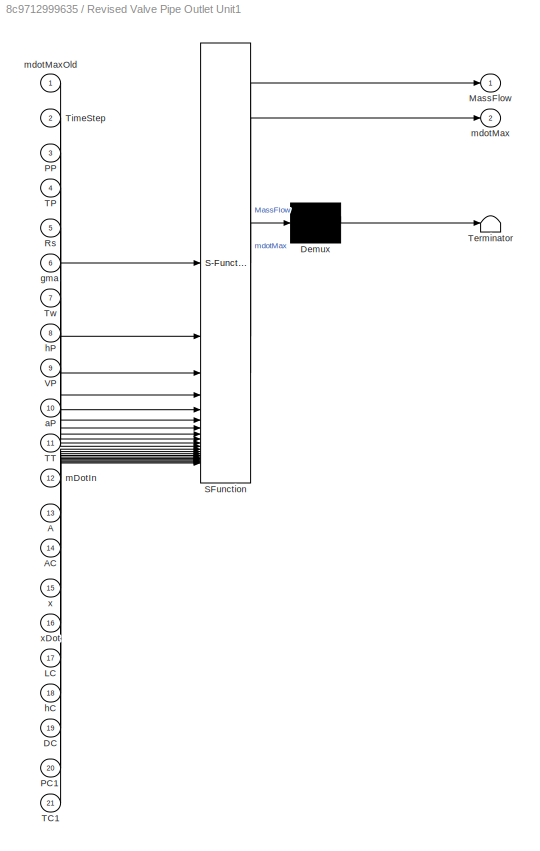
BLOCK [SubSystem] Revised Valve Pipe Outlet Unit1
  ErrorFcn = Stateflow.Translate.translate
  MinAlgLoopOccurrences = on
  PermitHierarchicalResolution = ExplicitOnly
  SFBlockType = MATLAB Function
BLOCK [Demux] Revised Valve Pipe Outlet Unit1/ Demux 
  Outputs = 1
BLOCK [S-Function] Revised Valve Pipe Outlet Unit1/ SFunction 
  EnableBusSupport = on
  FunctionName = sf_sfun
  PortCounts = [21 3]
  SFcnIsStateOwnerBlock = off
  SFunctionDeploymentMode = off
  Tag = Stateflow S-Function 42
BLOCK [Terminator] Revised Valve Pipe Outlet Unit1/ Terminator 
BLOCK [Inport] Revised Valve Pipe Outlet Unit1/A
  Port = 13
BLOCK [Inport] Revised Valve Pipe Outlet Unit1/AC
  Port = 14
BLOCK [Inport] Revised Valve Pipe Outlet Unit1/DC
  Port = 19
BLOCK [Inport] Revised Valve Pipe Outlet Unit1/LC
  Port = 17
BLOCK [Outport] Revised Valve Pipe Outlet Unit1/MassFlow
BLOCK [Inport] Revised Valve Pipe Outlet Unit1/PC1
  Port = 20
BLOCK [Inport] Revised Valve Pipe Outlet Unit1/PP
  Port = 3
BLOCK [Inport] Revised Valve Pipe Outlet Unit1/Rs
  Port = 5
BLOCK [Inport] Revised Valve Pipe Outlet Unit1/TC1
  Port = 21
BLOCK [Inport] Revised Valve Pipe Outlet Unit1/TP
  Port = 4
BLOCK [Inport] Revised Valve Pipe Outlet Unit1/TT
  Port = 11
BLOCK [Inport] Revised Valve Pipe Outlet Unit1/TimeStep
  Port = 2
BLOCK [Inport] Revised Valve Pipe Outlet Unit1/Tw
  Port = 7
BLOCK [Inport] Revised Valve Pipe Outlet Unit1/VP
  Port = 9
BLOCK [Inport] Revised Valve Pipe Outlet Unit1/aP
  Port = 10
BLOCK [Inport] Revised Valve Pipe Outlet Unit1/gma
  Port = 6
BLOCK [Inport] Revised Valve Pipe Outlet Unit1/hC
  Port = 18
BLOCK [Inport] Revised Valve Pipe Outlet Unit1/hP
  Port = 8
BLOCK [Inport] Revised Valve Pipe Outlet Unit1/mDotIn
  Port = 12
BLOCK [Outport] Revised Valve Pipe Outlet Unit1/mdotMax
  Port = 2
BLOCK [Inport] Revised Valve Pipe Outlet Unit1/mdotMaxOld
BLOCK [Inport] Revised Valve Pipe Outlet Unit1/x
  Port = 15
BLOCK [Inport] Revised Valve Pipe Outlet Unit1/xDot
  Port = 16
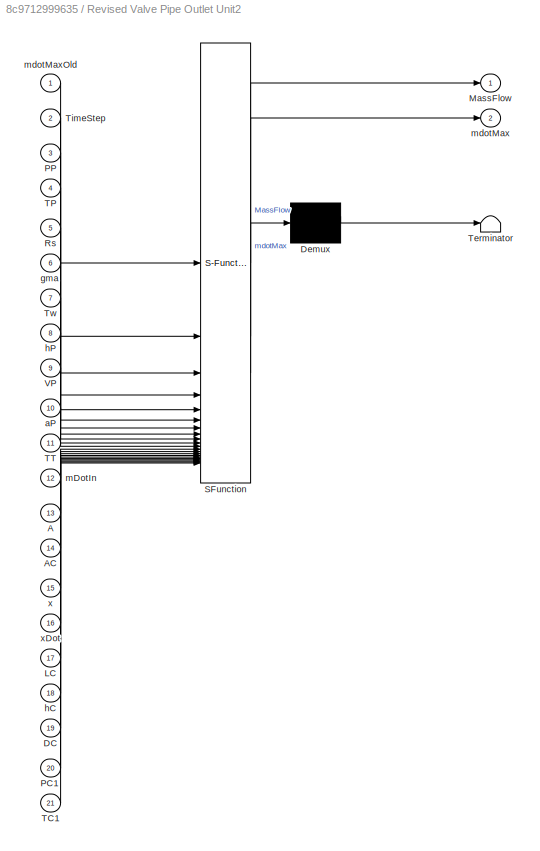
BLOCK [SubSystem] Revised Valve Pipe Outlet Unit2
  ErrorFcn = Stateflow.Translate.translate
  MinAlgLoopOccurrences = on
  PermitHierarchicalResolution = ExplicitOnly
  SFBlockType = MATLAB Function
BLOCK [Demux] Revised Valve Pipe Outlet Unit2/ Demux 
  Outputs = 1
BLOCK [S-Function] Revised Valve Pipe Outlet Unit2/ SFunction 
  EnableBusSupport = on
  FunctionName = sf_sfun
  PortCounts = [21 3]
  SFcnIsStateOwnerBlock = off
  SFunctionDeploymentMode = off
  Tag = Stateflow S-Function 39
BLOCK [Terminator] Revised Valve Pipe Outlet Unit2/ Terminator 
BLOCK [Inport] Revised Valve Pipe Outlet Unit2/A
  Port = 13
BLOCK [Inport] Revised Valve Pipe Outlet Unit2/AC
  Port = 14
BLOCK [Inport] Revised Valve Pipe Outlet Unit2/DC
  Port = 19
BLOCK [Inport] Revised Valve Pipe Outlet Unit2/LC
  Port = 17
BLOCK [Outport] Revised Valve Pipe Outlet Unit2/MassFlow
BLOCK [Inport] Revised Valve Pipe Outlet Unit2/PC1
  Port = 20
BLOCK [Inport] Revised Valve Pipe Outlet Unit2/PP
  Port = 3
BLOCK [Inport] Revised Valve Pipe Outlet Unit2/Rs
  Port = 5
BLOCK [Inport] Revised Valve Pipe Outlet Unit2/TC1
  Port = 21
BLOCK [Inport] Revised Valve Pipe Outlet Unit2/TP
  Port = 4
BLOCK [Inport] Revised Valve Pipe Outlet Unit2/TT
  Port = 11
BLOCK [Inport] Revised Valve Pipe Outlet Unit2/TimeStep
  Port = 2
BLOCK [Inport] Revised Valve Pipe Outlet Unit2/Tw
  Port = 7
BLOCK [Inport] Revised Valve Pipe Outlet Unit2/VP
  Port = 9
BLOCK [Inport] Revised Valve Pipe Outlet Unit2/aP
  Port = 10
BLOCK [Inport] Revised Valve Pipe Outlet Unit2/gma
  Port = 6
BLOCK [Inport] Revised Valve Pipe Outlet Unit2/hC
  Port = 18
BLOCK [Inport] Revised Valve Pipe Outlet Unit2/hP
  Port = 8
BLOCK [Inport] Revised Valve Pipe Outlet Unit2/mDotIn
  Port = 12
BLOCK [Outport] Revised Valve Pipe Outlet Unit2/mdotMax
  Port = 2
BLOCK [Inport] Revised Valve Pipe Outlet Unit2/mdotMaxOld
BLOCK [Inport] Revised Valve Pipe Outlet Unit2/x
  Port = 15
BLOCK [Inport] Revised Valve Pipe Outlet Unit2/xDot
  Port = 16
BLOCK [SubSystem] Revised Valve Tank Outlet Unit1
  ErrorFcn = Stateflow.Translate.translate
  MinAlgLoopOccurrences = on
  PermitHierarchicalResolution = ExplicitOnly
  SFBlockType = MATLAB Function
BLOCK [Demux] Revised Valve Tank Outlet Unit1/ Demux 
  Outputs = 1
BLOCK [S-Function] Revised Valve Tank Outlet Unit1/ SFunction 
  EnableBusSupport = on
  FunctionName = sf_sfun
  PortCounts = [18 3]
  SFcnIsStateOwnerBlock = off
  SFunctionDeploymentMode = off
  Tag = Stateflow S-Function 10
BLOCK [Terminator] Revised Valve Tank Outlet Unit1/ Terminator 
BLOCK [Inport] Revised Valve Tank Outlet Unit1/A
  Port = 13
BLOCK [Outport] Revised Valve Tank Outlet Unit1/MassFlow
BLOCK [Inport] Revised Valve Tank Outlet Unit1/PP
  Port = 17
BLOCK [Inport] Revised Valve Tank Outlet Unit1/PT
  Port = 3
BLOCK [Inport] Revised Valve Tank Outlet Unit1/Rs
  Port = 5
BLOCK [Inport] Revised Valve Tank Outlet Unit1/TC
  Port = 11
BLOCK [Inport] Revised Valve Tank Outlet Unit1/TP
  Port = 18
BLOCK [Inport] Revised Valve Tank Outlet Unit1/TT
  Port = 4
BLOCK [Inport] Revised Valve Tank Outlet Unit1/TimeStep
  Port = 2
BLOCK [Inport] Revised Valve Tank Outlet Unit1/Tw
  Port = 7
BLOCK [Inport] Revised Valve Tank Outlet Unit1/VP
  Port = 14
BLOCK [Inport] Revised Valve Tank Outlet Unit1/VT
  Port = 9
BLOCK [Inport] Revised Valve Tank Outlet Unit1/aP
  Port = 15
BLOCK [Inport] Revised Valve Tank Outlet Unit1/aT
  Port = 10
BLOCK [Inport] Revised Valve Tank Outlet Unit1/gma
  Port = 6
BLOCK [Inport] Revised Valve Tank Outlet Unit1/hP
  Port = 16
BLOCK [Inport] Revised Valve Tank Outlet Unit1/hT
  Port = 8
BLOCK [Inport] Revised Valve Tank Outlet Unit1/mDotIn
  Port = 12
BLOCK [Outport] Revised Valve Tank Outlet Unit1/mdotMax
  Port = 2
BLOCK [Inport] Revised Valve Tank Outlet Unit1/mdotMaxOld
BLOCK [SubSystem] Revised Valve Tank Outlet Unit2
  ErrorFcn = Stateflow.Translate.translate
  MinAlgLoopOccurrences = on
  PermitHierarchicalResolution = ExplicitOnly
  SFBlockType = MATLAB Function
BLOCK [Demux] Revised Valve Tank Outlet Unit2/ Demux 
  Outputs = 1
BLOCK [S-Function] Revised Valve Tank Outlet Unit2/ SFunction 
  EnableBusSupport = on
  FunctionName = sf_sfun
  PortCounts = [18 3]
  SFcnIsStateOwnerBlock = off
  SFunctionDeploymentMode = off
  Tag = Stateflow S-Function 15
BLOCK [Terminator] Revised Valve Tank Outlet Unit2/ Terminator 
BLOCK [Inport] Revised Valve Tank Outlet Unit2/A
  Port = 13
BLOCK [Outport] Revised Valve Tank Outlet Unit2/MassFlow
BLOCK [Inport] Revised Valve Tank Outlet Unit2/PP
  Port = 17
BLOCK [Inport] Revised Valve Tank Outlet Unit2/PT
  Port = 3
BLOCK [Inport] Revised Valve Tank Outlet Unit2/Rs
  Port = 5
BLOCK [Inport] Revised Valve Tank Outlet Unit2/TC
  Port = 11
BLOCK [Inport] Revised Valve Tank Outlet Unit2/TP
  Port = 18
BLOCK [Inport] Revised Valve Tank Outlet Unit2/TT
  Port = 4
BLOCK [Inport] Revised Valve Tank Outlet Unit2/TimeStep
  Port = 2
BLOCK [Inport] Revised Valve Tank Outlet Unit2/Tw
  Port = 7
BLOCK [Inport] Revised Valve Tank Outlet Unit2/VP
  Port = 14
BLOCK [Inport] Revised Valve Tank Outlet Unit2/VT
  Port = 9
BLOCK [Inport] Revised Valve Tank Outlet Unit2/aP
  Port = 15
BLOCK [Inport] Revised Valve Tank Outlet Unit2/aT
  Port = 10
BLOCK [Inport] Revised Valve Tank Outlet Unit2/gma
  Port = 6
BLOCK [Inport] Revised Valve Tank Outlet Unit2/hP
  Port = 16
BLOCK [Inport] Revised Valve Tank Outlet Unit2/hT
  Port = 8
BLOCK [Inport] Revised Valve Tank Outlet Unit2/mDotIn
  Port = 12
BLOCK [Outport] Revised Valve Tank Outlet Unit2/mdotMax
  Port = 2
BLOCK [Inport] Revised Valve Tank Outlet Unit2/mdotMaxOld
BLOCK [SubSystem] Revised Valve Tank Outlet2
  ErrorFcn = Stateflow.Translate.translate
  MinAlgLoopOccurrences = on
  PermitHierarchicalResolution = ExplicitOnly
  SFBlockType = MATLAB Function
BLOCK [Demux] Revised Valve Tank Outlet2/ Demux 
  Outputs = 1
BLOCK [S-Function] Revised Valve Tank Outlet2/ SFunction 
  EnableBusSupport = on
  FunctionName = sf_sfun
  PortCounts = [14 3]
  SFcnIsStateOwnerBlock = off
  SFunctionDeploymentMode = off
  Tag = Stateflow S-Function 31
BLOCK [Terminator] Revised Valve Tank Outlet2/ Terminator 
BLOCK [Inport] Revised Valve Tank Outlet2/A
  Port = 14
BLOCK [Outport] Revised Valve Tank Outlet2/MassFlow
BLOCK [Inport] Revised Valve Tank Outlet2/PT
  Port = 3
BLOCK [Inport] Revised Valve Tank Outlet2/Pcrack
  Port = 11
BLOCK [Inport] Revised Valve Tank Outlet2/Rs
  Port = 5
BLOCK [Inport] Revised Valve Tank Outlet2/TC
  Port = 12
BLOCK [Inport] Revised Valve Tank Outlet2/TT
  Port = 4
BLOCK [Inport] Revised Valve Tank Outlet2/TimeStep
  Port = 2
BLOCK [Inport] Revised Valve Tank Outlet2/Tw
  Port = 7
BLOCK [Inport] Revised Valve Tank Outlet2/VT
  Port = 9
BLOCK [Inport] Revised Valve Tank Outlet2/aT
  Port = 10
BLOCK [Inport] Revised Valve Tank Outlet2/gma
  Port = 6
BLOCK [Inport] Revised Valve Tank Outlet2/hT
  Port = 8
BLOCK [Inport] Revised Valve Tank Outlet2/mDotIn
  Port = 13
BLOCK [Outport] Revised Valve Tank Outlet2/mdotMax
  Port = 2
BLOCK [Inport] Revised Valve Tank Outlet2/mdotMaxOld
BLOCK [Saturate] Saturation
  LowerLimit = -AOE.Unit1.Cylinder.CoulombFrictionLimit
  UpperLimit = AOE.Unit1.Cylinder.CoulombFrictionLimit
BLOCK [Saturate] Saturation1
  LowerLimit = -AOE.Unit1.Cylinder.CoulombFrictionLimit
  UpperLimit = AOE.Unit1.Cylinder.CoulombFrictionLimit
BLOCK [Saturate] Saturation2
  LowerLimit = -AOE.Unit1.Cylinder.CoulombFrictionLimit
  UpperLimit = AOE.Unit1.Cylinder.CoulombFrictionLimit
BLOCK [Selector] Selector
  IndexOptions = Index vector (dialog)
  Indices = 3
  InputPortWidth = 6
  OutputSizes = 1
BLOCK [Selector] Selector1
  IndexOptions = Index vector (dialog)
  Indices = 3
  InputPortWidth = 6
  OutputSizes = 1
BLOCK [Selector] Selector2
  IndexOptions = Index vector (dialog)
  Indices = 3
  InputPortWidth = 6
  OutputSizes = 1
BLOCK [Selector] Selector3
  IndexOptions = Index vector (dialog)
  Indices = 3
  InputPortWidth = 6
  OutputSizes = 1
BLOCK [Selector] Selector4
  IndexOptions = Index vector (dialog)
  Indices = 3
  InputPortWidth = 6
  OutputSizes = 1
BLOCK [Selector] Selector5
  IndexOptions = Index vector (dialog)
  Indices = 3
  InputPortWidth = 6
  OutputSizes = 1
BLOCK [Reference] Spar  REF=WECSim_Lib_Body_Elements/Rigid Body
  AttributesFormatString = %<body>
  SourceBlock = WECSim_Lib_Body_Elements/Rigid Body
  SourceType = Rigid Body
BLOCK [Reference] Spar1  REF=WECSim_Lib_Body_Elements/Rigid Body
  AttributesFormatString = %<body>
  SourceBlock = WECSim_Lib_Body_Elements/Rigid Body
  SourceType = Rigid Body
BLOCK [Reference] Spar2  REF=WECSim_Lib_Body_Elements/Rigid Body
  AttributesFormatString = %<body>
  SourceBlock = WECSim_Lib_Body_Elements/Rigid Body
  SourceType = Rigid Body
BLOCK [Sum] Sum
  Inputs = +-
  NameLocation = right
BLOCK [Sum] Sum1
  IconShape = rectangular
  Inputs = -+
BLOCK [Sum] Sum10
  Inputs = +-
  NameLocation = right
BLOCK [Sum] Sum11
  IconShape = rectangular
  Inputs = -+
BLOCK [Sum] Sum12
  Inputs = -+
  NameLocation = left
BLOCK [Sum] Sum13
  Inputs = +|-
  NameLocation = right
BLOCK [Sum] Sum14
  IconShape = rectangular
  NameLocation = top
BLOCK [Sum] Sum15
  Inputs = +|-
  NameLocation = right
BLOCK [Sum] Sum16
  Inputs = +|-
  NameLocation = right
BLOCK [Sum] Sum2
  Inputs = -+
  NameLocation = left
BLOCK [Sum] Sum3
  Inputs = +|-
  NameLocation = right
BLOCK [Sum] Sum4
  Inputs = +-
  NameLocation = right
BLOCK [Sum] Sum5
  IconShape = rectangular
  Inputs = -+
BLOCK [Sum] Sum6
  IconShape = rectangular
  NameLocation = top
BLOCK [Sum] Sum7
  Inputs = -+
  NameLocation = left
BLOCK [Sum] Sum8
  Inputs = +|-
  NameLocation = right
BLOCK [Sum] Sum9
  IconShape = rectangular
  NameLocation = top
BLOCK [From] TPU1U1
  GotoTag = TP
BLOCK [Scope] Tank Air Mass Unit1
  Floating = off
  NameLocation = right
  NumInputPorts = 1
  ScopeSpecificationString = C++SS(StrPVP('Location','[1011, 775, 1461, 987]'),StrPVP('Open','off'),MxPVP('AxesTitles',54,'struct(''axes1'',''%<SignalLabel>'')'),MxPVP('ScopeGraphics',57,'struct(''FigureColor'',''[0.156862745098039 0.156862745098039 0.156862745098039]'',''AxesColor'',''[0 0 0]'',''AxesTickColor'',''[0.686274509803922 0.686274509803922 0.686274509803922]'',''LineColors'',''[1 1 0;1 0 1;0 1 1;1 0 0;0 1 0;0 0 1]...<+369ch>
BLOCK [Scope] Tank Air Mass Unit2
  Floating = off
  NameLocation = right
  NumInputPorts = 1
BLOCK [Scope] Tank Air Mass Unit3
  Floating = off
  NameLocation = right
  NumInputPorts = 1
BLOCK [Scope] Tank Air Mass change rate Unit1
  Floating = off
  NumInputPorts = 1
  ScopeSpecificationString = C++SS(StrPVP('Location','[30, 192, 770, 639]'),StrPVP('Open','off'),MxPVP('AxesTitles',54,'struct(''axes1'',''%<SignalLabel>'')'),MxPVP('ScopeGraphics',57,'struct(''FigureColor'',''[0.156862745098039 0.156862745098039 0.156862745098039]'',''AxesColor'',''[0 0 0]'',''AxesTickColor'',''[0.686274509803922 0.686274509803922 0.686274509803922]'',''LineColors'',''[1 1 0;1 0 1;0 1 1;1 0 0;0 1 0;0 0 1]'',...<+339ch>
BLOCK [Scope] Tank Air Mass change rate Unit2
  Floating = off
  NumInputPorts = 1
BLOCK [Scope] Tank Air Mass change rate Unit3
  Floating = off
  NumInputPorts = 1
BLOCK [Scope] Temp Chamber1 Unit1
  Floating = off
  NumInputPorts = 1
  ScopeSpecificationString = C++SS(StrPVP('Location','[69, 428, 500, 654]'),StrPVP('Open','off'),MxPVP('AxesTitles',54,'struct(''axes1'',''%<SignalLabel>'')'),MxPVP('ScopeGraphics',57,'struct(''FigureColor'',''[0.156862745098039 0.156862745098039 0.156862745098039]'',''AxesColor'',''[0 0 0]'',''AxesTickColor'',''[0.686274509803922 0.686274509803922 0.686274509803922]'',''LineColors'',''[1 1 0;1 0 1;0 1 1;1 0 0;0 1 0;0 0 1]'',...<+368ch>
BLOCK [Scope] Temp Chamber1 Unit2
  Floating = off
  NumInputPorts = 1
  ScopeSpecificationString = C++SS(StrPVP('Location','[560, 315, 1120, 735]'),StrPVP('Open','off'),MxPVP('AxesTitles',54,'struct(''axes1'',''%<SignalLabel>'')'),MxPVP('ScopeGraphics',57,'struct(''FigureColor'',''[0.156862745098039 0.156862745098039 0.156862745098039]'',''AxesColor'',''[0 0 0]'',''AxesTickColor'',''[0.686274509803922 0.686274509803922 0.686274509803922]'',''LineColors'',''[1 1 0;1 0 1;0 1 1;1 0 0;0 1 0;0 0 1]'...<+370ch>  <repeated x5 — deduplicated; at blocks: Temp Chamber1 Unit2, Temp Chamber1 Unit3, Temp Chamber2 Unit2, Temp Chamber2 Unit3, Temp Pipe U1U2>
BLOCK [Scope] Temp Chamber1 Unit3
  Floating = off
  NumInputPorts = 1
BLOCK [Scope] Temp Chamber2 Unit1
  Floating = off
  NumInputPorts = 1
  ScopeSpecificationString = C++SS(StrPVP('Location','[526, 400, 977, 658]'),StrPVP('Open','off'),MxPVP('AxesTitles',54,'struct(''axes1'',''%<SignalLabel>'')'),MxPVP('ScopeGraphics',57,'struct(''FigureColor'',''[0.156862745098039 0.156862745098039 0.156862745098039]'',''AxesColor'',''[0 0 0]'',''AxesTickColor'',''[0.686274509803922 0.686274509803922 0.686274509803922]'',''LineColors'',''[1 1 0;1 0 1;0 1 1;1 0 0;0 1 0;0 0 1]''...<+369ch>
BLOCK [Scope] Temp Chamber2 Unit2
  Floating = off
  NumInputPorts = 1
BLOCK [Scope] Temp Chamber2 Unit3
  Floating = off
  NumInputPorts = 1
BLOCK [Scope] Temp Pipe U1U2
  Floating = off
  NumInputPorts = 1
BLOCK [Scope] Temp Pipe U2U3
  Floating = off
  NumInputPorts = 1
  ScopeSpecificationString = C++SS(StrPVP('Location','[560, 315, 1120, 735]'),StrPVP('Open','off'),MxPVP('AxesTitles',54,'struct(''axes1'',''%<SignalLabel>'')'),MxPVP('ScopeGraphics',57,'struct(''FigureColor'',''[0.156862745098039 0.156862745098039 0.156862745098039]'',''AxesColor'',''[0 0 0]'',''AxesTickColor'',''[0.686274509803922 0.686274509803922 0.686274509803922]'',''LineColors'',''[1 1 0;1 0 1;0 1 1;1 0 0;0 1 0;0 0 1]'...<+372ch>  <repeated x3 — deduplicated; at blocks: Temp Pipe U2U3, joint F stop low Unit2, joint F stop low Unit3>
BLOCK [Scope] Temp Tank Unit1
  Floating = off
  NumInputPorts = 1
  ScopeSpecificationString = C++SS(StrPVP('Location','[1681, 83, 3601, 574]'),StrPVP('Open','off'),MxPVP('AxesTitles',54,'struct(''axes1'',''%<SignalLabel>'')'),MxPVP('ScopeGraphics',57,'struct(''FigureColor'',''[0.156862745098039 0.156862745098039 0.156862745098039]'',''AxesColor'',''[0 0 0]'',''AxesTickColor'',''[0.686274509803922 0.686274509803922 0.686274509803922]'',''LineColors'',''[1 1 0;1 0 1;0 1 1;1 0 0;0 1 0;0 0 1]'...<+369ch>
BLOCK [Scope] Temp Tank Unit2
  Floating = off
  NumInputPorts = 1
  ScopeSpecificationString = C++SS(StrPVP('Location','[560, 315, 1120, 735]'),StrPVP('Open','off'),MxPVP('AxesTitles',54,'struct(''axes1'',''%<SignalLabel>'')'),MxPVP('ScopeGraphics',57,'struct(''FigureColor'',''[0.156862745098039 0.156862745098039 0.156862745098039]'',''AxesColor'',''[0 0 0]'',''AxesTickColor'',''[0.686274509803922 0.686274509803922 0.686274509803922]'',''LineColors'',''[1 1 0;1 0 1;0 1 1;1 0 0;0 1 0;0 0 1]'...<+369ch>
BLOCK [Scope] Temp Tank Unit3
  Floating = off
  NumInputPorts = 1
  ScopeSpecificationString = C++SS(StrPVP('Location','[560, 315, 1120, 735]'),StrPVP('Open','off'),MxPVP('AxesTitles',54,'struct(''axes1'',''%<SignalLabel>'')'),MxPVP('ScopeGraphics',57,'struct(''FigureColor'',''[0.156862745098039 0.156862745098039 0.156862745098039]'',''AxesColor'',''[0 0 0]'',''AxesTickColor'',''[0.686274509803922 0.686274509803922 0.686274509803922]'',''LineColors'',''[1 1 0;1 0 1;0 1 1;1 0 0;0 1 0;0 0 1]'...<+369ch>
BLOCK [SubSystem] Temperature Chamber1 Box Unit1
  ErrorFcn = Stateflow.Translate.translate
  MinAlgLoopOccurrences = on
  PermitHierarchicalResolution = ExplicitOnly
  SFBlockType = MATLAB Function
  TreatAsAtomicUnit = on
BLOCK [Demux] Temperature Chamber1 Box Unit1/ Demux 
  Outputs = 1
BLOCK [S-Function] Temperature Chamber1 Box Unit1/ SFunction 
  EnableBusSupport = on
  FunctionName = sf_sfun
  PortCounts = [4 2]
  SFcnIsStateOwnerBlock = off
  SFunctionDeploymentMode = off
  Tag = Stateflow S-Function 2
BLOCK [Terminator] Temperature Chamber1 Box Unit1/ Terminator 
BLOCK [Inport] Temperature Chamber1 Box Unit1/P
BLOCK [Inport] Temperature Chamber1 Box Unit1/Rs
  Port = 2
BLOCK [Outport] Temperature Chamber1 Box Unit1/T
BLOCK [Inport] Temperature Chamber1 Box Unit1/V
  Port = 3
BLOCK [Inport] Temperature Chamber1 Box Unit1/m
  Port = 4
BLOCK [SubSystem] Temperature Chamber1 Box Unit2
  ErrorFcn = Stateflow.Translate.translate
  MinAlgLoopOccurrences = on
  PermitHierarchicalResolution = ExplicitOnly
  SFBlockType = MATLAB Function
  TreatAsAtomicUnit = on
BLOCK [Demux] Temperature Chamber1 Box Unit2/ Demux 
  Outputs = 1
BLOCK [S-Function] Temperature Chamber1 Box Unit2/ SFunction 
  EnableBusSupport = on
  FunctionName = sf_sfun
  PortCounts = [4 2]
  SFcnIsStateOwnerBlock = off
  SFunctionDeploymentMode = off
  Tag = Stateflow S-Function 20
BLOCK [Terminator] Temperature Chamber1 Box Unit2/ Terminator 
BLOCK [Inport] Temperature Chamber1 Box Unit2/P
BLOCK [Inport] Temperature Chamber1 Box Unit2/Rs
  Port = 2
BLOCK [Outport] Temperature Chamber1 Box Unit2/T
BLOCK [Inport] Temperature Chamber1 Box Unit2/V
  Port = 3
BLOCK [Inport] Temperature Chamber1 Box Unit2/m
  Port = 4
BLOCK [SubSystem] Temperature Chamber1 Box Unit3
  ErrorFcn = Stateflow.Translate.translate
  MinAlgLoopOccurrences = on
  PermitHierarchicalResolution = ExplicitOnly
  SFBlockType = MATLAB Function
  TreatAsAtomicUnit = on
BLOCK [Demux] Temperature Chamber1 Box Unit3/ Demux 
  Outputs = 1
BLOCK [S-Function] Temperature Chamber1 Box Unit3/ SFunction 
  EnableBusSupport = on
  FunctionName = sf_sfun
  PortCounts = [4 2]
  SFcnIsStateOwnerBlock = off
  SFunctionDeploymentMode = off
  Tag = Stateflow S-Function 32
BLOCK [Terminator] Temperature Chamber1 Box Unit3/ Terminator 
BLOCK [Inport] Temperature Chamber1 Box Unit3/P
BLOCK [Inport] Temperature Chamber1 Box Unit3/Rs
  Port = 2
BLOCK [Outport] Temperature Chamber1 Box Unit3/T
BLOCK [Inport] Temperature Chamber1 Box Unit3/V
  Port = 3
BLOCK [Inport] Temperature Chamber1 Box Unit3/m
  Port = 4
BLOCK [SubSystem] Temperature Chamber2 Box Unit1
  ErrorFcn = Stateflow.Translate.translate
  MinAlgLoopOccurrences = on
  PermitHierarchicalResolution = ExplicitOnly
  SFBlockType = MATLAB Function
BLOCK [Demux] Temperature Chamber2 Box Unit1/ Demux 
  Outputs = 1
BLOCK [S-Function] Temperature Chamber2 Box Unit1/ SFunction 
  EnableBusSupport = on
  FunctionName = sf_sfun
  PortCounts = [4 2]
  SFcnIsStateOwnerBlock = off
  SFunctionDeploymentMode = off
  Tag = Stateflow S-Function 4
BLOCK [Terminator] Temperature Chamber2 Box Unit1/ Terminator 
BLOCK [Inport] Temperature Chamber2 Box Unit1/P
BLOCK [Inport] Temperature Chamber2 Box Unit1/Rs
  Port = 2
BLOCK [Outport] Temperature Chamber2 Box Unit1/T
BLOCK [Inport] Temperature Chamber2 Box Unit1/V
  Port = 3
BLOCK [Inport] Temperature Chamber2 Box Unit1/m
  Port = 4
BLOCK [SubSystem] Temperature Chamber2 Box Unit2
  ErrorFcn = Stateflow.Translate.translate
  MinAlgLoopOccurrences = on
  PermitHierarchicalResolution = ExplicitOnly
  SFBlockType = MATLAB Function
BLOCK [Demux] Temperature Chamber2 Box Unit2/ Demux 
  Outputs = 1
BLOCK [S-Function] Temperature Chamber2 Box Unit2/ SFunction 
  EnableBusSupport = on
  FunctionName = sf_sfun
  PortCounts = [4 2]
  SFcnIsStateOwnerBlock = off
  SFunctionDeploymentMode = off
  Tag = Stateflow S-Function 21
BLOCK [Terminator] Temperature Chamber2 Box Unit2/ Terminator 
BLOCK [Inport] Temperature Chamber2 Box Unit2/P
BLOCK [Inport] Temperature Chamber2 Box Unit2/Rs
  Port = 2
BLOCK [Outport] Temperature Chamber2 Box Unit2/T
BLOCK [Inport] Temperature Chamber2 Box Unit2/V
  Port = 3
BLOCK [Inport] Temperature Chamber2 Box Unit2/m
  Port = 4
BLOCK [SubSystem] Temperature Chamber2 Box Unit3
  ErrorFcn = Stateflow.Translate.translate
  MinAlgLoopOccurrences = on
  PermitHierarchicalResolution = ExplicitOnly
  SFBlockType = MATLAB Function
BLOCK [Demux] Temperature Chamber2 Box Unit3/ Demux 
  Outputs = 1
BLOCK [S-Function] Temperature Chamber2 Box Unit3/ SFunction 
  EnableBusSupport = on
  FunctionName = sf_sfun
  PortCounts = [4 2]
  SFcnIsStateOwnerBlock = off
  SFunctionDeploymentMode = off
  Tag = Stateflow S-Function 33
BLOCK [Terminator] Temperature Chamber2 Box Unit3/ Terminator 
BLOCK [Inport] Temperature Chamber2 Box Unit3/P
BLOCK [Inport] Temperature Chamber2 Box Unit3/Rs
  Port = 2
BLOCK [Outport] Temperature Chamber2 Box Unit3/T
BLOCK [Inport] Temperature Chamber2 Box Unit3/V
  Port = 3
BLOCK [Inport] Temperature Chamber2 Box Unit3/m
  Port = 4
BLOCK [SubSystem] Temperature Pipe Unit1 to Unit1
  ErrorFcn = Stateflow.Translate.translate
  PermitHierarchicalResolution = ExplicitOnly
  SFBlockType = MATLAB Function
BLOCK [Demux] Temperature Pipe Unit1 to Unit1/ Demux 
  Outputs = 1
BLOCK [S-Function] Temperature Pipe Unit1 to Unit1/ SFunction 
  EnableBusSupport = on
  FunctionName = sf_sfun
  PortCounts = [4 2]
  SFcnIsStateOwnerBlock = off
  SFunctionDeploymentMode = off
  Tag = Stateflow S-Function 40
BLOCK [Terminator] Temperature Pipe Unit1 to Unit1/ Terminator 
BLOCK [Inport] Temperature Pipe Unit1 to Unit1/P
BLOCK [Inport] Temperature Pipe Unit1 to Unit1/Rs
  Port = 2
BLOCK [Outport] Temperature Pipe Unit1 to Unit1/T
BLOCK [Inport] Temperature Pipe Unit1 to Unit1/V
  Port = 3
BLOCK [Inport] Temperature Pipe Unit1 to Unit1/m
  Port = 4
BLOCK [SubSystem] Temperature Pipe Unit1 to Unit2
  ErrorFcn = Stateflow.Translate.translate
  PermitHierarchicalResolution = ExplicitOnly
  SFBlockType = MATLAB Function
BLOCK [Demux] Temperature Pipe Unit1 to Unit2/ Demux 
  Outputs = 1
BLOCK [S-Function] Temperature Pipe Unit1 to Unit2/ SFunction 
  EnableBusSupport = on
  FunctionName = sf_sfun
  PortCounts = [4 2]
  SFcnIsStateOwnerBlock = off
  SFunctionDeploymentMode = off
  Tag = Stateflow S-Function 43
BLOCK [Terminator] Temperature Pipe Unit1 to Unit2/ Terminator 
BLOCK [Inport] Temperature Pipe Unit1 to Unit2/P
BLOCK [Inport] Temperature Pipe Unit1 to Unit2/Rs
  Port = 2
BLOCK [Outport] Temperature Pipe Unit1 to Unit2/T
BLOCK [Inport] Temperature Pipe Unit1 to Unit2/V
  Port = 3
BLOCK [Inport] Temperature Pipe Unit1 to Unit2/m
  Port = 4
BLOCK [SubSystem] Temperature Tank Box Unit1
  ErrorFcn = Stateflow.Translate.translate
  PermitHierarchicalResolution = ExplicitOnly
  SFBlockType = MATLAB Function
BLOCK [Demux] Temperature Tank Box Unit1/ Demux 
  Outputs = 1
BLOCK [S-Function] Temperature Tank Box Unit1/ SFunction 
  EnableBusSupport = on
  FunctionName = sf_sfun
  PortCounts = [4 2]
  SFcnIsStateOwnerBlock = off
  SFunctionDeploymentMode = off
  Tag = Stateflow S-Function 6
BLOCK [Terminator] Temperature Tank Box Unit1/ Terminator 
BLOCK [Inport] Temperature Tank Box Unit1/P
BLOCK [Inport] Temperature Tank Box Unit1/Rs
  Port = 2
BLOCK [Outport] Temperature Tank Box Unit1/T
BLOCK [Inport] Temperature Tank Box Unit1/V
  Port = 3
BLOCK [Inport] Temperature Tank Box Unit1/m
  Port = 4
BLOCK [SubSystem] Temperature Tank Box Unit2
  ErrorFcn = Stateflow.Translate.translate
  PermitHierarchicalResolution = ExplicitOnly
  SFBlockType = MATLAB Function
BLOCK [Demux] Temperature Tank Box Unit2/ Demux 
  Outputs = 1
BLOCK [S-Function] Temperature Tank Box Unit2/ SFunction 
  EnableBusSupport = on
  FunctionName = sf_sfun
  PortCounts = [4 2]
  SFcnIsStateOwnerBlock = off
  SFunctionDeploymentMode = off
  Tag = Stateflow S-Function 22
BLOCK [Terminator] Temperature Tank Box Unit2/ Terminator 
BLOCK [Inport] Temperature Tank Box Unit2/P
BLOCK [Inport] Temperature Tank Box Unit2/Rs
  Port = 2
BLOCK [Outport] Temperature Tank Box Unit2/T
BLOCK [Inport] Temperature Tank Box Unit2/V
  Port = 3
BLOCK [Inport] Temperature Tank Box Unit2/m
  Port = 4
BLOCK [SubSystem] Temperature Tank Box Unit3
  ErrorFcn = Stateflow.Translate.translate
  PermitHierarchicalResolution = ExplicitOnly
  SFBlockType = MATLAB Function
BLOCK [Demux] Temperature Tank Box Unit3/ Demux 
  Outputs = 1
BLOCK [S-Function] Temperature Tank Box Unit3/ SFunction 
  EnableBusSupport = on
  FunctionName = sf_sfun
  PortCounts = [4 2]
  SFcnIsStateOwnerBlock = off
  SFunctionDeploymentMode = off
  Tag = Stateflow S-Function 34
BLOCK [Terminator] Temperature Tank Box Unit3/ Terminator 
BLOCK [Inport] Temperature Tank Box Unit3/P
BLOCK [Inport] Temperature Tank Box Unit3/Rs
  Port = 2
BLOCK [Outport] Temperature Tank Box Unit3/T
BLOCK [Inport] Temperature Tank Box Unit3/V
  Port = 3
BLOCK [Inport] Temperature Tank Box Unit3/m
  Port = 4
BLOCK [From] TimeStep1
  GotoTag = TimeStep
BLOCK [From] TimeStep10
  GotoTag = TimeStep
BLOCK [From] TimeStep11
  GotoTag = TimeStep
BLOCK [From] TimeStep2
  GotoTag = TimeStep
BLOCK [From] TimeStep3
  GotoTag = TimeStep
BLOCK [From] TimeStep4
  GotoTag = TimeStep
BLOCK [From] TimeStep5
  GotoTag = TimeStep
BLOCK [From] TimeStep6
  GotoTag = TimeStep
BLOCK [From] TimeStep7
  GotoTag = TimeStep
BLOCK [From] TimeStep8
  GotoTag = TimeStep
BLOCK [From] TimeStep9
  GotoTag = TimeStep
BLOCK [Scope] Total Reaction Force
  Floating = off
  NameLocation = right
  NumInputPorts = 1
  ScopeSpecificationString = Simulink.scopes.TimeScopeBlockCfg('CurrentConfiguration', extmgr.ConfigurationSet(extmgr.Configuration('Core','General UI',true),extmgr.Configuration('Core','Source UI',true),extmgr.Configuration('Sources','WiredSimulink',true,'DataLoggingVariableName','ScopeData1','DataLoggingSaveFormat','Array'),extmgr.Configuration('Visuals','Time Domain',true,'SerializedDisplays',{struct('MinYLimReal','-165359...<+1617ch>
BLOCK [Scope] Total Reaction Force1
  Floating = off
  NameLocation = right
  NumInputPorts = 1
  ScopeSpecificationString = Simulink.scopes.TimeScopeBlockCfg('CurrentConfiguration', extmgr.ConfigurationSet(extmgr.Configuration('Core','General UI',true),extmgr.Configuration('Core','Source UI',true),extmgr.Configuration('Sources','WiredSimulink',true,'DataLoggingVariableName','ScopeData3','DataLoggingSaveFormat','Array'),extmgr.Configuration('Visuals','Time Domain',true,'SerializedDisplays',{struct('MinYLimReal','-165359...<+1617ch>
BLOCK [Scope] Total Reaction Force2
  Floating = off
  NameLocation = right
  NumInputPorts = 1
  ScopeSpecificationString = Simulink.scopes.TimeScopeBlockCfg('CurrentConfiguration', extmgr.ConfigurationSet(extmgr.Configuration('Core','General UI',true),extmgr.Configuration('Core','Source UI',true),extmgr.Configuration('Sources','WiredSimulink',true,'DataLoggingVariableName','ScopeData1','DataLoggingSaveFormat','Array'),extmgr.Configuration('Visuals','Time Domain',true,'SerializedDisplays',{struct('MinYLimReal','-165359...<+1617ch>
BLOCK [Reference] Translational PTO Actuation Force  REF=WECSim_Lib_PTOs/Translational PTO
Actuation Force
  AttributesFormatString = %<pto>
  NameLocation = right
  SourceBlock = WECSim_Lib_PTOs/Translational PTO\nActuation Force
  SourceType = PTO
BLOCK [Reference] Translational PTO Actuation Force1  REF=WECSim_Lib_PTOs/Translational PTO
Actuation Force
  AttributesFormatString = %<pto>
  NameLocation = right
  SourceBlock = WECSim_Lib_PTOs/Translational PTO\nActuation Force
  SourceType = PTO
BLOCK [Reference] Translational PTO Actuation Force2  REF=WECSim_Lib_PTOs/Translational PTO
Actuation Force
  AttributesFormatString = %<pto>
  NameLocation = right
  SourceBlock = WECSim_Lib_PTOs/Translational PTO\nActuation Force
  SourceType = PTO
BLOCK [UnitDelay] Unit Delay
  HasFrameUpgradeWarning = on
  NameLocation = right
  SampleTime = -1
BLOCK [UnitDelay] Unit Delay1
  HasFrameUpgradeWarning = on
  SampleTime = -1
BLOCK [UnitDelay] Unit Delay10
  HasFrameUpgradeWarning = on
  NameLocation = right
  SampleTime = -1
BLOCK [UnitDelay] Unit Delay11
  HasFrameUpgradeWarning = on
  NameLocation = right
  SampleTime = -1
BLOCK [UnitDelay] Unit Delay12
  HasFrameUpgradeWarning = on
  NameLocation = right
  SampleTime = -1
BLOCK [UnitDelay] Unit Delay2
  HasFrameUpgradeWarning = on
  NameLocation = right
  SampleTime = -1
BLOCK [UnitDelay] Unit Delay3
  HasFrameUpgradeWarning = on
  NameLocation = right
  SampleTime = -1
BLOCK [UnitDelay] Unit Delay4
  HasFrameUpgradeWarning = on
  NameLocation = right
  SampleTime = -1
BLOCK [UnitDelay] Unit Delay5
  HasFrameUpgradeWarning = on
  NameLocation = right
  SampleTime = -1
BLOCK [UnitDelay] Unit Delay6
  HasFrameUpgradeWarning = on
  NameLocation = right
  SampleTime = -1
BLOCK [UnitDelay] Unit Delay7
  HasFrameUpgradeWarning = on
  NameLocation = right
  SampleTime = -1
BLOCK [UnitDelay] Unit Delay8
  HasFrameUpgradeWarning = on
  NameLocation = right
  SampleTime = -1
BLOCK [UnitDelay] Unit Delay9
  HasFrameUpgradeWarning = on
  NameLocation = right
  SampleTime = -1
BLOCK [Scope] Vol Chamber1 Unit1
  Floating = off
  NumInputPorts = 1
  ScopeSpecificationString = C++SS(StrPVP('Location','[550, 320, 1110, 740]'),StrPVP('Open','off'),MxPVP('AxesTitles',54,'struct(''axes1'',''%<SignalLabel>'')'),MxPVP('ScopeGraphics',57,'struct(''FigureColor'',''[0.156862745098039 0.156862745098039 0.156862745098039]'',''AxesColor'',''[0 0 0]'',''AxesTickColor'',''[0.686274509803922 0.686274509803922 0.686274509803922]'',''LineColors'',''[1 1 0;1 0 1;0 1 1;1 0 0;0 1 0;0 0 1]'...<+340ch>
BLOCK [Scope] Vol Chamber1 Unit2
  Floating = off
  NumInputPorts = 1
BLOCK [Scope] Vol Chamber1 Unit3
  Floating = off
  NumInputPorts = 1
BLOCK [Scope] Vol Chamber2 Unit1
  Floating = off
  NumInputPorts = 1
  ScopeSpecificationString = C++SS(StrPVP('Location','[560, 315, 1120, 735]'),StrPVP('Open','off'),MxPVP('AxesTitles',54,'struct(''axes1'',''%<SignalLabel>'')'),MxPVP('ScopeGraphics',57,'struct(''FigureColor'',''[0.156862745098039 0.156862745098039 0.156862745098039]'',''AxesColor'',''[0 0 0]'',''AxesTickColor'',''[0.686274509803922 0.686274509803922 0.686274509803922]'',''LineColors'',''[1 1 0;1 0 1;0 1 1;1 0 0;0 1 0;0 0 1]'...<+341ch>
BLOCK [Scope] Vol Chamber2 Unit2
  Floating = off
  NumInputPorts = 1
BLOCK [Scope] Vol Chamber2 Unit3
  Floating = off
  NumInputPorts = 1
BLOCK [SubSystem] Volume Chamber1 Box Unit1
  ErrorFcn = Stateflow.Translate.translate
  MinAlgLoopOccurrences = on
  PermitHierarchicalResolution = ExplicitOnly
  SFBlockType = MATLAB Function
  TreatAsAtomicUnit = on
BLOCK [Demux] Volume Chamber1 Box Unit1/ Demux 
  Outputs = 1
BLOCK [S-Function] Volume Chamber1 Box Unit1/ SFunction 
  EnableBusSupport = on
  FunctionName = sf_sfun
  PortCounts = [3 2]
  SFcnIsStateOwnerBlock = off
  SFunctionDeploymentMode = off
  Tag = Stateflow S-Function 7
BLOCK [Terminator] Volume Chamber1 Box Unit1/ Terminator 
BLOCK [Inport] Volume Chamber1 Box Unit1/A
  Port = 2
BLOCK [Inport] Volume Chamber1 Box Unit1/L
  Port = 3
BLOCK [Outport] Volume Chamber1 Box Unit1/V
BLOCK [Inport] Volume Chamber1 Box Unit1/x
BLOCK [SubSystem] Volume Chamber1 Box Unit2
  ErrorFcn = Stateflow.Translate.translate
  MinAlgLoopOccurrences = on
  PermitHierarchicalResolution = ExplicitOnly
  SFBlockType = MATLAB Function
  TreatAsAtomicUnit = on
BLOCK [Demux] Volume Chamber1 Box Unit2/ Demux 
  Outputs = 1
BLOCK [S-Function] Volume Chamber1 Box Unit2/ SFunction 
  EnableBusSupport = on
  FunctionName = sf_sfun
  PortCounts = [3 2]
  SFcnIsStateOwnerBlock = off
  SFunctionDeploymentMode = off
  Tag = Stateflow S-Function 23
BLOCK [Terminator] Volume Chamber1 Box Unit2/ Terminator 
BLOCK [Inport] Volume Chamber1 Box Unit2/A
  Port = 2
BLOCK [Inport] Volume Chamber1 Box Unit2/L
  Port = 3
BLOCK [Outport] Volume Chamber1 Box Unit2/V
BLOCK [Inport] Volume Chamber1 Box Unit2/x
BLOCK [SubSystem] Volume Chamber1 Box Unit3
  ErrorFcn = Stateflow.Translate.translate
  MinAlgLoopOccurrences = on
  PermitHierarchicalResolution = ExplicitOnly
  SFBlockType = MATLAB Function
  TreatAsAtomicUnit = on
BLOCK [Demux] Volume Chamber1 Box Unit3/ Demux 
  Outputs = 1
BLOCK [S-Function] Volume Chamber1 Box Unit3/ SFunction 
  EnableBusSupport = on
  FunctionName = sf_sfun
  PortCounts = [3 2]
  SFcnIsStateOwnerBlock = off
  SFunctionDeploymentMode = off
  Tag = Stateflow S-Function 35
BLOCK [Terminator] Volume Chamber1 Box Unit3/ Terminator 
BLOCK [Inport] Volume Chamber1 Box Unit3/A
  Port = 2
BLOCK [Inport] Volume Chamber1 Box Unit3/L
  Port = 3
BLOCK [Outport] Volume Chamber1 Box Unit3/V
BLOCK [Inport] Volume Chamber1 Box Unit3/x
BLOCK [SubSystem] Volume Chamber2 Box Unit1
  ErrorFcn = Stateflow.Translate.translate
  MinAlgLoopOccurrences = on
  PermitHierarchicalResolution = ExplicitOnly
  SFBlockType = MATLAB Function
  TreatAsAtomicUnit = on
BLOCK [Demux] Volume Chamber2 Box Unit1/ Demux 
  Outputs = 1
BLOCK [S-Function] Volume Chamber2 Box Unit1/ SFunction 
  EnableBusSupport = on
  FunctionName = sf_sfun
  PortCounts = [3 2]
  SFcnIsStateOwnerBlock = off
  SFunctionDeploymentMode = off
  Tag = Stateflow S-Function 8
BLOCK [Terminator] Volume Chamber2 Box Unit1/ Terminator 
BLOCK [Inport] Volume Chamber2 Box Unit1/A
  Port = 2
BLOCK [Inport] Volume Chamber2 Box Unit1/L
  Port = 3
BLOCK [Outport] Volume Chamber2 Box Unit1/V
BLOCK [Inport] Volume Chamber2 Box Unit1/x
BLOCK [SubSystem] Volume Chamber2 Box Unit2
  ErrorFcn = Stateflow.Translate.translate
  MinAlgLoopOccurrences = on
  PermitHierarchicalResolution = ExplicitOnly
  SFBlockType = MATLAB Function
  TreatAsAtomicUnit = on
BLOCK [Demux] Volume Chamber2 Box Unit2/ Demux 
  Outputs = 1
BLOCK [S-Function] Volume Chamber2 Box Unit2/ SFunction 
  EnableBusSupport = on
  FunctionName = sf_sfun
  PortCounts = [3 2]
  SFcnIsStateOwnerBlock = off
  SFunctionDeploymentMode = off
  Tag = Stateflow S-Function 24
BLOCK [Terminator] Volume Chamber2 Box Unit2/ Terminator 
BLOCK [Inport] Volume Chamber2 Box Unit2/A
  Port = 2
BLOCK [Inport] Volume Chamber2 Box Unit2/L
  Port = 3
BLOCK [Outport] Volume Chamber2 Box Unit2/V
BLOCK [Inport] Volume Chamber2 Box Unit2/x
BLOCK [SubSystem] Volume Chamber2 Box Unit3
  ErrorFcn = Stateflow.Translate.translate
  MinAlgLoopOccurrences = on
  PermitHierarchicalResolution = ExplicitOnly
  SFBlockType = MATLAB Function
  TreatAsAtomicUnit = on
BLOCK [Demux] Volume Chamber2 Box Unit3/ Demux 
  Outputs = 1
BLOCK [S-Function] Volume Chamber2 Box Unit3/ SFunction 
  EnableBusSupport = on
  FunctionName = sf_sfun
  PortCounts = [3 2]
  SFcnIsStateOwnerBlock = off
  SFunctionDeploymentMode = off
  Tag = Stateflow S-Function 36
BLOCK [Terminator] Volume Chamber2 Box Unit3/ Terminator 
BLOCK [Inport] Volume Chamber2 Box Unit3/A
  Port = 2
BLOCK [Inport] Volume Chamber2 Box Unit3/L
  Port = 3
BLOCK [Outport] Volume Chamber2 Box Unit3/V
BLOCK [Inport] Volume Chamber2 Box Unit3/x
BLOCK [Constant] cylinder equilibrium offset position1
  Value = AOE.Unit1.Chamber1.InitialPistonPosition
BLOCK [Constant] cylinder equilibrium offset position10
  Value = AOE.Unit2.Chamber1.InitialPistonPosition
BLOCK [Constant] cylinder equilibrium offset position11
  Value = AOE.Unit3.Chamber1.InitialPistonPosition
BLOCK [Constant] cylinder equilibrium offset position12
  Value = AOE.Unit2.Chamber2.InitialPistonPosition
BLOCK [Constant] cylinder equilibrium offset position13
  Value = AOE.Unit3.Chamber1.InitialPistonPosition
BLOCK [Constant] cylinder equilibrium offset position14
  Value = AOE.Unit3.Chamber2.InitialPistonPosition
BLOCK [Constant] cylinder equilibrium offset position15
  Value = AOE.Unit3.Chamber1.InitialPistonPosition
BLOCK [Constant] cylinder equilibrium offset position16
  Value = AOE.Unit3.Chamber1.InitialPistonPosition
BLOCK [Constant] cylinder equilibrium offset position18
  Value = AOE.Unit3.Chamber2.InitialPistonPosition
BLOCK [Constant] cylinder equilibrium offset position2
  Value = AOE.Unit1.Chamber2.InitialPistonPosition
BLOCK [Constant] cylinder equilibrium offset position20
  Value = AOE.Unit2.Chamber1.InitialPistonPosition
BLOCK [Constant] cylinder equilibrium offset position3
  Value = AOE.Unit1.Chamber1.InitialPistonPosition
BLOCK [Constant] cylinder equilibrium offset position4
  Value = AOE.Unit1.Chamber1.InitialPistonPosition
BLOCK [Constant] cylinder equilibrium offset position5
  Value = AOE.Unit1.Chamber1.InitialPistonPosition
BLOCK [Constant] cylinder equilibrium offset position6
  Value = AOE.Unit1.Chamber2.InitialPistonPosition
BLOCK [Constant] cylinder equilibrium offset position7
  Value = AOE.Unit2.Chamber1.InitialPistonPosition
BLOCK [Constant] cylinder equilibrium offset position8
  Value = AOE.Unit2.Chamber2.InitialPistonPosition
BLOCK [Constant] cylinder equilibrium offset position9
  Value = AOE.Unit2.Chamber1.InitialPistonPosition
BLOCK [Constant] cylinder total Length
  NameLocation = top
  Value = AOE.Unit1.Cylinder.Length
BLOCK [Constant] cylinder total Length1
  NameLocation = top
  Value = AOE.Unit2.Cylinder.Length
BLOCK [Constant] cylinder total Length2
  NameLocation = top
  Value = AOE.Unit3.Cylinder.Length
BLOCK [Constant] cylinder total Length3
  NameLocation = top
  Value = AOE.Unit1.Cylinder.InitialOffset
BLOCK [Constant] cylinder total Length4
  NameLocation = top
  Value = AOE.Unit1.Cylinder.InitialOffset
BLOCK [Constant] cylinder total Length5
  NameLocation = top
  Value = AOE.Unit1.Cylinder.InitialOffset
BLOCK [Scope] joint F stop high Unit1
  Floating = off
  NameLocation = top
  NumInputPorts = 1
  ScopeSpecificationString = Simulink.scopes.TimeScopeBlockCfg('CurrentConfiguration', extmgr.ConfigurationSet(extmgr.Configuration('Core','General UI',true,'FigureColor',[0.156862745098039 0.156862745098039 0.156862745098039]),extmgr.Configuration('Core','Source UI',true),extmgr.Configuration('Sources','WiredSimulink',true,'DataLogging',true,'DataLoggingVariableName','Fstop_High_U1','DataLoggingSaveFormat','Array','DataLoggi...<+2916ch>
BLOCK [Scope] joint F stop high Unit2
  Floating = off
  NameLocation = top
  NumInputPorts = 1
  ScopeSpecificationString = C++SS(StrPVP('Location','[560, 315, 1120, 735]'),StrPVP('Open','off'),MxPVP('AxesTitles',54,'struct(''axes1'',''%<SignalLabel>'')'),MxPVP('ScopeGraphics',57,'struct(''FigureColor'',''[0.156862745098039 0.156862745098039 0.156862745098039]'',''AxesColor'',''[0 0 0]'',''AxesTickColor'',''[0.686274509803922 0.686274509803922 0.686274509803922]'',''LineColors'',''[1 1 0;1 0 1;0 1 1;1 0 0;0 1 0;0 0 1]'...<+373ch>
BLOCK [Scope] joint F stop high Unit3
  Floating = off
  NameLocation = top
  NumInputPorts = 1
  ScopeSpecificationString = C++SS(StrPVP('Location','[560, 315, 1120, 735]'),StrPVP('Open','off'),MxPVP('AxesTitles',54,'struct(''axes1'',''%<SignalLabel>'')'),MxPVP('ScopeGraphics',57,'struct(''FigureColor'',''[0.156862745098039 0.156862745098039 0.156862745098039]'',''AxesColor'',''[0 0 0]'',''AxesTickColor'',''[0.686274509803922 0.686274509803922 0.686274509803922]'',''LineColors'',''[1 1 0;1 0 1;0 1 1;1 0 0;0 1 0;0 0 1]'...<+373ch>
BLOCK [Scope] joint F stop low Unit1
  Floating = off
  NameLocation = top
  NumInputPorts = 1
  ScopeSpecificationString = Simulink.scopes.TimeScopeBlockCfg('CurrentConfiguration', extmgr.ConfigurationSet(extmgr.Configuration('Core','General UI',true,'FigureColor',[0.156862745098039 0.156862745098039 0.156862745098039]),extmgr.Configuration('Core','Source UI',true),extmgr.Configuration('Sources','WiredSimulink',true,'DataLogging',true,'DataLoggingVariableName','Fstop_Low_U1','DataLoggingSaveFormat','Array','DataLoggin...<+2877ch>
BLOCK [Scope] joint F stop low Unit2
  Floating = off
  NameLocation = top
  NumInputPorts = 1
BLOCK [Scope] joint F stop low Unit3
  Floating = off
  NameLocation = top
  NumInputPorts = 1
BLOCK [Scope] joint position1
  Floating = off
  NameLocation = left
  NumInputPorts = 1
  ScopeSpecificationString = C++SS(StrPVP('Location','[1060, 309, 1620, 729]'),StrPVP('Open','off'),MxPVP('AxesTitles',54,'struct(''axes1'',''%<SignalLabel>'')'),MxPVP('ScopeGraphics',57,'struct(''FigureColor'',''[0.156862745098039 0.156862745098039 0.156862745098039]'',''AxesColor'',''[0 0 0]'',''AxesTickColor'',''[0.686274509803922 0.686274509803922 0.686274509803922]'',''LineColors'',''[1 1 0;1 0 1;0 1 1;1 0 0;0 1 0;0 0 1]...<+338ch>
BLOCK [Scope] joint position2
  Floating = off
  NameLocation = left
  NumInputPorts = 1
BLOCK [Scope] joint position3
  Floating = off
  NameLocation = left
  NumInputPorts = 1
BLOCK [Scope] mdot Chamber1Chamber2 Unit1
  Floating = off
  NumInputPorts = 1
  ScopeSpecificationString = C++SS(StrPVP('Location','[835, 336, 1325, 605]'),StrPVP('Open','off'),MxPVP('AxesTitles',54,'struct(''axes1'',''%<SignalLabel>'')'),MxPVP('ScopeGraphics',57,'struct(''FigureColor'',''[0.156862745098039 0.156862745098039 0.156862745098039]'',''AxesColor'',''[0 0 0]'',''AxesTickColor'',''[0.686274509803922 0.686274509803922 0.686274509803922]'',''LineColors'',''[1 1 0;1 0 1;0 1 1;1 0 0;0 1 0;0 0 1]'...<+372ch>
BLOCK [Scope] mdot Chamber1Chamber2 Unit2
  Floating = off
  NumInputPorts = 1
  ScopeSpecificationString = C++SS(StrPVP('Location','[835, 336, 1325, 605]'),StrPVP('Open','off'),MxPVP('AxesTitles',54,'struct(''axes1'',''%<SignalLabel>'')'),MxPVP('ScopeGraphics',57,'struct(''FigureColor'',''[0.156862745098039 0.156862745098039 0.156862745098039]'',''AxesColor'',''[0 0 0]'',''AxesTickColor'',''[0.686274509803922 0.686274509803922 0.686274509803922]'',''LineColors'',''[1 1 0;1 0 1;0 1 1;1 0 0;0 1 0;0 0 1]'...<+373ch>
BLOCK [Scope] mdot Chamber1Chamber2 Unit3
  Floating = off
  NumInputPorts = 1
  ScopeSpecificationString = C++SS(StrPVP('Location','[835, 336, 1325, 605]'),StrPVP('Open','off'),MxPVP('AxesTitles',54,'struct(''axes1'',''%<SignalLabel>'')'),MxPVP('ScopeGraphics',57,'struct(''FigureColor'',''[0.156862745098039 0.156862745098039 0.156862745098039]'',''AxesColor'',''[0 0 0]'',''AxesTickColor'',''[0.686274509803922 0.686274509803922 0.686274509803922]'',''LineColors'',''[1 1 0;1 0 1;0 1 1;1 0 0;0 1 0;0 0 1]'...<+373ch>
BLOCK [Scope] mdot Cylinder Unit1
  Floating = off
  NumInputPorts = 1
  ScopeSpecificationString = C++SS(StrPVP('Location','[63, 133, 664, 551]'),StrPVP('Open','off'),MxPVP('AxesTitles',54,'struct(''axes1'',''%<SignalLabel>'')'),MxPVP('ScopeGraphics',57,'struct(''FigureColor'',''[0.156862745098039 0.156862745098039 0.156862745098039]'',''AxesColor'',''[0 0 0]'',''AxesTickColor'',''[0.686274509803922 0.686274509803922 0.686274509803922]'',''LineColors'',''[1 1 0;1 0 1;0 1 1;1 0 0;0 1 0;0 0 1]'',...<+369ch>
BLOCK [Scope] mdot Cylinder Unit2
  Floating = off
  NumInputPorts = 1
  ScopeSpecificationString = C++SS(StrPVP('Location','[63, 133, 664, 551]'),StrPVP('Open','off'),MxPVP('AxesTitles',54,'struct(''axes1'',''%<SignalLabel>'')'),MxPVP('ScopeGraphics',57,'struct(''FigureColor'',''[0.156862745098039 0.156862745098039 0.156862745098039]'',''AxesColor'',''[0 0 0]'',''AxesTickColor'',''[0.686274509803922 0.686274509803922 0.686274509803922]'',''LineColors'',''[1 1 0;1 0 1;0 1 1;1 0 0;0 1 0;0 0 1]'',...<+368ch>
BLOCK [Scope] mdot Cylinder Unit3
  Floating = off
  NumInputPorts = 1
  ScopeSpecificationString = C++SS(StrPVP('Location','[63, 133, 664, 551]'),StrPVP('Open','off'),MxPVP('AxesTitles',54,'struct(''axes1'',''%<SignalLabel>'')'),MxPVP('ScopeGraphics',57,'struct(''FigureColor'',''[0.156862745098039 0.156862745098039 0.156862745098039]'',''AxesColor'',''[0 0 0]'',''AxesTickColor'',''[0.686274509803922 0.686274509803922 0.686274509803922]'',''LineColors'',''[1 1 0;1 0 1;0 1 1;1 0 0;0 1 0;0 0 1]'',...<+370ch>
BLOCK [Scope] mdot Inlet Unit1
  Floating = off
  NumInputPorts = 1
  ScopeSpecificationString = C++SS(StrPVP('Location','[768, 244, 1372, 741]'),StrPVP('Open','off'),MxPVP('AxesTitles',54,'struct(''axes1'',''%<SignalLabel>'')'),MxPVP('ScopeGraphics',57,'struct(''FigureColor'',''[0.156862745098039 0.156862745098039 0.156862745098039]'',''AxesColor'',''[0 0 0]'',''AxesTickColor'',''[0.686274509803922 0.686274509803922 0.686274509803922]'',''LineColors'',''[1 1 0;1 0 1;0 1 1;1 0 0;0 1 0;0 0 1]'...<+373ch>
BLOCK [Scope] mdot Max Chamber1Chamber2 Unit1
  Floating = off
  NumInputPorts = 1
  ScopeSpecificationString = C++SS(StrPVP('Location','[835, 336, 1325, 605]'),StrPVP('Open','off'),MxPVP('AxesTitles',54,'struct(''axes1'',''%<SignalLabel>'')'),MxPVP('ScopeGraphics',57,'struct(''FigureColor'',''[0.156862745098039 0.156862745098039 0.156862745098039]'',''AxesColor'',''[0 0 0]'',''AxesTickColor'',''[0.686274509803922 0.686274509803922 0.686274509803922]'',''LineColors'',''[1 1 0;1 0 1;0 1 1;1 0 0;0 1 0;0 0 1]'...<+340ch>
BLOCK [Scope] mdot Max Chamber1Chamber2 Unit2
  Floating = off
  NumInputPorts = 1
BLOCK [Scope] mdot Max Chamber1Chamber2 Unit3
  Floating = off
  NumInputPorts = 1
BLOCK [Scope] mdot Max Cylinder Unit1
  Floating = off
  NumInputPorts = 1
BLOCK [Scope] mdot Max Cylinder Unit2
  Floating = off
  NumInputPorts = 1
BLOCK [Scope] mdot Max Cylinder Unit3
  Floating = off
  NumInputPorts = 1
BLOCK [Scope] mdot max Inlet Unit1
  Floating = off
  NumInputPorts = 1
  ScopeSpecificationString = C++SS(StrPVP('Location','[44, 177, 648, 674]'),StrPVP('Open','off'),MxPVP('AxesTitles',54,'struct(''axes1'',''%<SignalLabel>'')'),MxPVP('ScopeGraphics',57,'struct(''FigureColor'',''[0.156862745098039 0.156862745098039 0.156862745098039]'',''AxesColor'',''[0 0 0]'',''AxesTickColor'',''[0.686274509803922 0.686274509803922 0.686274509803922]'',''LineColors'',''[1 1 0;1 0 1;0 1 1;1 0 0;0 1 0;0 0 1]'',...<+338ch>
BLOCK [Constant] override3
  Value = AOE.Unit3.OutletTankCheckValve.CrackPressure
BLOCK [Scope] piston position Unit1
  Floating = off
  NameLocation = left
  NumInputPorts = 1
  ScopeSpecificationString = Simulink.scopes.TimeScopeBlockCfg('CurrentConfiguration', extmgr.ConfigurationSet(extmgr.Configuration('Core','General UI',true,'FigureColor',[0.156862745098039 0.156862745098039 0.156862745098039]),extmgr.Configuration('Core','Source UI',true),extmgr.Configuration('Sources','WiredSimulink',true,'DataLogging',true,'DataLoggingVariableName','x_U1','DataLoggingSaveFormat','Array','DataLoggingDecimat...<+2855ch>
BLOCK [Scope] piston position Unit2
  Floating = off
  NameLocation = left
  NumInputPorts = 1
  ScopeSpecificationString = Simulink.scopes.TimeScopeBlockCfg('CurrentConfiguration', extmgr.ConfigurationSet(extmgr.Configuration('Core','General UI',true,'FigureColor',[0.156862745098039 0.156862745098039 0.156862745098039]),extmgr.Configuration('Core','Source UI',true),extmgr.Configuration('Sources','WiredSimulink',true,'DataLogging',true,'DataLoggingVariableName','x_U2','DataLoggingSaveFormat','Array','DataLoggingDecimat...<+2726ch>
BLOCK [Scope] piston position Unit3
  Floating = off
  NameLocation = left
  NumInputPorts = 1
  ScopeSpecificationString = Simulink.scopes.TimeScopeBlockCfg('CurrentConfiguration', extmgr.ConfigurationSet(extmgr.Configuration('Core','General UI',true,'FigureColor',[0.156862745098039 0.156862745098039 0.156862745098039]),extmgr.Configuration('Core','Source UI',true),extmgr.Configuration('Sources','WiredSimulink',true,'DataLogging',true,'DataLoggingVariableName','x_U3','DataLoggingSaveFormat','Array','DataLoggingDecimat...<+2720ch>
BLOCK [Scope] piston velocity Unit2
  Floating = off
  NameLocation = left
  NumInputPorts = 1
  ScopeSpecificationString = Simulink.scopes.TimeScopeBlockCfg('CurrentConfiguration', extmgr.ConfigurationSet(extmgr.Configuration('Core','General UI',true,'FigureColor',[0.156862745098039 0.156862745098039 0.156862745098039]),extmgr.Configuration('Core','Source UI',true),extmgr.Configuration('Sources','WiredSimulink',true,'DataLogging',true,'DataLoggingVariableName','xDot_U2','DataLoggingSaveFormat','Array','DataLoggingDeci...<+2726ch>
BLOCK [Scope] piston velocity Unit3
  Floating = off
  NameLocation = left
  NumInputPorts = 1
  ScopeSpecificationString = Simulink.scopes.TimeScopeBlockCfg('CurrentConfiguration', extmgr.ConfigurationSet(extmgr.Configuration('Core','General UI',true,'FigureColor',[0.156862745098039 0.156862745098039 0.156862745098039]),extmgr.Configuration('Core','Source UI',true),extmgr.Configuration('Sources','WiredSimulink',true,'DataLogging',true,'DataLoggingVariableName','xDot_U3','DataLoggingSaveFormat','Array','DataLoggingDeci...<+2734ch>
BLOCK [Scope] piston velocity Unit4
  Floating = off
  NameLocation = left
  NumInputPorts = 1
  ScopeSpecificationString = Simulink.scopes.TimeScopeBlockCfg('CurrentConfiguration', extmgr.ConfigurationSet(extmgr.Configuration('Core','General UI',true,'FigureColor',[0.156862745098039 0.156862745098039 0.156862745098039]),extmgr.Configuration('Core','Source UI',true),extmgr.Configuration('Sources','WiredSimulink',true,'DataLoggingVariableName','ScopeData2','DataLoggingSaveFormat','Array','DataLoggingDecimation','1','Dat...<+2856ch>
BLOCK [Constant] tempAmb1
  Value = AOE.AtmTemperature
BLOCK [Constant] tempAmb2
  Value = AOE.AtmTemperature
BLOCK [Constant] tempAmb3
  Value = AOE.AtmTemperature
BLOCK [Constant] tempAmb4
  Value = AOE.AtmTemperature
ANNOTATION (root): Inlet Piston valve
ANNOTATION (root): Outlet Piston Chamber 1 Valve
ANNOTATION (root): Outlet Piston Valve
ANNOTATION (root): Outlet Tank Valve
ANNOTATION (root): Useful Power
LINE Add10:1 -> Pressure Difference Tank Unit2:1
LINE Add11:1 -> Pressure Difference Chamb. 1 Unit2:1
NET Add12:1 -> Gain11:1, Total Reaction Force1:1
NET Add13:1 -> Goto x Unit1:1, Pressure Chamber1 Box Unit1:4, Pressure Chamber2 Box Unit1:4, Revised Valve Model Chamber1Chamber2 Unit1:4, Sum6:2, Volume Chamber1 Box Unit1:1, Volume Chamber2 Box Unit1:1, piston position Unit1:1
NET Add14:1 -> Goto x Unit2:1, Pressure Chamber1 Box Unit2:4, Pressure Chamber2 Box Unit2:4, Revised Valve Model Chamber1Chamber2 Unit2:4, Sum9:2, Volume Chamber1 Box Unit2:1, Volume Chamber2 Box Unit2:1, piston position Unit2:1
NET Add15:1 -> Goto x Unit3:1, Pressure Chamber1 Box Unit3:4, Pressure Chamber2 Box Unit3:4, Revised Valve Model Chamber1Chamber2 Unit3:4, Sum14:2, Volume Chamber1 Box Unit3:1, Volume Chamber2 Box Unit3:1, piston position Unit3:1
LINE Add16:1 -> Pressure Difference Cyl. Unit3:1
LINE Add17:1 -> Pressure Difference Tank Unit3:1
LINE Add18:1 -> Pressure Difference Chamb. 1 Unit3:1
NET Add19:1 -> Gain13:1, Total Reaction Force2:1
LINE Add1:1 -> Goto TimeStep:1
LINE Add2:1 -> Pressure Difference Cyl. Unit1:1
LINE Add3:1 -> Pressure Difference Tank Unit1:1
LINE Add4:1 -> Pressure Difference Pipe U2U3:1
LINE Add5:1 -> Pressure Difference Pipe Unit1:1
LINE Add6:1 -> Pressure Difference Cyl. Unit2:1
LINE Add7:1 -> Pressure Difference Chamb. 1 Unit1:1
NET Add8:1 -> Gain8:1, Total Reaction Force:1
LINE Add9:1 -> Pressure Difference Inlet Unit1:1
NET Atmospheric pressure1:1 -> Add9:2, Revised Valve Model Inlet Unit1:16
LINE Atmospheric pressure2:1 -> Determining Useful Energy:8
LINE Atmospheric pressure3:1 -> Determining Useful Energy1:8
LINE Atmospheric pressure4:1 -> Determining Useful Energy2:8
LINE Bus Selector1:1 -> Gain10:1
LINE Bus Selector1:2 -> Gain9:1
LINE Bus Selector2:1 -> Gain12:1
LINE Bus Selector2:2 -> Gain14:1
LINE Bus Selector:1 -> Gain7:1
LINE Bus Selector:2 -> Gain6:1
LINE Clock1:1 -> Unit Delay1:1
LINE Clock:1 -> Add1:1
LINE Constant100:1 -> Revised Valve Model Piston Outlet Unit2:8
LINE Constant101:1 -> Revised Valve Model Piston Outlet Unit2:12
LINE Constant102:1 -> Revised Valve Model Piston Outlet Unit2:14
LINE Constant103:1 -> Revised Valve Model Piston Outlet Unit2:15
LINE Constant104:1 -> Revised Valve Model Piston Outlet Unit2:16
LINE Constant105:1 -> Revised Valve Tank Outlet Unit1:15
LINE Constant106:1 -> Revised Valve Tank Outlet Unit2:7
LINE Constant107:1 -> Revised Valve Tank Outlet Unit2:8
LINE Constant108:1 -> Revised Valve Tank Outlet Unit2:10
LINE Constant109:1 -> Pressure Chamber1 Box Unit2:12
LINE Constant10:1 -> Revised Valve Model Piston Outlet Unit2:13
LINE Constant110:1 -> Revised Valve Tank Outlet Unit2:9
LINE Constant111:1 -> Revised Valve Tank Outlet Unit1:16
LINE Constant112:1 -> Discrete-Time Integrator4:2
LINE Constant113:1 -> Revised Valve Tank Outlet Unit2:15
LINE Constant114:1 -> Determining Useful Energy:6
LINE Constant115:1 -> Determining Useful Energy:5
LINE Constant116:1 -> Revised Valve Model Piston Outlet Unit2:19
LINE Constant117:1 -> Revised Valve Model Chamber1Chamber2 Unit2:16
LINE Constant118:1 -> Pressure Chamber1 Box Unit2:9
LINE Constant119:1 -> Pressure Chamber1 Box Unit2:13
LINE Constant11:1 -> Pressure Chamber2 Box Unit2:8
LINE Constant120:1 -> Discrete-Time Integrator7:2
LINE Constant121:1 -> Revised Valve Model Chamber1Chamber2 Unit3:13
LINE Constant122:1 -> Revised Valve Model Piston Outlet Unit3:13
LINE Constant123:1 -> Pressure Chamber2 Box Unit3:8
LINE Constant124:1 -> Pressure Chamber2 Box Unit3:10
LINE Constant125:1 -> Discrete-Time Integrator19:2
LINE Constant126:1 -> Discrete-Time Integrator14:2
LINE Constant127:1 -> Discrete-Time Integrator18:2
LINE Constant128:1 -> Revised Valve Tank Outlet2:14
LINE Constant129:1 -> Revised Valve Tank Outlet2:5
LINE Constant12:1 -> Pressure Chamber2 Box Unit2:10
LINE Constant130:1 -> Revised Valve Tank Outlet2:6
LINE Constant131:1 -> Pressure Chamber2 Box Unit3:14
LINE Constant132:1 -> Discrete-Time Integrator16:2
LINE Constant133:1 -> Pressure Chamber2 Box Unit3:13
LINE Constant134:1 -> Pressure Chamber2 Box Unit3:11
LINE Constant135:1 -> Pressure Chamber2 Box Unit3:12
LINE Constant136:1 -> Pressure Chamber2 Box Unit3:9
LINE Constant137:1 -> Temperature Chamber1 Box Unit3:2
LINE Constant138:1 -> Pressure Tank Box Unit3:5
LINE Constant139:1 -> Pressure Tank Box Unit3:6
LINE Constant13:1 -> Discrete-Time Integrator9:2
LINE Constant140:1 -> Pressure Tank Box Unit3:7
LINE Constant141:1 -> Discrete-Time Integrator15:2
LINE Constant142:1 -> Pressure Tank Box Unit3:8
LINE Constant143:1 -> Temperature Tank Box Unit3:2
LINE Constant144:1 -> Product4:1
LINE Constant145:1 -> Pressure Chamber1 Box Unit3:14
LINE Constant146:1 -> Pressure Tank Box Unit3:10
LINE Constant147:1 -> Revised Valve Model Chamber1Chamber2 Unit3:10
LINE Constant148:1 -> Temperature Chamber2 Box Unit3:2
LINE Constant149:1 -> Revised Valve Model Chamber1Chamber2 Unit3:11
LINE Constant14:1 -> Revised Valve Model:13
LINE Constant150:1 -> Revised Valve Model Chamber1Chamber2 Unit3:8
LINE Constant151:1 -> Revised Valve Model Chamber1Chamber2 Unit3:12
LINE Constant152:1 -> Revised Valve Model Piston Outlet Unit3:10
LINE Constant153:1 -> Sum14:1
LINE Constant154:1 -> Volume Chamber1 Box Unit3:2
LINE Constant155:1 -> Revised Valve Model Piston Outlet Unit3:11
LINE Constant156:1 -> Temperature Tank Box Unit3:3
LINE Constant157:1 -> Volume Chamber2 Box Unit3:2
LINE Constant158:1 -> Pressure Chamber1 Box Unit3:11
LINE Constant159:1 -> Pressure Tank Box Unit3:9
LINE Constant15:1 -> Discrete-Time Integrator3:2
LINE Constant160:1 -> Revised Valve Model Piston Outlet Unit3:8
LINE Constant161:1 -> Revised Valve Model Piston Outlet Unit3:12
LINE Constant162:1 -> Revised Valve Model Piston Outlet Unit3:14
LINE Constant163:1 -> Revised Valve Model Piston Outlet Unit3:15
LINE Constant164:1 -> Revised Valve Model Piston Outlet Unit3:16
LINE Constant165:1 -> Determining Useful Energy1:6
LINE Constant166:1 -> Revised Valve Tank Outlet2:7
LINE Constant167:1 -> Revised Valve Tank Outlet2:8
LINE Constant168:1 -> Revised Valve Tank Outlet2:10
LINE Constant169:1 -> Pressure Chamber1 Box Unit3:12
LINE Constant16:1 -> Pressure Chamber2 Box Unit1:8
LINE Constant170:1 -> Revised Valve Tank Outlet2:9
LINE Constant171:1 -> Determining Useful Energy1:5
LINE Constant172:1 -> Determining Useful Energy2:6
LINE Constant173:1 -> Determining Useful Energy2:5
LINE Constant174:1 -> Revised Valve Pipe Outlet Unit2:7
LINE Constant175:1 -> Pipe Unit1 to Unit1:5
LINE Constant176:1 -> Revised Valve Model Piston Outlet Unit3:19
LINE Constant177:1 -> Revised Valve Model Chamber1Chamber2 Unit3:16
LINE Constant178:1 -> Pressure Chamber1 Box Unit3:9
LINE Constant179:1 -> Pressure Chamber1 Box Unit3:13
LINE Constant17:1 -> Pressure Chamber2 Box Unit1:10
LINE Constant180:1 -> Discrete-Time Integrator17:2
LINE Constant181:1 -> Pipe Unit1 to Unit1:6
LINE Constant182:1 -> Pipe Unit1 to Unit1:7
LINE Constant183:1 -> Discrete-Time Integrator13:2
LINE Constant184:1 -> Pipe Unit1 to Unit1:8
LINE Constant185:1 -> Temperature Pipe Unit1 to Unit1:2
LINE Constant186:1 -> Pipe Unit1 to Unit1:10
LINE Constant187:1 -> Temperature Pipe Unit1 to Unit1:3
LINE Constant188:1 -> Pipe Unit1 to Unit1:9
LINE Constant189:1 -> Revised Valve Pipe Outlet Unit2:8
LINE Constant18:1 -> Discrete-Time Integrator2:2
LINE Constant190:1 -> Revised Valve Pipe Outlet Unit2:10
LINE Constant191:1 -> Revised Valve Tank Outlet Unit2:16
LINE Constant193:1 -> Revised Valve Pipe Outlet Unit2:9
LINE Constant194:1 -> Revised Valve Pipe Outlet Unit2:14
LINE Constant195:1 -> Revised Valve Pipe Outlet Unit2:18
LINE Constant196:1 -> Revised Valve Pipe Outlet Unit2:13
LINE Constant197:1 -> Revised Valve Pipe Outlet Unit2:5
LINE Constant198:1 -> Revised Valve Pipe Outlet Unit2:6
LINE Constant199:1 -> Revised Valve Tank Outlet Unit2:14
LINE Constant19:1 -> Discrete-Time Integrator:2
LINE Constant1:1 -> Revised Valve Model Chamber1Chamber2 Unit1:13
LINE Constant200:1 -> Revised Valve Pipe Outlet Unit1:14
LINE Constant201:1 -> Discrete-Time Integrator20:2
LINE Constant202:1 -> Pipe Unit1 to Unit2:5
LINE Constant203:1 -> Pipe Unit1 to Unit2:6
LINE Constant204:1 -> Pipe Unit1 to Unit2:7
LINE Constant205:1 -> Discrete-Time Integrator21:2
LINE Constant206:1 -> Pipe Unit1 to Unit2:8
LINE Constant207:1 -> Temperature Pipe Unit1 to Unit2:2
LINE Constant208:1 -> Revised Valve Pipe Outlet Unit1:18
LINE Constant209:1 -> Pipe Unit1 to Unit2:10
LINE Constant20:1 -> Discrete-Time Integrator12:2
LINE Constant210:1 -> Revised Valve Pipe Outlet Unit1:13
LINE Constant211:1 -> Revised Valve Pipe Outlet Unit1:5
LINE Constant212:1 -> Temperature Pipe Unit1 to Unit2:3
LINE Constant213:1 -> Revised Valve Pipe Outlet Unit1:6
LINE Constant214:1 -> Revised Valve Pipe Outlet Unit1:7
LINE Constant215:1 -> Revised Valve Pipe Outlet Unit1:8
LINE Constant216:1 -> Revised Valve Pipe Outlet Unit1:10
LINE Constant217:1 -> Revised Valve Pipe Outlet Unit1:9
LINE Constant218:1 -> Revised Valve Tank Outlet Unit1:14
LINE Constant21:1 -> Revised Valve Tank Outlet Unit1:13
LINE Constant220:1 -> Pipe Unit1 to Unit2:9
LINE Constant22:1 -> Revised Valve Tank Outlet Unit1:5
LINE Constant23:1 -> Revised Valve Tank Outlet Unit1:6
LINE Constant24:1 -> Pressure Chamber2 Box Unit1:14
LINE Constant25:1 -> Discrete-Time Integrator10:2
LINE Constant26:1 -> Pressure Chamber2 Box Unit1:13
LINE Constant27:1 -> Pressure Chamber2 Box Unit1:11
LINE Constant28:1 -> Pressure Chamber2 Box Unit1:12
LINE Constant29:1 -> Pressure Chamber2 Box Unit1:9
LINE Constant2:1 -> Revised Valve Model Chamber1Chamber2 Unit2:13
LINE Constant30:1 -> Pressure Tank Box Unit1:5
LINE Constant31:1 -> Pressure Tank Box Unit1:6
LINE Constant32:1 -> Pressure Tank Box Unit1:7
LINE Constant33:1 -> Discrete-Time Integrator1:2
LINE Constant34:1 -> Pressure Tank Box Unit1:8
LINE Constant35:1 -> Temperature Tank Box Unit1:2
LINE Constant36:1 -> Product1:1
LINE Constant37:1 -> Pressure Chamber1 Box Unit1:14
LINE Constant38:1 -> Pressure Tank Box Unit1:10
LINE Constant39:1 -> Revised Valve Model Chamber1Chamber2 Unit1:10
LINE Constant3:1 -> Temperature Chamber1 Box Unit1:2
LINE Constant40:1 -> Revised Valve Model Chamber1Chamber2 Unit1:11
LINE Constant41:1 -> Revised Valve Model Chamber1Chamber2 Unit1:8
LINE Constant42:1 -> Revised Valve Model Chamber1Chamber2 Unit1:12
LINE Constant43:1 -> Revised Valve Model:10
LINE Constant44:1 -> Sum6:1
LINE Constant45:1 -> Discrete-Time Integrator8:2
LINE Constant46:1 -> Volume Chamber1 Box Unit1:2
LINE Constant47:1 -> Revised Valve Model:11
LINE Constant48:1 -> Temperature Tank Box Unit1:3
LINE Constant49:1 -> Volume Chamber2 Box Unit1:2
LINE Constant4:1 -> Temperature Chamber2 Box Unit1:2
LINE Constant50:1 -> Pressure Tank Box Unit1:9
LINE Constant51:1 -> Revised Valve Model:8
LINE Constant52:1 -> Revised Valve Model:12
LINE Constant53:1 -> Revised Valve Model:14
LINE Constant54:1 -> Revised Valve Model:15
LINE Constant55:1 -> Revised Valve Model:16
LINE Constant56:1 -> Revised Valve Model Inlet Unit1:13
LINE Constant57:1 -> Revised Valve Tank Outlet Unit1:7
LINE Constant58:1 -> Revised Valve Tank Outlet Unit1:8
LINE Constant59:1 -> Revised Valve Tank Outlet Unit1:10
LINE Constant5:1 -> Pressure Chamber1 Box Unit1:11
LINE Constant60:1 -> Revised Valve Tank Outlet Unit1:9
LINE Constant61:1 -> Revised Valve Model Inlet Unit1:10
LINE Constant62:1 -> Revised Valve Model Inlet Unit1:11
LINE Constant63:1 -> Revised Valve Model Inlet Unit1:8
LINE Constant64:1 -> Revised Valve Model Inlet Unit1:12
LINE Constant65:1 -> Revised Valve Model Inlet Unit1:15
LINE Constant66:1 -> Revised Valve Model:19
LINE Constant67:1 -> Revised Valve Model Chamber1Chamber2 Unit1:16
LINE Constant68:1 -> Revised Valve Tank Outlet Unit2:13
LINE Constant69:1 -> Revised Valve Tank Outlet Unit2:5
LINE Constant6:1 -> Pressure Chamber1 Box Unit1:12
LINE Constant70:1 -> Revised Valve Tank Outlet Unit2:6
LINE Constant71:1 -> Pressure Chamber2 Box Unit2:14
LINE Constant72:1 -> Discrete-Time Integrator6:2
LINE Constant73:1 -> Pressure Chamber2 Box Unit2:13
LINE Constant74:1 -> Pressure Chamber2 Box Unit2:11
LINE Constant75:1 -> Pressure Chamber2 Box Unit2:12
LINE Constant76:1 -> Pressure Chamber2 Box Unit2:9
LINE Constant77:1 -> Temperature Chamber1 Box Unit2:2
LINE Constant78:1 -> Pressure Tank Box Unit2:5
LINE Constant79:1 -> Pressure Tank Box Unit2:6
LINE Constant7:1 -> Pressure Chamber1 Box Unit1:9
LINE Constant80:1 -> Pressure Tank Box Unit2:7
LINE Constant81:1 -> Discrete-Time Integrator5:2
LINE Constant82:1 -> Pressure Tank Box Unit2:8
LINE Constant83:1 -> Temperature Tank Box Unit2:2
LINE Constant84:1 -> Product3:1
LINE Constant85:1 -> Pressure Chamber1 Box Unit2:14
LINE Constant86:1 -> Pressure Tank Box Unit2:10
LINE Constant87:1 -> Revised Valve Model Chamber1Chamber2 Unit2:10
LINE Constant88:1 -> Temperature Chamber2 Box Unit2:2
LINE Constant89:1 -> Revised Valve Model Chamber1Chamber2 Unit2:11
LINE Constant8:1 -> Pressure Chamber1 Box Unit1:13
LINE Constant90:1 -> Revised Valve Model Chamber1Chamber2 Unit2:8
LINE Constant91:1 -> Revised Valve Model Chamber1Chamber2 Unit2:12
LINE Constant92:1 -> Revised Valve Model Piston Outlet Unit2:10
LINE Constant93:1 -> Sum9:1
LINE Constant94:1 -> Volume Chamber1 Box Unit2:2
LINE Constant95:1 -> Revised Valve Model Piston Outlet Unit2:11
LINE Constant96:1 -> Temperature Tank Box Unit2:3
LINE Constant97:1 -> Volume Chamber2 Box Unit2:2
LINE Constant98:1 -> Pressure Chamber1 Box Unit2:11
LINE Constant99:1 -> Pressure Tank Box Unit2:9
LINE Constant9:1 -> Discrete-Time Integrator11:2
LINE Coulomb & Viscous Friction Unit1:1 -> Gain:1
LINE Coulomb & Viscous Friction Unit2:1 -> Gain2:1
LINE Coulomb & Viscous Friction Unit3:1 -> Gain4:1
LINE Cyl D11:1 -> Revised Valve Model Chamber1Chamber2 Unit3:9
LINE Cyl D13:1 -> Revised Valve Pipe Outlet Unit1:19
LINE Cyl D1:1 -> Revised Valve Model:9
LINE Cyl D2:1 -> Revised Valve Model Inlet Unit1:9
LINE Cyl D3:1 -> Revised Valve Model Chamber1Chamber2 Unit1:9
LINE Cyl D4:1 -> Pressure Chamber1 Box Unit2:10
LINE Cyl D5:1 -> Revised Valve Model Piston Outlet Unit2:9
LINE Cyl D6:1 -> Revised Valve Pipe Outlet Unit2:19
LINE Cyl D7:1 -> Revised Valve Model Chamber1Chamber2 Unit2:9
LINE Cyl D8:1 -> Pressure Chamber1 Box Unit3:10
LINE Cyl D9:1 -> Revised Valve Model Piston Outlet Unit3:9
LINE Cyl D:1 -> Pressure Chamber1 Box Unit1:10
LINE Determining Useful Energy1:1 -> Exergy Unit2:1
LINE Determining Useful Energy1:2 -> Energy Unit2:1
LINE Determining Useful Energy2:1 -> Exergy Unit3:1
LINE Determining Useful Energy2:2 -> Energy Unit3:1
LINE Determining Useful Energy:1 -> Exergy Unit1:1
LINE Determining Useful Energy:2 -> Energy Unit1:1
NET Discrete-Time Integrator10:1 -> Product1:2, Tank Air Mass Unit1:1, Temperature Tank Box Unit1:4
NET Discrete-Time Integrator11:1 -> Air Mass Chamber1 Unit1:1, Assertion:1, Temperature Chamber1 Box Unit1:4
NET Discrete-Time Integrator12:1 -> Assertion2:1, Goto PC2 Unit1:1, Pressure Chamber2 Box Unit1:1, Pressure Chamber2 Unit1:1, Sum1:2, Temperature Chamber2 Box Unit1:1
NET Discrete-Time Integrator13:1 -> Add4:2, Goto PP U2U3:1, Pressure Pipe U2U3:1, Revised Valve Pipe Outlet Unit2:3, Temperature Pipe Unit1 to Unit1:1
NET Discrete-Time Integrator14:1 -> Assertion13:1, Goto PC1 Unit3:1, Pressure Chamber1 Box Unit3:1, Pressure Chamber1 Unit3:1, Revised Valve Model Chamber1Chamber2 Unit3:5, Sum11:1, Temperature Chamber1 Box Unit3:1
NET Discrete-Time Integrator15:1 -> Add17:2, Determining Useful Energy2:2, Goto4:1, Pressure Tank Unit3:1, Revised Valve Tank Outlet2:3, Temperature Tank Box Unit3:1
NET Discrete-Time Integrator16:1 -> Product4:2, Tank Air Mass Unit3:1, Temperature Tank Box Unit3:4
NET Discrete-Time Integrator17:1 -> Air Mass Chamber1 Unit3:1, Assertion12:1, Temperature Chamber1 Box Unit3:4
NET Discrete-Time Integrator18:1 -> Assertion14:1, Goto PC2 Unit3:1, Pressure Chamber2 Box Unit3:1, Pressure Chamber2 Unit3:1, Sum11:2, Temperature Chamber2 Box Unit3:1
NET Discrete-Time Integrator19:1 -> Air Mass Chamber2 Unit3:1, Assertion15:1, Temperature Chamber2 Box Unit3:4
NET Discrete-Time Integrator1:1 -> Add3:2, Determining Useful Energy:2, Goto6:1, Pressure Tank Unit1:1, Revised Valve Tank Outlet Unit1:3, Temperature Tank Box Unit1:1
NET Discrete-Time Integrator20:1 -> Air Mass Pipe U1U2:1, Temperature Pipe Unit1 to Unit2:4
NET Discrete-Time Integrator21:1 -> Add5:2, Goto PP:1, Pressure Pipe U1U2:1, Revised Valve Pipe Outlet Unit1:3, Temperature Pipe Unit1 to Unit2:1
NET Discrete-Time Integrator2:1 -> Air Mass Chamber2 Unit1:1, Assertion3:1, Temperature Chamber2 Box Unit1:4
NET Discrete-Time Integrator3:1 -> Assertion7:1, Goto PC1 Unit2:1, Pressure Chamber1 Box Unit2:1, Pressure Chamber1 Unit2:1, Revised Valve Model Chamber1Chamber2 Unit2:5, Sum5:1, Temperature Chamber1 Box Unit2:1
NET Discrete-Time Integrator4:1 -> Air Mass Pipe U2U3:1, Temperature Pipe Unit1 to Unit1:4
NET Discrete-Time Integrator5:1 -> Add10:2, Determining Useful Energy1:2, Goto2:1, Pressure Tank Unit2:1, Revised Valve Tank Outlet Unit2:3, Temperature Tank Box Unit2:1
NET Discrete-Time Integrator6:1 -> Product3:2, Tank Air Mass Unit2:1, Temperature Tank Box Unit2:4
NET Discrete-Time Integrator7:1 -> Air Mass Chamber1 Unit2:1, Assertion6:1, Temperature Chamber1 Box Unit2:4
NET Discrete-Time Integrator8:1 -> Assertion8:1, Goto PC2 Unit2:1, Pressure Chamber2 Box Unit2:1, Pressure Chamber2 Unit2:1, Sum5:2, Temperature Chamber2 Box Unit2:1
NET Discrete-Time Integrator9:1 -> Air Mass Chamber2 Unit2:1, Assertion9:1, Temperature Chamber2 Box Unit2:4
NET Discrete-Time Integrator:1 -> Assertion1:1, Goto PC1 Unit1:1, Pressure Chamber1 Box Unit1:1, Pressure Chamber1 Unit1:1, Revised Valve Model Chamber1Chamber2 Unit1:5, Sum1:1, Temperature Chamber1 Box Unit1:1
LINE Endstop Forces Unit1/High end limit:1 -> Endstop Forces Unit1/Sum5:2
LINE Endstop Forces Unit1/High endstop switch2:1 -> Endstop Forces Unit1/F_stop_hi:1
LINE Endstop Forces Unit1/High endstop switch3:1 -> Endstop Forces Unit1/F_stop_lo:1
LINE Endstop Forces Unit1/Low end limit:1 -> Endstop Forces Unit1/Sum8:1
NET Endstop Forces Unit1/Spring2:1 -> Endstop Forces Unit1/Fk2:1, Endstop Forces Unit1/Sum7:2
NET Endstop Forces Unit1/Spring3:1 -> Endstop Forces Unit1/Fk1:1, Endstop Forces Unit1/Sum9:1
LINE Endstop Forces Unit1/Sum5:1 -> Endstop Forces Unit1/Sum6:2
NET Endstop Forces Unit1/Sum6:1 -> Endstop Forces Unit1/High endstop switch2:2, Endstop Forces Unit1/Spring2:1
LINE Endstop Forces Unit1/Sum7:1 -> Endstop Forces Unit1/High endstop switch2:1
NET Endstop Forces Unit1/Sum8:1 -> Endstop Forces Unit1/High endstop switch3:2, Endstop Forces Unit1/Spring3:1
LINE Endstop Forces Unit1/Sum9:1 -> Endstop Forces Unit1/High endstop switch3:1
LINE Endstop Forces Unit1/Total length:1 -> Endstop Forces Unit1/Sum5:1
NET Endstop Forces Unit1/const3:1 -> Endstop Forces Unit1/High endstop switch2:3, Endstop Forces Unit1/High endstop switch3:3
NET Endstop Forces Unit1/endstop damping1:1 -> Endstop Forces Unit1/Fc:1, Endstop Forces Unit1/Sum7:1, Endstop Forces Unit1/Sum9:2
NET Endstop Forces Unit1/x(t):1 -> Endstop Forces Unit1/Sum6:1, Endstop Forces Unit1/Sum8:2
LINE Endstop Forces Unit1/xdot(t):1 -> Endstop Forces Unit1/endstop damping1:1
NET Endstop Forces Unit1:1 -> Add8:3, joint F stop high Unit1:1
NET Endstop Forces Unit1:2 -> Add8:2, joint F stop low Unit1:1
LINE Endstop Forces Unit2/High end limit:1 -> Endstop Forces Unit2/Sum5:2
LINE Endstop Forces Unit2/High endstop switch2:1 -> Endstop Forces Unit2/F_stop_hi:1
LINE Endstop Forces Unit2/High endstop switch3:1 -> Endstop Forces Unit2/F_stop_lo:1
LINE Endstop Forces Unit2/Low end limit:1 -> Endstop Forces Unit2/Sum8:1
NET Endstop Forces Unit2/Spring2:1 -> Endstop Forces Unit2/Fk2:1, Endstop Forces Unit2/Sum7:2
NET Endstop Forces Unit2/Spring3:1 -> Endstop Forces Unit2/Fk1:1, Endstop Forces Unit2/Sum9:1
LINE Endstop Forces Unit2/Sum5:1 -> Endstop Forces Unit2/Sum6:2
NET Endstop Forces Unit2/Sum6:1 -> Endstop Forces Unit2/High endstop switch2:2, Endstop Forces Unit2/Spring2:1
LINE Endstop Forces Unit2/Sum7:1 -> Endstop Forces Unit2/High endstop switch2:1
NET Endstop Forces Unit2/Sum8:1 -> Endstop Forces Unit2/High endstop switch3:2, Endstop Forces Unit2/Spring3:1
LINE Endstop Forces Unit2/Sum9:1 -> Endstop Forces Unit2/High endstop switch3:1
LINE Endstop Forces Unit2/Total length:1 -> Endstop Forces Unit2/Sum5:1
NET Endstop Forces Unit2/const3:1 -> Endstop Forces Unit2/High endstop switch2:3, Endstop Forces Unit2/High endstop switch3:3
NET Endstop Forces Unit2/endstop damping1:1 -> Endstop Forces Unit2/Fc:1, Endstop Forces Unit2/Sum7:1, Endstop Forces Unit2/Sum9:2
NET Endstop Forces Unit2/x(t):1 -> Endstop Forces Unit2/Sum6:1, Endstop Forces Unit2/Sum8:2
LINE Endstop Forces Unit2/xdot(t):1 -> Endstop Forces Unit2/endstop damping1:1
NET Endstop Forces Unit2:1 -> Add12:3, joint F stop high Unit2:1
NET Endstop Forces Unit2:2 -> Add12:2, joint F stop low Unit2:1
LINE Endstop Forces Unit3/High end limit:1 -> Endstop Forces Unit3/Sum5:2
LINE Endstop Forces Unit3/High endstop switch2:1 -> Endstop Forces Unit3/F_stop_hi:1
LINE Endstop Forces Unit3/High endstop switch3:1 -> Endstop Forces Unit3/F_stop_lo:1
LINE Endstop Forces Unit3/Low end limit:1 -> Endstop Forces Unit3/Sum8:1
NET Endstop Forces Unit3/Spring2:1 -> Endstop Forces Unit3/Fk2:1, Endstop Forces Unit3/Sum7:2
NET Endstop Forces Unit3/Spring3:1 -> Endstop Forces Unit3/Fk1:1, Endstop Forces Unit3/Sum9:1
LINE Endstop Forces Unit3/Sum5:1 -> Endstop Forces Unit3/Sum6:2
NET Endstop Forces Unit3/Sum6:1 -> Endstop Forces Unit3/High endstop switch2:2, Endstop Forces Unit3/Spring2:1
LINE Endstop Forces Unit3/Sum7:1 -> Endstop Forces Unit3/High endstop switch2:1
NET Endstop Forces Unit3/Sum8:1 -> Endstop Forces Unit3/High endstop switch3:2, Endstop Forces Unit3/Spring3:1
LINE Endstop Forces Unit3/Sum9:1 -> Endstop Forces Unit3/High endstop switch3:1
LINE Endstop Forces Unit3/Total length:1 -> Endstop Forces Unit3/Sum5:1
NET Endstop Forces Unit3/const3:1 -> Endstop Forces Unit3/High endstop switch2:3, Endstop Forces Unit3/High endstop switch3:3
NET Endstop Forces Unit3/endstop damping1:1 -> Endstop Forces Unit3/Fc:1, Endstop Forces Unit3/Sum7:1, Endstop Forces Unit3/Sum9:2
NET Endstop Forces Unit3/x(t):1 -> Endstop Forces Unit3/Sum6:1, Endstop Forces Unit3/Sum8:2
LINE Endstop Forces Unit3/xdot(t):1 -> Endstop Forces Unit3/endstop damping1:1
NET Endstop Forces Unit3:1 -> Add19:3, joint F stop high Unit3:1
NET Endstop Forces Unit3:2 -> Add19:2, joint F stop low Unit3:1
LINE Energy1:1 -> Mech_Energy Unit2:1
LINE Energy2:1 -> Mech_Energy Unit3:1
LINE Energy:1 -> Mech_Energy Unit1:1
LINE From PC1 Unit1:1 -> Revised Valve Model Inlet Unit1:3
NET From PC1 Unit3:1 -> Add4:1, Revised Valve Pipe Outlet Unit2:20
LINE From PC1, 1 Unit1:1 -> Add9:1
LINE From PC1, 2 Unit1:1 -> Add7:2
LINE From PC1, 2 Unit2:1 -> Add11:2
LINE From PC1, 2 Unit3:1 -> Add18:2
NET From PC1U2 Unit2:1 -> Add5:1, Revised Valve Pipe Outlet Unit1:20
LINE From PC2 Unit1:1 -> Revised Valve Model Chamber1Chamber2 Unit1:14
LINE From PC2 Unit2:1 -> Revised Valve Model Chamber1Chamber2 Unit2:14
LINE From PC2 Unit3:1 -> Revised Valve Model Chamber1Chamber2 Unit3:14
LINE From PC2, 1 Unit1:1 -> Add7:1
LINE From PC2, 1 Unit2:1 -> Add11:1
LINE From PC2, 1 Unit3:1 -> Add18:1
LINE From PC2, 2 Unit1:1 -> Add2:2
LINE From PC2, 2 Unit2:1 -> Add6:2
LINE From PC2, 2 Unit3:1 -> Add16:2
LINE From PC2, 3 Unit1:1 -> Revised Valve Model:3
LINE From PC2, 3 Unit2:1 -> Revised Valve Model Piston Outlet Unit2:3
LINE From PC2, 3 Unit3:1 -> Revised Valve Model Piston Outlet Unit3:3
LINE From PT Unit1:1 -> Add2:1
LINE From PT Unit2:1 -> Add6:1
LINE From PT Unit3:1 -> Add16:1
LINE From PT, 1 Unit1:1 -> Revised Valve Model:17
LINE From PT, 1 Unit2:1 -> Revised Valve Model Piston Outlet Unit2:17
LINE From PT, 1 Unit3:1 -> Revised Valve Model Piston Outlet Unit3:17
LINE From TC1 Unit1:1 -> Revised Valve Model Inlet Unit1:4
LINE From TC1 Unit2:1 -> Revised Valve Pipe Outlet Unit1:21
LINE From TC1 Unit3:1 -> Revised Valve Pipe Outlet Unit2:21
LINE From TC2 Unit1:1 -> Revised Valve Model Chamber1Chamber2 Unit1:15
LINE From TC2 Unit2:1 -> Revised Valve Model Chamber1Chamber2 Unit2:15
LINE From TC2 Unit3:1 -> Revised Valve Model Chamber1Chamber2 Unit3:15
LINE From TC2, 1 Unit1:1 -> Revised Valve Model:4
LINE From TC2, 1 Unit2:1 -> Revised Valve Model Piston Outlet Unit2:4
LINE From TC2, 1 Unit3:1 -> Revised Valve Model Piston Outlet Unit3:4
LINE From TC2, 2 Unit1:1 -> Revised Valve Tank Outlet Unit1:11
LINE From TC2, 2 Unit2:1 -> Revised Valve Tank Outlet Unit2:11
LINE From TC2, 2 Unit3:1 -> Revised Valve Tank Outlet2:12
LINE From TP U2U3:1 -> Revised Valve Tank Outlet Unit2:18
LINE From TT, 1 Unit1:1 -> Revised Valve Model:18
LINE From TT, 1 Unit2:1 -> Revised Valve Model Piston Outlet Unit2:18
LINE From TT, 1 Unit3:1 -> Revised Valve Model Piston Outlet Unit3:18
LINE From TT, 2 Unit1:1 -> Revised Valve Pipe Outlet Unit1:11
LINE From TT, 2 Unit2:1 -> Revised Valve Pipe Outlet Unit2:11
LINE From x Unit1:1 -> Revised Valve Model Inlet Unit1:6
LINE From x, 3 Unit1:1 -> Revised Valve Model:6
LINE From x, 3 Unit2:1 -> Revised Valve Model Piston Outlet Unit2:6
LINE From x, 3 Unit3:1 -> Revised Valve Model Piston Outlet Unit3:6
LINE From x, 4 Unit3:1 -> Revised Valve Pipe Outlet Unit2:15
LINE From x, 4 Unit4:1 -> Revised Valve Pipe Outlet Unit1:15
LINE From xDot Unit1:1 -> Revised Valve Model Inlet Unit1:5
LINE From xDot, 3 Unit1:1 -> Revised Valve Model:5
LINE From xDot, 3 Unit2:1 -> Revised Valve Model Piston Outlet Unit2:5
LINE From xDot, 3 Unit3:1 -> Revised Valve Model Piston Outlet Unit3:5
LINE From xDot, 4 Unit3:1 -> Revised Valve Pipe Outlet Unit2:16
LINE From xDot, 4 Unit4:1 -> Revised Valve Pipe Outlet Unit1:16
LINE From16:1 -> Revised Valve Model Inlet Unit1:2
LINE Gain10:1 -> Selector2:1
LINE Gain11:1 -> Translational PTO Actuation Force1:1
LINE Gain12:1 -> Selector4:1
LINE Gain13:1 -> Translational PTO Actuation Force2:1
LINE Gain14:1 -> Selector5:1
NET Gain1:1 -> Add8:4, Mech_FTO Unit1:1, Product2:2
LINE Gain2:1 -> Saturation1:1
NET Gain3:1 -> Add12:4, Mech_FTO Unit2:1, Product5:2
LINE Gain4:1 -> Saturation2:1
NET Gain5:1 -> Add19:4, Mech_FTO Unit3:1, Product8:2
LINE Gain6:1 -> Selector1:1
LINE Gain7:1 -> Selector:1
LINE Gain8:1 -> Translational PTO Actuation Force:1
LINE Gain9:1 -> Selector3:1
LINE Gain:1 -> Saturation:1
NET PP U2U3:1 -> Add10:1, Revised Valve Tank Outlet Unit2:17
NET PPU1U2:1 -> Add3:1, Revised Valve Tank Outlet Unit1:17
NET Pipe Unit1 to Unit1:1 -> Discrete-Time Integrator13:1, Pdot Pipe U2U3:1
NET Pipe Unit1 to Unit2:1 -> Discrete-Time Integrator21:1, Pdot Pipe U1U2:1
NET Pressure Chamber1 Box Unit1:1 -> Discrete-Time Integrator:1, Pdot Chamber1 Unit1:1
NET Pressure Chamber1 Box Unit2:1 -> Discrete-Time Integrator3:1, Pdot Chamber1 Unit2:1
NET Pressure Chamber1 Box Unit3:1 -> Discrete-Time Integrator14:1, Pdot Chamber1 Unit3:1
NET Pressure Chamber2 Box Unit1:1 -> Discrete-Time Integrator12:1, Pdot Chamber2 Unit1:1
NET Pressure Chamber2 Box Unit2:1 -> Discrete-Time Integrator8:1, Pdot Chamber2 Unit2:1
NET Pressure Chamber2 Box Unit3:1 -> Discrete-Time Integrator18:1, Pdot Chamber2 Unit3:1
NET Pressure Tank Box Unit1:1 -> Discrete-Time Integrator1:1, Pdot Tank Unit1:1
NET Pressure Tank Box Unit2:1 -> Discrete-Time Integrator5:1, Pdot Tank Unit2:1
NET Pressure Tank Box Unit3:1 -> Discrete-Time Integrator15:1, Pdot Tank Unit3:1
LINE Product1:1 -> Determining Useful Energy:4
NET Product2:1 -> Energy:1, Mech_PTO Unit1:1
LINE Product3:1 -> Determining Useful Energy1:4
LINE Product4:1 -> Determining Useful Energy2:4
NET Product5:1 -> Energy1:1, Mech_PTO Unit2:1
NET Product8:1 -> Energy2:1, Mech_PTO Unit3:1
NET Revised Valve Model Chamber1Chamber2 Unit1:1 -> Pressure Chamber1 Box Unit1:7, Pressure Chamber2 Box Unit1:6, Sum2:2, Sum:2, mdot Chamber1Chamber2 Unit1:1
NET Revised Valve Model Chamber1Chamber2 Unit1:2 -> Unit Delay3:1, mdot Max Chamber1Chamber2 Unit1:1
NET Revised Valve Model Chamber1Chamber2 Unit2:1 -> Pressure Chamber1 Box Unit2:7, Pressure Chamber2 Box Unit2:6, Sum4:2, Sum7:2, mdot Chamber1Chamber2 Unit2:1
NET Revised Valve Model Chamber1Chamber2 Unit2:2 -> Unit Delay7:1, mdot Max Chamber1Chamber2 Unit2:1
NET Revised Valve Model Chamber1Chamber2 Unit3:1 -> Pressure Chamber1 Box Unit3:7, Pressure Chamber2 Box Unit3:6, Sum10:2, Sum12:2, mdot Chamber1Chamber2 Unit3:1
NET Revised Valve Model Chamber1Chamber2 Unit3:2 -> Unit Delay10:1, mdot Max Chamber1Chamber2 Unit3:1
NET Revised Valve Model Inlet Unit1:1 -> Pressure Chamber1 Box Unit1:6, Sum:1, mdot Inlet Unit1:1
NET Revised Valve Model Inlet Unit1:2 -> Unit Delay4:1, mdot max Inlet Unit1:1
NET Revised Valve Model Piston Outlet Unit2:1 -> Pressure Chamber2 Box Unit2:7, Pressure Tank Box Unit2:3, Revised Valve Tank Outlet Unit2:12, Sum7:1, Sum8:1, mdot Cylinder Unit2:1
NET Revised Valve Model Piston Outlet Unit2:2 -> Unit Delay6:1, mdot Max Cylinder Unit2:1
NET Revised Valve Model Piston Outlet Unit3:1 -> Pressure Chamber2 Box Unit3:7, Pressure Tank Box Unit3:3, Revised Valve Tank Outlet2:13, Sum12:1, Sum13:1, mdot Cylinder Unit3:1
NET Revised Valve Model Piston Outlet Unit3:2 -> Unit Delay9:1, mdot Max Cylinder Unit3:1
NET Revised Valve Model:1 -> Pressure Chamber2 Box Unit1:7, Pressure Tank Box Unit1:3, Revised Valve Tank Outlet Unit1:12, Sum2:1, Sum3:1, mdot Cylinder Unit1:1
NET Revised Valve Model:2 -> Unit Delay2:1, mdot Max Cylinder Unit1:1
NET Revised Valve Pipe Outlet Unit1:1 ->  mdot Pipe U1U2:1, Pipe Unit1 to Unit2:4, Pressure Chamber1 Box Unit2:6, Sum16:2, Sum4:1
NET Revised Valve Pipe Outlet Unit1:2 ->  mdot max Pipe U1U2:1, Unit Delay12:1
NET Revised Valve Pipe Outlet Unit2:1 ->  mdot Pipe U2U3:1, Pipe Unit1 to Unit1:4, Pressure Chamber1 Box Unit3:6, Sum10:1, Sum15:2
NET Revised Valve Pipe Outlet Unit2:2 ->  mdot max Pipe U2U3:1, Unit Delay11:1
NET Revised Valve Tank Outlet Unit1:1 ->  mdot Tank Unit1:1, Determining Useful Energy:3, Pipe Unit1 to Unit2:3, Pressure Tank Box Unit1:4, Revised Valve Pipe Outlet Unit1:12, Sum16:1, Sum3:2
NET Revised Valve Tank Outlet Unit1:2 ->  mdot max Tank Unit1:1, Unit Delay:1
NET Revised Valve Tank Outlet Unit2:1 ->  mdot Tank Unit2:1, Determining Useful Energy1:3, Pipe Unit1 to Unit1:3, Pressure Tank Box Unit2:4, Revised Valve Pipe Outlet Unit2:12, Sum15:1, Sum8:2
NET Revised Valve Tank Outlet Unit2:2 ->  mdot max Tank Unit2:1, Unit Delay5:1
NET Revised Valve Tank Outlet2:1 ->  mdot Tank Unit3:1, Determining Useful Energy2:3, Pressure Tank Box Unit3:4, Sum13:2
NET Revised Valve Tank Outlet2:2 ->  mdot max Tank Unit3:1, Unit Delay8:1
NET Saturation1:1 -> Add12:1, PTO Friction Unit2:1
NET Saturation2:1 -> Add19:1, PTO Friction Unit3:1
NET Saturation:1 -> Add8:1, PTO Friction Unit1:1
LINE Selector1:1 -> Add13:1
NET Selector2:1 -> Coulomb & Viscous Friction Unit2:1, Endstop Forces Unit2:3, Goto xDot Unit2:1, Pressure Chamber1 Box Unit2:3, Pressure Chamber2 Box Unit2:3, Product5:1, Revised Valve Model Chamber1Chamber2 Unit2:3, piston velocity Unit2:1
LINE Selector3:1 -> Add14:1
NET Selector4:1 -> Coulomb & Viscous Friction Unit3:1, Endstop Forces Unit3:3, Goto xDot Unit3:1, Pressure Chamber1 Box Unit3:3, Pressure Chamber2 Box Unit3:3, Product8:1, Revised Valve Model Chamber1Chamber2 Unit3:3, piston velocity Unit3:1
LINE Selector5:1 -> Add15:1
NET Selector:1 -> Coulomb & Viscous Friction Unit1:1, Endstop Forces Unit1:3, Goto xDot Unit1:1, Pressure Chamber1 Box Unit1:3, Pressure Chamber2 Box Unit1:3, Product2:1, Revised Valve Model Chamber1Chamber2 Unit1:3, piston velocity Unit4:1
NET Sum10:1 -> Air Mass change rate Chamber1 Unit3:1, Discrete-Time Integrator17:1
NET Sum11:1 -> Chamber pressure potential Unit3:1, Gain5:1
NET Sum12:1 -> Air Mass change rate Chamber2 Unit3:1, Discrete-Time Integrator19:1
NET Sum13:1 -> Discrete-Time Integrator16:1, Tank Air Mass change rate Unit3:1
NET Sum14:1 -> Endstop Forces Unit3:1, joint position3:1
NET Sum15:1 -> Discrete-Time Integrator4:1, Pipe Air Mass change rate U2U3:1
NET Sum16:1 -> Discrete-Time Integrator20:1, Pipe Air Mass change rate U1U2:1
NET Sum1:1 -> Chamber pressure potential Unit1:1, Gain1:1
NET Sum2:1 -> Air Mass change rate Chamber2 Unit1:1, Discrete-Time Integrator2:1
NET Sum3:1 -> Discrete-Time Integrator10:1, Tank Air Mass change rate Unit1:1
NET Sum4:1 -> Air Mass change rate Chamber1 Unit2:1, Discrete-Time Integrator7:1
NET Sum5:1 -> Chamber pressure potential Unit2:1, Gain3:1
NET Sum6:1 -> Endstop Forces Unit1:1, joint position1:1
NET Sum7:1 -> Air Mass change rate Chamber2 Unit2:1, Discrete-Time Integrator9:1
NET Sum8:1 -> Discrete-Time Integrator6:1, Tank Air Mass change rate Unit2:1
NET Sum9:1 -> Endstop Forces Unit2:1, joint position2:1
NET Sum:1 -> Air Mass change rate Chamber1 Unit1:1, Discrete-Time Integrator11:1
LINE TPU1U1:1 -> Revised Valve Tank Outlet Unit1:18
NET Temperature Chamber1 Box Unit1:1 -> Goto TC1 Unit1:1, Pressure Chamber1 Box Unit1:2, Pressure Chamber2 Box Unit1:5, Revised Valve Model Chamber1Chamber2 Unit1:6, Temp Chamber1 Unit1:1
NET Temperature Chamber1 Box Unit2:1 -> Goto TC1 Unit2:1, Pressure Chamber1 Box Unit2:2, Pressure Chamber2 Box Unit2:5, Revised Valve Model Chamber1Chamber2 Unit2:6, Temp Chamber1 Unit2:1
NET Temperature Chamber1 Box Unit3:1 -> Goto TC1 Unit3:1, Pressure Chamber1 Box Unit3:2, Pressure Chamber2 Box Unit3:5, Revised Valve Model Chamber1Chamber2 Unit3:6, Temp Chamber1 Unit3:1
NET Temperature Chamber2 Box Unit1:1 -> Goto TC2 Unit1:1, Pressure Chamber2 Box Unit1:2, Pressure Tank Box Unit1:2, Temp Chamber2 Unit1:1
NET Temperature Chamber2 Box Unit2:1 -> Goto TC2 Unit2:1, Pressure Chamber2 Box Unit2:2, Pressure Tank Box Unit2:2, Temp Chamber2 Unit2:1
NET Temperature Chamber2 Box Unit3:1 -> Goto TC2 Unit3:1, Pressure Chamber2 Box Unit3:2, Pressure Tank Box Unit3:2, Temp Chamber2 Unit3:1
NET Temperature Pipe Unit1 to Unit1:1 -> Goto TP U2U3:1, Pipe Unit1 to Unit1:1, Pressure Chamber1 Box Unit3:5, Revised Valve Pipe Outlet Unit2:4, Temp Pipe U2U3:1
NET Temperature Pipe Unit1 to Unit2:1 -> Goto TP U1U2:1, Pipe Unit1 to Unit2:1, Pressure Chamber1 Box Unit2:5, Revised Valve Pipe Outlet Unit1:4, Temp Pipe U1U2:1
NET Temperature Tank Box Unit1:1 -> Determining Useful Energy:1, Goto TT Unit1:1, Pipe Unit1 to Unit2:2, Pressure Tank Box Unit1:1, Revised Valve Tank Outlet Unit1:4, Temp Tank Unit1:1
NET Temperature Tank Box Unit2:1 -> Determining Useful Energy1:1, Goto TT Unit2:1, Pipe Unit1 to Unit1:2, Pressure Tank Box Unit2:1, Revised Valve Tank Outlet Unit2:4, Temp Tank Unit2:1
NET Temperature Tank Box Unit3:1 -> Determining Useful Energy2:1, Goto TT Unit3:1, Pressure Tank Box Unit3:1, Revised Valve Tank Outlet2:4, Temp Tank Unit3:1
LINE TimeStep10:1 -> Revised Valve Pipe Outlet Unit2:2
LINE TimeStep11:1 -> Revised Valve Pipe Outlet Unit1:2
LINE TimeStep1:1 -> Revised Valve Model Chamber1Chamber2 Unit1:2
LINE TimeStep2:1 -> Revised Valve Model:2
LINE TimeStep3:1 -> Revised Valve Model Chamber1Chamber2 Unit2:2
LINE TimeStep4:1 -> Revised Valve Tank Outlet Unit1:2
LINE TimeStep5:1 -> Revised Valve Model Piston Outlet Unit2:2
LINE TimeStep6:1 -> Revised Valve Tank Outlet Unit2:2
LINE TimeStep7:1 -> Revised Valve Model Chamber1Chamber2 Unit3:2
LINE TimeStep8:1 -> Revised Valve Model Piston Outlet Unit3:2
LINE TimeStep9:1 -> Revised Valve Tank Outlet2:2
LINE Translational PTO Actuation Force1:1 -> Bus Selector1:1
LINE Translational PTO Actuation Force2:1 -> Bus Selector2:1
LINE Translational PTO Actuation Force:1 -> Bus Selector:1
LINE Unit Delay10:1 -> Revised Valve Model Chamber1Chamber2 Unit3:1
LINE Unit Delay11:1 -> Revised Valve Pipe Outlet Unit2:1
LINE Unit Delay12:1 -> Revised Valve Pipe Outlet Unit1:1
LINE Unit Delay1:1 -> Add1:2
LINE Unit Delay2:1 -> Revised Valve Model:1
LINE Unit Delay3:1 -> Revised Valve Model Chamber1Chamber2 Unit1:1
LINE Unit Delay4:1 -> Revised Valve Model Inlet Unit1:1
LINE Unit Delay5:1 -> Revised Valve Tank Outlet Unit2:1
LINE Unit Delay6:1 -> Revised Valve Model Piston Outlet Unit2:1
LINE Unit Delay7:1 -> Revised Valve Model Chamber1Chamber2 Unit2:1
LINE Unit Delay8:1 -> Revised Valve Tank Outlet2:1
LINE Unit Delay9:1 -> Revised Valve Model Piston Outlet Unit3:1
LINE Unit Delay:1 -> Revised Valve Tank Outlet Unit1:1
NET Volume Chamber1 Box Unit1:1 -> Assertion4:1, Temperature Chamber1 Box Unit1:3, Vol Chamber1 Unit1:1
NET Volume Chamber1 Box Unit2:1 -> Assertion10:1, Temperature Chamber1 Box Unit2:3, Vol Chamber1 Unit2:1
NET Volume Chamber1 Box Unit3:1 -> Assertion16:1, Temperature Chamber1 Box Unit3:3, Vol Chamber1 Unit3:1
NET Volume Chamber2 Box Unit1:1 -> Assertion5:1, Temperature Chamber2 Box Unit1:3, Vol Chamber2 Unit1:1
NET Volume Chamber2 Box Unit2:1 -> Assertion11:1, Temperature Chamber2 Box Unit2:3, Vol Chamber2 Unit2:1
NET Volume Chamber2 Box Unit3:1 -> Assertion17:1, Temperature Chamber2 Box Unit3:3, Vol Chamber2 Unit3:1
LINE cylinder equilibrium offset position10:1 -> Pressure Chamber1 Box Unit2:8
LINE cylinder equilibrium offset position11:1 -> Revised Valve Pipe Outlet Unit2:17
LINE cylinder equilibrium offset position12:1 -> Revised Valve Model Piston Outlet Unit2:7
LINE cylinder equilibrium offset position13:1 -> Volume Chamber1 Box Unit3:3
LINE cylinder equilibrium offset position14:1 -> Volume Chamber2 Box Unit3:3
LINE cylinder equilibrium offset position15:1 -> Revised Valve Model Chamber1Chamber2 Unit3:7
LINE cylinder equilibrium offset position16:1 -> Pressure Chamber1 Box Unit3:8
LINE cylinder equilibrium offset position18:1 -> Revised Valve Model Piston Outlet Unit3:7
LINE cylinder equilibrium offset position1:1 -> Volume Chamber1 Box Unit1:3
LINE cylinder equilibrium offset position20:1 -> Revised Valve Pipe Outlet Unit1:17
LINE cylinder equilibrium offset position2:1 -> Volume Chamber2 Box Unit1:3
LINE cylinder equilibrium offset position3:1 -> Revised Valve Model Chamber1Chamber2 Unit1:7
LINE cylinder equilibrium offset position4:1 -> Pressure Chamber1 Box Unit1:8
LINE cylinder equilibrium offset position5:1 -> Revised Valve Model Inlet Unit1:7
LINE cylinder equilibrium offset position6:1 -> Revised Valve Model:7
LINE cylinder equilibrium offset position7:1 -> Volume Chamber1 Box Unit2:3
LINE cylinder equilibrium offset position8:1 -> Volume Chamber2 Box Unit2:3
LINE cylinder equilibrium offset position9:1 -> Revised Valve Model Chamber1Chamber2 Unit2:7
LINE cylinder total Length1:1 -> Endstop Forces Unit2:2
LINE cylinder total Length2:1 -> Endstop Forces Unit3:2
LINE cylinder total Length3:1 -> Add13:2
LINE cylinder total Length4:1 -> Add14:2
LINE cylinder total Length5:1 -> Add15:2
LINE cylinder total Length:1 -> Endstop Forces Unit1:2
NET override3:1 -> Add17:1, Revised Valve Tank Outlet2:11
NET tempAmb1:1 -> Pressure Chamber1 Box Unit1:5, Revised Valve Model Inlet Unit1:14
LINE tempAmb2:1 -> Determining Useful Energy:7
LINE tempAmb3:1 -> Determining Useful Energy1:7
LINE tempAmb4:1 -> Determining Useful Energy2:7
PLINE Float1:RConn1 -- Translational PTO Actuation Force1:RConn1
PLINE Float2:RConn1 -- Translational PTO Actuation Force2:RConn1
PLINE Float:RConn1 -- Translational PTO Actuation Force:RConn1
PNET net1: Floating (6DOF)1:LConn1 -- Floating (6DOF)2:LConn1 -- Floating (6DOF):LConn1 -- Global Reference Frame:RConn1
PNET net2: Floating (6DOF)1:RConn1 -- Spar1:RConn1 -- Translational PTO Actuation Force1:LConn1
PNET net3: Floating (6DOF)2:RConn1 -- Spar2:RConn1 -- Translational PTO Actuation Force2:LConn1
PNET net4: Floating (6DOF):RConn1 -- Spar:RConn1 -- Translational PTO Actuation Force:LConn1
note: NET lines group one-source signal fan-out (src -> all destinations, sorted); 1:1 wires keep LINE; PNET lines group multi-terminal physical nets as a canonical sorted terminal list (undirected conserving connections); 2-terminal nets keep the pairwise PLINE form
CHART Temperature Chamber2 Box Unit1 states=1 transitions=1
  STATE_LABEL 'eML_blk_kernel()'
  STATE_LABEL 'SCRIPT:\nfunction T = fcn(P,Rs,V,m)\n\nT = P*V/(m*Rs);'
CHART Pressure Chamber2 Box Unit2 states=1 transitions=1
  STATE_LABEL 'eML_blk_kernel()'
  STATE_LABEL 'SCRIPT:\nfunction Pdot = fcn(P, T,xdot ,x, Tin1, mdot1,mdot3,L,A, D,Rs,gma,Tw,h)\n\nV = A * (x +L);\na = pi*D*(x +L) + 2*A; %heat transfer area\n\nPdot = (-1*gma*P*(xdot)*A - (gma-1)*h*a*(T-Tw) + gma*Rs*Tin1*mdot1 - gma*Rs*T*mdot3)/V;'  <repeated x3 — deduplicated; at blocks: Pressure Chamber2 Box Unit2, Pressure Chamber2 Box Unit3, Pressure Chamber2 Box Unit1>
CHART Temperature Tank Box Unit1 states=1 transitions=1
  STATE_LABEL 'eML_blk_kernel()'
  STATE_LABEL 'SCRIPT:\nfunction T = fcn(P,Rs,V,m)\n\nT = P*V/(m*Rs);'
CHART Volume Chamber1
 Box Unit1 states=1 transitions=1
  STATE_LABEL 'eML_blk_kernel()'
  STATE_LABEL 'SCRIPT:\nfunction V = fcn(x,A,L)\nV = A*(-x +L);\n\n\n\n\n\n\n'
CHART Volume Chamber2
 Box Unit1 states=1 transitions=1
  STATE_LABEL 'eML_blk_kernel()'
  STATE_LABEL 'SCRIPT:\nfunction V = fcn(x,A,L)\n\nV = A*(x +L);'
CHART Revised Valve Model states=1 transitions=1
  STATE_LABEL 'eML_blk_kernel()'
  STATE_LABEL 'SCRIPT:\nfunction [MassFlow, mdotMax]   = fcn(mdotMaxOld, TimeStep, PC, TC,xdot ,x, LC,AC, DC,Rs,gma,Tw,hC, hT, aT, VT, PT, TT, A)\n\nif PC >= PT\n    beta = PT/PC;\n    \n    if beta > 0.999\n        beta = 0.999;\n    end\n    \n    if beta > 0.5283\n        mdotMax = A*PC*sqrt(abs((2*gma/((gma-1)*Rs*TC))*((beta)^(2/gma) - (beta)^((gma+1)/gma)))); %subsonic\n    else\n        mdotMax = 0.0404*PC*A/sqrt(TC); ...<+826ch>'
CHART Revised Valve Tank Outlet Unit1 states=1 transitions=1
  STATE_LABEL 'eML_blk_kernel()'
  STATE_LABEL 'SCRIPT:\nfunction [MassFlow, mdotMax]   = fcn(mdotMaxOld, TimeStep, PT, TT ,Rs,gma,Tw,hT, VT, aT, TC, mDotIn, A, VP, aP, hP, PP, TP)\n\n%Determine Maximum Mass Flow Rate\n\n%A is orifice area\n\nif PT >= PP\n    beta = PP/PT;\n    \n    %This prevents instabilities as Beta approaches 1\n    if beta > 0.999\n        beta = 0.999;\n    end\n    \n    if beta > 0.5283\n        mdotMax = A*PT*sqrt(abs((2*gma/((gma-1)...<+952ch>'
CHART Revised Valve Model Inlet Unit1 states=1 transitions=1
  STATE_LABEL 'eML_blk_kernel()'
  STATE_LABEL 'SCRIPT:\nfunction [MassFlow, mdotMax]   = fcn(mdotMaxOld, TimeStep, PC1, TC1,xdot ,x, LC,AC, DC,Rs,gma,Tw,hC, Tamb, A, Pamb)\n\nif Pamb >= PC1\n    beta = PC1/Pamb;\n    \n    if beta > 0.999\n        beta = 0.999;\n    end\n    \n    if beta > 0.5283\n        mdotMax = A*Pamb*sqrt(abs((2*gma/((gma-1)*Rs*Tamb))*((beta)^(2/gma) - (beta)^((gma+1)/gma)))); %subsonic\n    else\n        mdotMax = 0.0404*Pamb*A/sqrt...<+698ch>'
CHART Revised Valve Model Chamber1Chamber2
Unit1 states=1 transitions=1
  STATE_LABEL 'eML_blk_kernel()'
  STATE_LABEL 'SCRIPT:\nfunction [MassFlow, mdotMax]   = fcn(mdotMaxOld, TimeStep, xdot ,x,PC1, TC1, LC,AC, DC,Rs,gma,Tw,hC, PC2, TC2, A)\n\nif PC1 >= PC2\n    beta = PC2/PC1;\n    \n    if beta > 0.999\n        beta = 0.999;\n    end\n    \n    if beta > 0.5283\n        mdotMax = A*PC1*sqrt(abs((2*gma/((gma-1)*Rs*TC1))*((beta)^(2/gma) - (beta)^((gma+1)/gma)))); %subsonic\n    else\n        mdotMax = 0.0404*PC1*A/sqrt(TC1); ...<+923ch>'  <repeated x3 — deduplicated; at blocks: Revised Valve Model Chamber1Chamber2>
CHART Pressure Tank Box Unit2 states=1 transitions=1
  STATE_LABEL 'eML_blk_kernel()'
  STATE_LABEL 'SCRIPT:\nfunction Pdot  = fcn(T, Tin, mdot1,mdot2,Rs,gma,h, a, V,Tw)\n\nPdot = (-(gma-1)*h*a*(T-Tw) + gma*Rs*Tin*mdot1 - gma*Rs*T*mdot2)/V;'
CHART Revised Valve Model Chamber1Chamber2
Unit2 states=1 transitions=1
  STATE_LABEL 'eML_blk_kernel()'
CHART Revised Valve Tank Outlet Unit2 states=1 transitions=1
  STATE_LABEL 'eML_blk_kernel()'
  STATE_LABEL 'SCRIPT:\nfunction [MassFlow, mdotMax]   = fcn(mdotMaxOld, TimeStep, PT, TT ,Rs,gma,Tw,hT, VT, aT, TC, mDotIn, A, VP, aP, hP, PP, TP)\n\n%Determine Maximum Mass Flow Rate\n\n%A is orifice area\n\nif PT >= PP\n    beta = PP/PT;\n    \n    %This prevents instabilities as Beta approaches 1\n    if beta > 0.999\n        beta = 0.999;\n    end\n    \n    if beta > 0.5283\n        mdotMax = A*PT*sqrt(abs((2*gma/((gma-1)...<+951ch>'
CHART Pressure Chamber1 Box Unit1 states=1 transitions=1
  STATE_LABEL 'eML_blk_kernel()'
  STATE_LABEL 'SCRIPT:\nfunction Pdot = fcn(P, T,xdot ,x, Tin1, mdot1,mdot3,L,A, D,Rs,gma,Tw,h)\n\nV = A*(-x +L);\na = pi*D*(-x +L) + 2*A; %heat transfer area\n\nPdot = (-1*gma*P*(-xdot)*A - (gma-1)*h*a*(T-Tw) + gma*Rs*Tin1*mdot1 - gma*Rs*T*mdot3)/V;'  <repeated x3 — deduplicated; at blocks: Pressure Chamber1 Box Unit1, Pressure Chamber1 Box Unit3, Pressure Chamber1 Box Unit2>
CHART Pressure Tank Box Unit1 states=1 transitions=1
  STATE_LABEL 'eML_blk_kernel()'
  STATE_LABEL 'SCRIPT:\nfunction Pdot  = fcn(T, Tin, mdot1,mdot2,Rs,gma,h, a, V,Tw)\n\nPdot = (-(gma-1)*h*a*(T-Tw) + gma*Rs*Tin*mdot1 - gma*Rs*T*mdot2)/V;'
CHART Revised Valve Model Piston Outlet Unit2 states=1 transitions=1
  STATE_LABEL 'eML_blk_kernel()'
  STATE_LABEL 'SCRIPT:\nfunction [MassFlow, mdotMax]   = fcn(mdotMaxOld, TimeStep, PC, TC,xdot ,x, LC,AC, DC,Rs,gma,Tw,hC, hT, aT, VT, PT, TT, A)\n\nif PC >= PT\n    beta = PT/PC;\n    \n    if beta > 0.999\n        beta = 0.999;\n    end\n    \n    if beta > 0.5283\n        mdotMax = A*PC*sqrt(abs((2*gma/((gma-1)*Rs*TC))*((beta)^(2/gma) - (beta)^((gma+1)/gma)))); %subsonic\n    else\n        mdotMax = 0.0404*PC*A/sqrt(TC); ...<+806ch>'
CHART Determining Useful Energy states=1 transitions=1
  STATE_LABEL 'eML_blk_kernel()'
  STATE_LABEL 'SCRIPT:\nfunction [Exergy, Power]   = fcn(T, P, mDot, Density, Cp, Rs, Tamb, Pamb)\n    \n%Determining Flow Exergy\nFlow_Exergy = Cp*Tamb*( (T/Tamb) - 1 - log(T/Tamb) ) + Rs*Tamb*log(P/Pamb);\n\nExergy = Flow_Exergy*mDot; %This has the units of Watts\n\n%Determining Energy of Output\nPower = mDot*(P - Pamb)/Density;\n\nend\n\n'  <repeated x3 — deduplicated; at blocks: Determining Useful Energy, Determining Useful Energy1, Determining Useful Energy2>
CHART Temperature Chamber1
 Box Unit2 states=1 transitions=1
  STATE_LABEL 'eML_blk_kernel()'
  STATE_LABEL 'SCRIPT:\nfunction T = fcn(P,Rs,V,m)\nT = P*V/(m*Rs);'
CHART Temperature Chamber2 Box Unit2 states=1 transitions=1
  STATE_LABEL 'eML_blk_kernel()'
  STATE_LABEL 'SCRIPT:\nfunction T = fcn(P,Rs,V,m)\n\nT = P*V/(m*Rs);'
CHART Temperature Tank Box Unit2 states=1 transitions=1
  STATE_LABEL 'eML_blk_kernel()'
  STATE_LABEL 'SCRIPT:\nfunction T = fcn(P,Rs,V,m)\n\nT = P*V/(m*Rs);'
CHART Volume Chamber1
 Box Unit2 states=1 transitions=1
  STATE_LABEL 'eML_blk_kernel()'
  STATE_LABEL 'SCRIPT:\nfunction V = fcn(x,A,L)\nV = A*(-x +L);\n\n\n\n\n\n\n'
CHART Volume Chamber2
 Box Unit2 states=1 transitions=1
  STATE_LABEL 'eML_blk_kernel()'
  STATE_LABEL 'SCRIPT:\nfunction V = fcn(x,A,L)\n\nV = A*(x +L);'
CHART Pressure Chamber1 Box Unit3 states=1 transitions=1
  STATE_LABEL 'eML_blk_kernel()'
CHART Pressure Chamber2 Box Unit3 states=1 transitions=1
  STATE_LABEL 'eML_blk_kernel()'
CHART Pressure Tank Box Unit3 states=1 transitions=1
  STATE_LABEL 'eML_blk_kernel()'
  STATE_LABEL 'SCRIPT:\nfunction Pdot  = fcn(T, Tin, mdot1,mdot2,Rs,gma,h, a, V,Tw)\n\nPdot = (-(gma-1)*h*a*(T-Tw) + gma*Rs*Tin*mdot1 - gma*Rs*T*mdot2)/V;'
CHART Revised Valve Model Chamber1Chamber2
Unit3 states=1 transitions=1
  STATE_LABEL 'eML_blk_kernel()'
CHART Determining Useful Energy1 states=1 transitions=1
  STATE_LABEL 'eML_blk_kernel()'
CHART Revised Valve Model Piston Outlet Unit3 states=1 transitions=1
  STATE_LABEL 'eML_blk_kernel()'
  STATE_LABEL 'SCRIPT:\nfunction [MassFlow, mdotMax]   = fcn(mdotMaxOld, TimeStep, PC, TC,xdot ,x, LC,AC, DC,Rs,gma,Tw,hC, hT, aT, VT, PT, TT, A)\n\nif PC >= PT\n    beta = PT/PC;\n    \n    if beta > 0.999\n        beta = 0.999;\n    end\n    \n    if beta > 0.5283\n        mdotMax = A*PC*sqrt(abs((2*gma/((gma-1)*Rs*TC))*((beta)^(2/gma) - (beta)^((gma+1)/gma)))); %subsonic\n    else\n        mdotMax = 0.0404*PC*A/sqrt(TC); ...<+806ch>'
CHART Revised Valve Tank Outlet2 states=1 transitions=1
  STATE_LABEL 'eML_blk_kernel()'
  STATE_LABEL 'SCRIPT:\nfunction [MassFlow, mdotMax]   = fcn(mdotMaxOld, TimeStep, PT, TT ,Rs,gma,Tw,hT, VT, aT, Pcrack, TC, mDotIn, A)\n\n%Determine Maximum Mass Flow Rate\n\n%A is orifice area\n\nif PT >= Pcrack\n    beta = Pcrack/PT;\n    \n    %This prevents instabilities as Beta approaches 1\n    if beta > 0.999\n        beta = 0.999;\n    end\n    \n    if beta > 0.5283\n        mdotMax = A*PT*sqrt(abs((2*gma/((gma-1)*Rs*...<+710ch>'
CHART Temperature Chamber1
 Box Unit3 states=1 transitions=1
  STATE_LABEL 'eML_blk_kernel()'
  STATE_LABEL 'SCRIPT:\nfunction T = fcn(P,Rs,V,m)\nT = P*V/(m*Rs);'
CHART Temperature Chamber2 Box Unit3 states=1 transitions=1
  STATE_LABEL 'eML_blk_kernel()'
  STATE_LABEL 'SCRIPT:\nfunction T = fcn(P,Rs,V,m)\n\nT = P*V/(m*Rs);'
CHART Temperature Tank Box Unit3 states=1 transitions=1
  STATE_LABEL 'eML_blk_kernel()'
  STATE_LABEL 'SCRIPT:\nfunction T = fcn(P,Rs,V,m)\n\nT = P*V/(m*Rs);'
CHART Pressure Chamber1 Box Unit2 states=1 transitions=1
  STATE_LABEL 'eML_blk_kernel()'
CHART Volume Chamber1
 Box Unit3 states=1 transitions=1
  STATE_LABEL 'eML_blk_kernel()'
  STATE_LABEL 'SCRIPT:\nfunction V = fcn(x,A,L)\nV = A*(-x +L);\n\n\n\n\n\n\n'
CHART Volume Chamber2
 Box Unit3 states=1 transitions=1
  STATE_LABEL 'eML_blk_kernel()'
  STATE_LABEL 'SCRIPT:\nfunction V = fcn(x,A,L)\n\nV = A*(x +L);'
CHART Determining Useful Energy2 states=1 transitions=1
  STATE_LABEL 'eML_blk_kernel()'
CHART Pipe Unit1 to Unit1 states=1 transitions=1
  STATE_LABEL 'eML_blk_kernel()'
  STATE_LABEL 'SCRIPT:\nfunction Pdot  = fcn(T, Tin, mdot1,mdot2,Rs,gma,h, a, V, Tw)\n\nPdot = (-(gma-1)*h*a*(T-Tw) + gma*Rs*Tin*mdot1 - gma*Rs*T*mdot2)/V;'
CHART Revised Valve Pipe Outlet Unit2 states=1 transitions=1
  STATE_LABEL 'eML_blk_kernel()'
  STATE_LABEL 'SCRIPT:\nfunction [MassFlow, mdotMax]   = fcn(mdotMaxOld, TimeStep, PP, TP ,Rs,gma,Tw,hP, VP, aP, TT, mDotIn, A, AC, x, xDot, LC, hC, DC, PC1, TC1)\n\n%Determine Maximum Mass Flow Rate\n\n%A is orifice area\n\nif PP >= PC1\n    beta = PC1/PP;\n    \n    %This prevents instabilities as Beta approaches 1\n    if beta > 0.999\n        beta = 0.999;\n    end\n    \n    if beta > 0.5283\n        mdotMax = A*PP*sqrt(ab...<+1066ch>'
CHART Temperature Pipe Unit1 to Unit1 states=1 transitions=1
  STATE_LABEL 'eML_blk_kernel()'
  STATE_LABEL 'SCRIPT:\nfunction T = fcn(P,Rs,V,m)\n\nT = P*V/(m*Rs);'
CHART Pipe Unit1 to Unit2 states=1 transitions=1
  STATE_LABEL 'eML_blk_kernel()'
  STATE_LABEL 'SCRIPT:\nfunction Pdot  = fcn(T, Tin, mdot1,mdot2,Rs,gma,h, a, V, Tw)\n\nPdot = (-(gma-1)*h*a*(T-Tw) + gma*Rs*Tin*mdot1 - gma*Rs*T*mdot2)/V;'
CHART Revised Valve Pipe Outlet Unit1 states=1 transitions=1
  STATE_LABEL 'eML_blk_kernel()'
  STATE_LABEL 'SCRIPT:\nfunction [MassFlow, mdotMax]   = fcn(mdotMaxOld, TimeStep, PP, TP ,Rs,gma,Tw,hP, VP, aP, TT, mDotIn, A, AC, x, xDot, LC, hC, DC, PC1, TC1)\n\n%Determine Maximum Mass Flow Rate\n\n%A is orifice area\n\nif PP >= PC1\n    beta = PC1/PP;\n    \n    %This prevents instabilities as Beta approaches 1\n    if beta > 0.999\n        beta = 0.999;\n    end\n    \n    if beta > 0.5283\n        mdotMax = A*PP*sqrt(ab...<+1067ch>'
CHART Temperature Pipe Unit1 to Unit2 states=1 transitions=1
  STATE_LABEL 'eML_blk_kernel()'
  STATE_LABEL 'SCRIPT:\nfunction T = fcn(P,Rs,V,m)\n\nT = P*V/(m*Rs);'
CHART Temperature Chamber1
 Box Unit1 states=1 transitions=1
  STATE_LABEL 'eML_blk_kernel()'
  STATE_LABEL 'SCRIPT:\nfunction T = fcn(P,Rs,V,m)\nT = P*V/(m*Rs);'
CHART Pressure Chamber2 Box Unit1 states=1 transitions=1
  STATE_LABEL 'eML_blk_kernel()'
CHART  states=0 transitions=0
CHART  states=0 transitions=0
CHART  states=0 transitions=0
CHART  states=0 transitions=0
CHART  states=0 transitions=0
CHART  states=0 transitions=0
CHART  states=0 transitions=0
CHART  states=0 transitions=0
CHART  states=0 transitions=0
CHART  states=0 transitions=0
CHART  states=0 transitions=0
CHART  states=0 transitions=0
CHART  states=0 transitions=0
CHART  states=0 transitions=0
CHART  states=0 transitions=0
CHART  states=0 transitions=0
CHART  states=0 transitions=0
CHART  states=0 transitions=0
CHART  states=0 transitions=0
CHART  states=0 transitions=0
CHART  states=0 transitions=0
CHART  states=0 transitions=0
CHART  states=0 transitions=0
CHART  states=0 transitions=0
CHART  states=0 transitions=0
CHART  states=0 transitions=0
CHART  states=0 transitions=0
CHART  states=0 transitions=0
CHART  states=0 transitions=0
CHART  states=0 transitions=0
CHART  states=0 transitions=0
CHART  states=0 transitions=0
CHART  states=0 transitions=0
CHART  states=0 transitions=0
CHART  states=0 transitions=0
CHART  states=0 transitions=0
CHART  states=0 transitions=0
CHART  states=0 transitions=0
CHART  states=0 transitions=0
CHART  states=0 transitions=0
CHART  states=0 transitions=0
CHART  states=0 transitions=0
CHART  states=0 transitions=0
